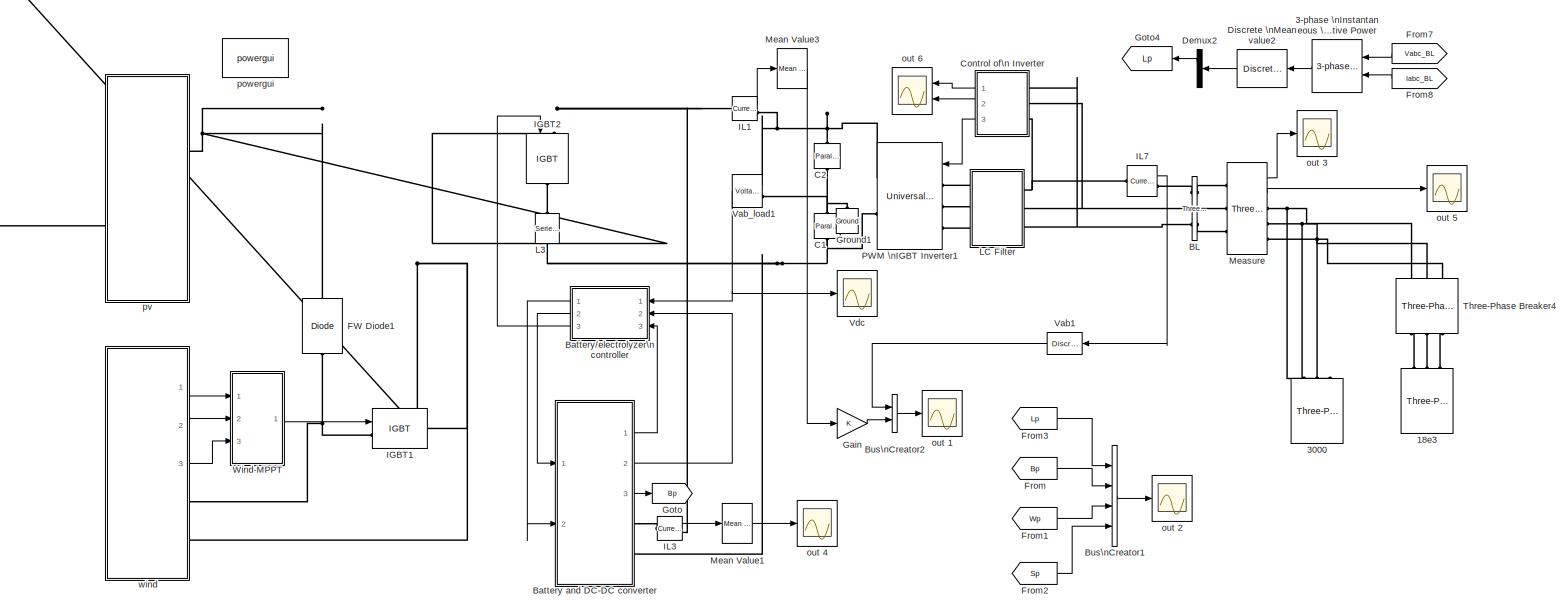
[diagram: root canvas - part 1/1, most of the canvas]
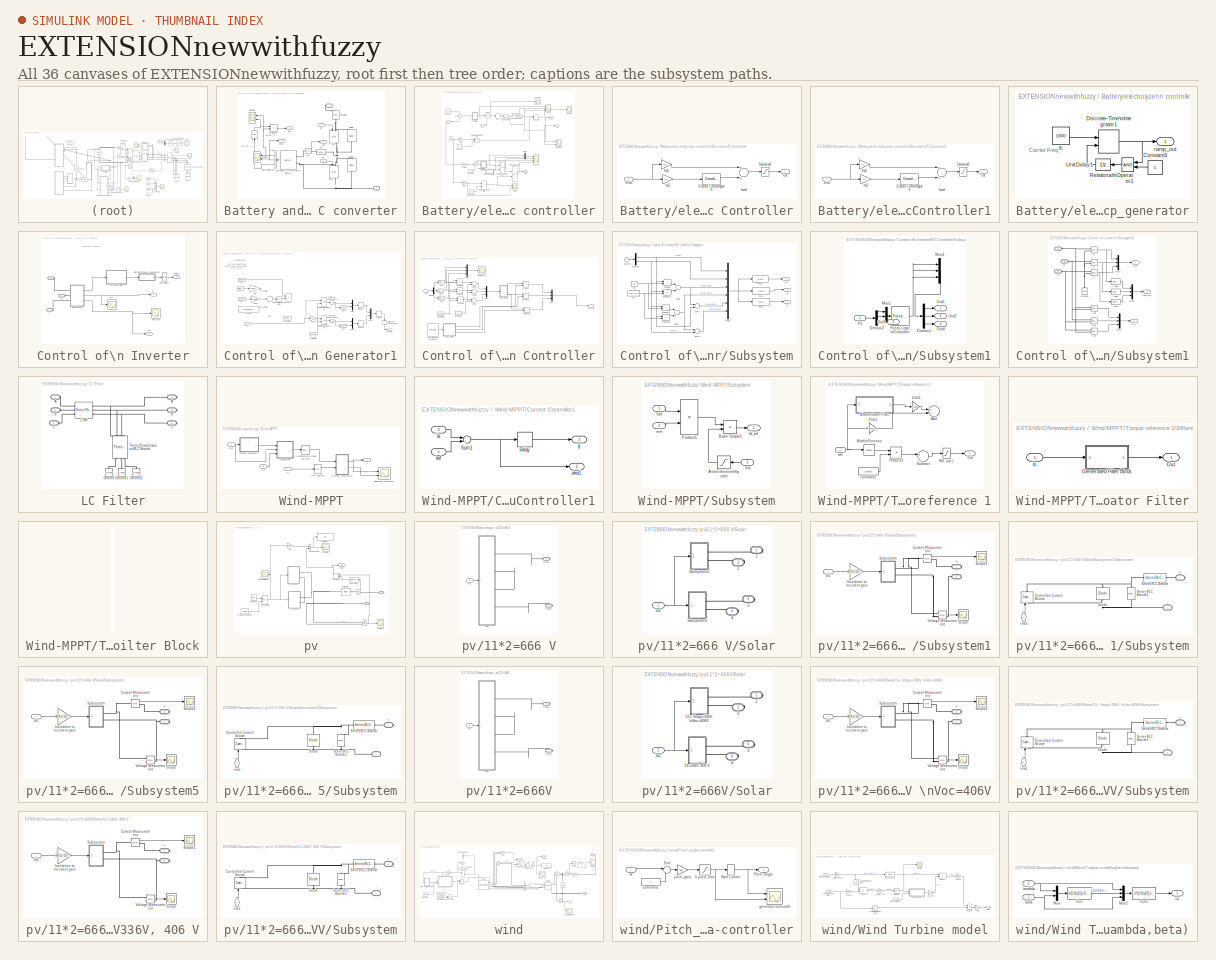
[diagram: thumbnail index - all 36 canvases of the model, root first then tree order]
MODEL EXTENSIONnewwithfuzzy
KIND model
BLOCK [Reference] 18e3  REF=powerlib/Elements/Three-Phase\nParallel RLC Load
  ActivePower = 4.0e3
  AttributesFormatString = \\n
  CapacitivePower = 0
  Configuration = Y (grounded)
  InductivePower = 0
  LConnTagsString = A|B|C
  LeftPortType = p1
  Measurements = None
  NominalFrequency = 50
  NominalVoltage = 385
  PhysicalDomain = powersysdomain
  Ports = [0, 0, 0, 0, 0, 3]
  RightPortType = p1
  SID = 1
  SourceBlock = powerlib/Elements/Three-Phase\nParallel RLC Load
  SourceProductBaseCode = PS
  SourceProductName = Simscape Electrical
  SourceType = Three-Phase Parallel RLC Load
  SubClassName = unknown
BLOCK [Reference] 3-phase \nInstantaneous \nActive & Reactive Power  REF=powerlib_extras/Measurements/3-phase \nInstantaneous \nActive & Reactive Power
  FunctionWithSeparateData = off
  Ports = [2, 1]
  RTWMemSecDataConstants = Inherit from model
  RTWMemSecDataInternal = Inherit from model
  RTWMemSecDataParameters = Inherit from model
  RTWMemSecFuncExecute = Inherit from model
  RTWMemSecFuncInitTerm = Inherit from model
  SID = 2
  ShowPortLabels = FromPortIcon
  SourceBlock = powerlib_extras/Measurements/3-phase \nInstantaneous \nActive & Reactive Power
  SourceProductBaseCode = PS
  SourceProductName = Simscape Electrical
  SourceType = 3-phase instantaneous active and reactive power
  SystemSampleTime = -1
BLOCK [Reference] 3000  REF=powerlib/Elements/Three-Phase\nParallel RLC Load
  ActivePower = 10000
  AttributesFormatString = \\n
  CapacitivePower = 0
  Configuration = Y (grounded)
  InductivePower = 0
  LConnTagsString = A|B|C
  LeftPortType = p1
  Measurements = None
  NominalFrequency = 50
  NominalVoltage = 385
  PhysicalDomain = powersysdomain
  Ports = [0, 0, 0, 0, 0, 3]
  RightPortType = p1
  SID = 3
  SourceBlock = powerlib/Elements/Three-Phase\nParallel RLC Load
  SourceProductBaseCode = PS
  SourceProductName = Simscape Electrical
  SourceType = Three-Phase Parallel RLC Load
  SubClassName = unknown
BLOCK [Reference] BL  REF=powerlib/Measurements/Three-Phase\nV-I Measurement
  CurrentMeasurement = yes
  FunctionWithSeparateData = off
  Ipu = off
  LabelI = Iabc_BL
  LabelV = Vabc_BL
  OutputType = Magnitude
  PSBequivalent = 0
  Pbase = 100e6
  PhasorSimulation = off
  Ports = [0, 0, 0, 0, 0, 3, 3]
  RTWMemSecDataConstants = Inherit from model
  RTWMemSecDataInternal = Inherit from model
  RTWMemSecDataParameters = Inherit from model
  RTWMemSecFuncExecute = Inherit from model
  RTWMemSecFuncInitTerm = Inherit from model
  SID = 4
  SetLabelI = on
  SetLabelV = on
  ShowPortLabels = FromPortIcon
  SourceBlock = powerlib/Measurements/Three-Phase\nV-I Measurement
  SourceProductBaseCode = PS
  SourceProductName = Simscape Electrical
  SourceType = Three-Phase VI Measurement
  SystemSampleTime = -1
  Vbase = 500e3
  VoltageMeasurement = phase-to-ground
  Vpu = off
BLOCK [SubSystem] Battery and DC-DC converter
  Ports = [2, 3, 0, 0, 0, 0, 2]
  RequestExecContextInheritance = off
  SID = 5
BLOCK [PMIOPort] Battery and DC-DC converter/+
  SID = 21
  Side = Right
  Tag = PMCPort
BLOCK [PMIOPort] Battery and DC-DC converter/-
  Port = 2
  SID = 22
  Side = Right
  Tag = PMCPort
BLOCK [Reference] Battery and DC-DC converter/200 volts, 6.5 Ah\n Ni-MH battery   REF=electricdrivelib/Extra Sources/Battery
  BatType = Nickel-Metal-Hydride
  Batt_Tr = 30
  Dis_Char = off
  Dis_rate = 1.3
  FullV = 353.3898
  FunctionWithSeparateData = off
  MaxQ = 7
  NomQ = 6.5
  NomV = 300
  Normal_OP = 6.25
  Ports = [0, 1, 0, 0, 0, 2]
  PresetModel = on
  R = 0.46154
  RTWMemSecDataConstants = Inherit from model
  RTWMemSecDataInternal = Inherit from model
  RTWMemSecDataParameters = Inherit from model
  RTWMemSecFuncExecute = Inherit from model
  RTWMemSecFuncInitTerm = Inherit from model
  SID = 8
  SOC = 60
  ShowDetailedParameters = off
  ShowPortLabels = FromPortIcon
  SourceBlock = electricdrivelib/Extra Sources/Battery
  SourceProductBaseCode = PS
  SourceProductName = Simscape Electrical
  SourceType = Battery
  SystemSampleTime = -1
  Units = Time
  current = [6.5 13 32.5]
  expZone = [325.4237           1.3]
BLOCK [Reference] Battery and DC-DC converter/3  REF=dsparch4/Analog\nFilter Design
  N = 8
  Ports = [1, 1]
  Rp = 2
  Rs = 40
  SID = 9
  SourceBlock = dsparch4/Analog\nFilter Design
  SourceProductBaseCode = DS
  SourceProductName = DSP System Toolbox
  SourceType = Analog Filter Design
  Whi = 80
  Wlo = pi*50
  filttype = Lowpass
  method = Butterworth
BLOCK [Outport] Battery and DC-DC converter/Bp
  IconDisplay = Port number
  Port = 3
  SID = 25
BLOCK [Reference] Battery and DC-DC converter/Breaker  REF=powerlib/Elements/Breaker
  BreakerResistance = 0.01
  External = off
  FunctionWithSeparateData = off
  InitialState = 1
  Measurements = None
  MoreParameters = off
  NoBreakLoop = off
  Ports = [0, 0, 0, 0, 0, 1, 1]
  RTWMemSecDataConstants = Inherit from model
  RTWMemSecDataInternal = Inherit from model
  RTWMemSecDataParameters = Inherit from model
  RTWMemSecFuncExecute = Inherit from model
  RTWMemSecFuncInitTerm = Inherit from model
  SID = 10
  ShowPortLabels = FromPortIcon
  SnubberCapacitance = inf
  SnubberResistance = 1e6
  SourceBlock = powerlib/Elements/Breaker
  SourceProductBaseCode = PS
  SourceProductName = Simscape Electrical
  SourceType = Breaker
  SwitchingTimes = [15 ]
  SystemSampleTime = -1
BLOCK [BusSelector] Battery and DC-DC converter/Bus\nSelector1
  OutputAsBus = off
  OutputSignals = Voltage (V),SOC (%),Current (A)
  Ports = [1, 3]
  SID = 11
BLOCK [Reference] Battery and DC-DC converter/Diode  REF=powerlib/Power\nElectronics/Diode
  Cs = 250e-9
  FunctionWithSeparateData = off
  IC = 0
  Lon = 0
  Measurements = on
  Ports = [0, 1, 0, 0, 0, 1, 1]
  RTWMemSecDataConstants = Inherit from model
  RTWMemSecDataInternal = Inherit from model
  RTWMemSecDataParameters = Inherit from model
  RTWMemSecFuncExecute = Inherit from model
  RTWMemSecFuncInitTerm = Inherit from model
  Ron = 0.001
  Rs = 500
  SID = 12
  ShowPortLabels = FromPortIcon
  SourceBlock = powerlib/Power\nElectronics/Diode
  SourceProductBaseCode = PS
  SourceProductName = Simscape Electrical
  SourceType = Diode
  SystemSampleTime = -1
  UseSnubber = off
  Vf = 0.8
BLOCK [Reference] Battery and DC-DC converter/Diode1  REF=powerlib/Power\nElectronics/Diode
  Cs = 250e-9
  FunctionWithSeparateData = off
  IC = 0
  Lon = 0
  Measurements = on
  Ports = [0, 1, 0, 0, 0, 1, 1]
  RTWMemSecDataConstants = Inherit from model
  RTWMemSecDataInternal = Inherit from model
  RTWMemSecDataParameters = Inherit from model
  RTWMemSecFuncExecute = Inherit from model
  RTWMemSecFuncInitTerm = Inherit from model
  Ron = 0.001
  Rs = 500
  SID = 13
  ShowPortLabels = FromPortIcon
  SourceBlock = powerlib/Power\nElectronics/Diode
  SourceProductBaseCode = PS
  SourceProductName = Simscape Electrical
  SourceType = Diode
  SystemSampleTime = -1
  UseSnubber = off
  Vf = 0.8
BLOCK [Reference] Battery and DC-DC converter/IL6  REF=powerlib/Measurements/Current Measurement
  FunctionWithSeparateData = off
  OutputType = Complex
  PSBequivalent = 0
  PhasorSimulation = off
  Ports = [0, 1, 0, 0, 0, 1, 1]
  RTWMemSecDataConstants = Inherit from model
  RTWMemSecDataInternal = Inherit from model
  RTWMemSecDataParameters = Inherit from model
  RTWMemSecFuncExecute = Inherit from model
  RTWMemSecFuncInitTerm = Inherit from model
  SID = 14
  ShowPortLabels = FromPortIcon
  SourceBlock = powerlib/Measurements/Current Measurement
  SourceProductBaseCode = PS
  SourceProductName = Simscape Electrical
  SourceType = Current Measurement
  SystemSampleTime = -1
BLOCK [Outport] Battery and DC-DC converter/Ibat
  IconDisplay = Port number
  SID = 23
BLOCK [Reference] Battery and DC-DC converter/L3  REF=powerlib/Elements/Series RLC Branch
  AttributesFormatString = \\n
  BranchType = L
  Capacitance = 1.0
  Inductance = 5e-3
  InitialCurrent = 0
  InitialVoltage = 0
  LConnTagsString = __new0
  LeftPortType = p1
  Measurements = None
  PhysicalDomain = powersysdomain
  Ports = [0, 0, 0, 0, 0, 1, 1]
  RConnTagsString = __new0
  Resistance = 1.0
  RightPortType = p1
  SID = 15
  SetiL0 = off
  Setx0 = off
  SourceBlock = powerlib/Elements/Series RLC Branch
  SourceProductBaseCode = PS
  SourceProductName = Simscape Electrical
  SourceType = Series RLC Branch
  SubClassName = unknown
BLOCK [Product] Battery and DC-DC converter/Product6
  InputSameDT = off
  OutDataTypeStr = Inherit: Inherit via internal rule
  Ports = [2, 1]
  SID = 16
  SaturateOnIntegerOverflow = off
BLOCK [Reference] Battery and DC-DC converter/Q1  REF=powerlib/Power\nElectronics/IGBT
  Cs = inf
  FunctionWithSeparateData = off
  IC = 0
  Lon = 0
  Measurements = on
  Ports = [1, 1, 0, 0, 0, 1, 1]
  RTWMemSecDataConstants = Inherit from model
  RTWMemSecDataInternal = Inherit from model
  RTWMemSecDataParameters = Inherit from model
  RTWMemSecFuncExecute = Inherit from model
  RTWMemSecFuncInitTerm = Inherit from model
  Ron = 0.001
  Rs = 1e5
  SID = 17
  ShowPortLabels = FromPortIcon
  SourceBlock = powerlib/Power\nElectronics/IGBT
  SourceProductBaseCode = PS
  SourceProductName = Simscape Electrical
  SourceType = IGBT
  SystemSampleTime = -1
  Tf = 1e-6
  Tt = 2e-6
  Vf = 1
BLOCK [Reference] Battery and DC-DC converter/Q2  REF=powerlib/Power\nElectronics/IGBT
  Cs = inf
  FunctionWithSeparateData = off
  IC = 0
  Lon = 0
  Measurements = on
  Ports = [1, 1, 0, 0, 0, 1, 1]
  RTWMemSecDataConstants = Inherit from model
  RTWMemSecDataInternal = Inherit from model
  RTWMemSecDataParameters = Inherit from model
  RTWMemSecFuncExecute = Inherit from model
  RTWMemSecFuncInitTerm = Inherit from model
  Ron = 0.001
  Rs = 1e5
  SID = 18
  ShowPortLabels = FromPortIcon
  SourceBlock = powerlib/Power\nElectronics/IGBT
  SourceProductBaseCode = PS
  SourceProductName = Simscape Electrical
  SourceType = IGBT
  SystemSampleTime = -1
  Tf = 1e-6
  Tt = 2e-6
  Vf = 1
BLOCK [Inport] Battery and DC-DC converter/S1
  IconDisplay = Port number
  Port = 2
  SID = 7
BLOCK [Inport] Battery and DC-DC converter/S2
  IconDisplay = Port number
  SID = 6
BLOCK [Outport] Battery and DC-DC converter/SOC
  IconDisplay = Port number
  Port = 2
  SID = 24
BLOCK [Scope] Battery and DC-DC converter/Scope4
  Floating = off
  NumInputPorts = 2
  Ports = [2]
  SID = 19
  ScopeSpecificationString = C++SS(StrPVP('Location','[270, 325, 799, 604]'),StrPVP('Open','off'),MxPVP('AxesTitles',54,'struct(''axes1'',''%<SignalLabel>'',''axes2'',''%<SignalLabel>'')'),StrPVP('TimeRange','0.1'),StrPVP('YMin','316.866~80.0001'),StrPVP('YMax','316.88~80.0001'),StrPVP('SaveName','V2X1'),StrPVP('DataFormat','Array'),StrPVP('LimitDataPoints','off'),StrPVP('BlockParamSampleInput','on'),StrPVP('BlockParamSampleT...<+39ch>
BLOCK [Scope] Battery and DC-DC converter/Scope5
  Floating = off
  NumInputPorts = 2
  Ports = [2]
  SID = 20
  ScopeSpecificationString = C++SS(StrPVP('Location','[445, 449, 974, 728]'),StrPVP('Open','off'),MxPVP('AxesTitles',54,'struct(''axes1'',''%<SignalLabel>'',''axes2'',''%<SignalLabel>'')'),StrPVP('TimeRange','0.1'),StrPVP('YMin','-12.8~310'),StrPVP('YMax','-11.8~370'),StrPVP('SaveName','V2X2'),StrPVP('DataFormat','Array'),StrPVP('LimitDataPoints','off'),StrPVP('BlockParamSampleInput','on'),StrPVP('BlockParamSampleTime','10e-6...<+28ch>
BLOCK [SubSystem] Battery//electrolyzer\n controller
  Ports = [3, 3]
  RequestExecContextInheritance = off
  SID = 26
BLOCK [Constant] Battery//electrolyzer\n controller/Constant
  SID = 30
  Value = 640
BLOCK [Constant] Battery//electrolyzer\n controller/Constant1
  SID = 31
  Value = .8
BLOCK [Constant] Battery//electrolyzer\n controller/Constant3
  SID = 32
BLOCK [Constant] Battery//electrolyzer\n controller/Constant4
  SID = 33
  Value = .8
BLOCK [DataTypeConversion] Battery//electrolyzer\n controller/Data Type \nConversion
  OutDataTypeStr = boolean
  RndMeth = Simplest
  SID = 34
BLOCK [SubSystem] Battery//electrolyzer\n controller/Discrete\nPI Controller
  AncestorBlock = powerlib_extras/Discrete \nControl Blocks/Discrete\nPI Controller
  DialogController = POWERSYS.PowerSysDialog
  Ports = [1, 1]
  RequestExecContextInheritance = off
  SID = 35
BLOCK [DiscreteIntegrator] Battery//electrolyzer\n controller/Discrete\nPI Controller/Discrete-Time\nIntegrator
  ICPrevOutput = DiscIntNeverNeededParam
  ICPrevScaledInput = DiscIntNeverNeededParam
  InitialCondition = Init
  LimitOutput = on
  LowerSaturationLimit = LowerLimit
  Ports = [1, 1]
  SID = 35:2
  SampleTime = Ts
  UpperSaturationLimit = UpperLimit
BLOCK [Inport] Battery//electrolyzer\n controller/Discrete\nPI Controller/Error
  IconDisplay = Port number
  SID = 35:1
BLOCK [Gain] Battery//electrolyzer\n controller/Discrete\nPI Controller/Kp4
  Gain = Kp
  SID = 35:3
BLOCK [Gain] Battery//electrolyzer\n controller/Discrete\nPI Controller/Kp5
  Gain = Ki
  SID = 35:4
BLOCK [Outport] Battery//electrolyzer\n controller/Discrete\nPI Controller/Out
  IconDisplay = Port number
  InitialOutput = 0
  SID = 35:7
BLOCK [Saturate] Battery//electrolyzer\n controller/Discrete\nPI Controller/Saturation2
  InputPortMap = u0
  LowerLimit = LowerLimit
  Ports = [1, 1]
  SID = 35:5
  UpperLimit = UpperLimit
BLOCK [Sum] Battery//electrolyzer\n controller/Discrete\nPI Controller/Sum6
  Ports = [2, 1]
  SID = 35:6
BLOCK [SubSystem] Battery//electrolyzer\n controller/Discrete\nPI Controller1
  AncestorBlock = powerlib_extras/Discrete \nControl Blocks/Discrete\nPI Controller
  DialogController = POWERSYS.PowerSysDialog
  Ports = [1, 1]
  RequestExecContextInheritance = off
  SID = 36
BLOCK [DiscreteIntegrator] Battery//electrolyzer\n controller/Discrete\nPI Controller1/Discrete-Time\nIntegrator
  ICPrevOutput = DiscIntNeverNeededParam
  ICPrevScaledInput = DiscIntNeverNeededParam
  InitialCondition = Init
  LimitOutput = on
  LowerSaturationLimit = LowerLimit
  Ports = [1, 1]
  SID = 36:2
  SampleTime = Ts
  UpperSaturationLimit = UpperLimit
BLOCK [Inport] Battery//electrolyzer\n controller/Discrete\nPI Controller1/Error
  IconDisplay = Port number
  SID = 36:1
BLOCK [Gain] Battery//electrolyzer\n controller/Discrete\nPI Controller1/Kp4
  Gain = Kp
  SID = 36:3
BLOCK [Gain] Battery//electrolyzer\n controller/Discrete\nPI Controller1/Kp5
  Gain = Ki
  SID = 36:4
BLOCK [Outport] Battery//electrolyzer\n controller/Discrete\nPI Controller1/Out
  IconDisplay = Port number
  InitialOutput = 0
  SID = 36:7
BLOCK [Saturate] Battery//electrolyzer\n controller/Discrete\nPI Controller1/Saturation2
  InputPortMap = u0
  LowerLimit = LowerLimit
  Ports = [1, 1]
  SID = 36:5
  UpperLimit = UpperLimit
BLOCK [Sum] Battery//electrolyzer\n controller/Discrete\nPI Controller1/Sum6
  Ports = [2, 1]
  SID = 36:6
BLOCK [Gain] Battery//electrolyzer\n controller/Gain
  Gain = 1/640
  SID = 37
BLOCK [Gain] Battery//electrolyzer\n controller/Gain1
  Gain = 1/100
  SID = 38
BLOCK [Gain] Battery//electrolyzer\n controller/Gain2
  Gain = 1/100
  SID = 39
BLOCK [Outport] Battery//electrolyzer\n controller/Gate
  IconDisplay = Port number
  Port = 3
  SID = 66
BLOCK [Inport] Battery//electrolyzer\n controller/Ibat
  IconDisplay = Port number
  Port = 3
  SID = 29
BLOCK [Logic] Battery//electrolyzer\n controller/Logical\nOperator2
  Ports = [2, 1]
  SID = 40
BLOCK [Logic] Battery//electrolyzer\n controller/Logical\nOperator3
  Operator = NOT
  Ports = [1, 1]
  SID = 41
BLOCK [Mux] Battery//electrolyzer\n controller/Mux4
  DisplayOption = bar
  Inputs = 2
  Ports = [2, 1]
  SID = 42
BLOCK [Product] Battery//electrolyzer\n controller/Product2
  InputSameDT = off
  OutDataTypeStr = Inherit: Inherit via internal rule
  Ports = [2, 1]
  SID = 43
  SaturateOnIntegerOverflow = off
BLOCK [SubSystem] Battery//electrolyzer\n controller/Ramp_generator
  Ports = [0, 1]
  RequestExecContextInheritance = off
  SID = 44
BLOCK [Constant] Battery//electrolyzer\n controller/Ramp_generator/Constant3
  SID = 45
BLOCK [DiscreteIntegrator] Battery//electrolyzer\n controller/Ramp_generator/Discrete-Time\nIntegrator1
  ExternalReset = rising
  ICPrevOutput = DiscIntNeverNeededParam
  ICPrevScaledInput = DiscIntNeverNeededParam
  Ports = [2, 1]
  SID = 46
  SampleTime = 20e-6
BLOCK [RelationalOperator] Battery//electrolyzer\n controller/Ramp_generator/Relational\nOperator1
  Ports = [2, 1]
  SID = 47
BLOCK [UnitDelay] Battery//electrolyzer\n controller/Ramp_generator/Unit Delay1
  SID = 48
  SampleTime = 20e-6
BLOCK [Constant] Battery//electrolyzer\n controller/Ramp_generator/fc
  SID = 49
  Value = 10000
BLOCK [Outport] Battery//electrolyzer\n controller/Ramp_generator/ramp_out
  IconDisplay = Port number
  SID = 50
BLOCK [RelationalOperator] Battery//electrolyzer\n controller/Relational\nOperator
  Ports = [2, 1]
  SID = 51
BLOCK [RelationalOperator] Battery//electrolyzer\n controller/Relational\nOperator1
  Operator = <=
  Ports = [2, 1]
  SID = 52
BLOCK [RelationalOperator] Battery//electrolyzer\n controller/Relational\nOperator3
  Operator = >
  Ports = [2, 1]
  SID = 53
BLOCK [Relay] Battery//electrolyzer\n controller/Relay
  OffSwitchValue = -2
  OnSwitchValue = 2
  OutDataTypeStr = Inherit: Inherit via back propagation
  SID = 54
BLOCK [Outport] Battery//electrolyzer\n controller/S1
  IconDisplay = Port number
  SID = 64
BLOCK [Outport] Battery//electrolyzer\n controller/S2
  IconDisplay = Port number
  Port = 2
  SID = 65
BLOCK [Inport] Battery//electrolyzer\n controller/SOC
  IconDisplay = Port number
  Port = 2
  SID = 28
BLOCK [Scope] Battery//electrolyzer\n controller/Scope2
  Floating = off
  NumInputPorts = 1
  Ports = [1]
  SID = 55
  ScopeSpecificationString = C++SS(StrPVP('Location','[738, 279, 1185, 775]'),StrPVP('Open','off'),MxPVP('AxesTitles',54,'struct(''axes1'',''%<SignalLabel>'')'),StrPVP('TimeRange','1'),StrPVP('YMin','-5.5'),StrPVP('YMax','4'),StrPVP('SaveName','psbbridges_str2'),StrPVP('DataFormat','StructureWithTime'),StrPVP('LimitDataPoints','off'),StrPVP('BlockParamSampleTime','0'),StrPVP('Decimation','1'),StrPVP('BlockParamSampleInput','o...<+5ch>
BLOCK [Scope] Battery//electrolyzer\n controller/Scope4
  Floating = off
  NumInputPorts = 2
  Ports = [2]
  SID = 56
  ScopeSpecificationString = C++SS(StrPVP('Location','[286, 94, 733, 590]'),StrPVP('Open','off'),MxPVP('AxesTitles',54,'struct(''axes1'',''%<SignalLabel>'',''axes2'',''%<SignalLabel>'')'),StrPVP('TimeRange','0.7             '),StrPVP('YMin','-1~0'),StrPVP('YMax','1~1'),StrPVP('SaveName','psbbridges_str6'),StrPVP('DataFormat','StructureWithTime'),StrPVP('LimitDataPoints','off'),StrPVP('BlockParamSampleTime','0'),StrPVP('Decima...<+49ch>
BLOCK [Scope] Battery//electrolyzer\n controller/Scope5
  Floating = off
  NumInputPorts = 4
  Ports = [4]
  SID = 57
  ScopeSpecificationString = C++SS(StrPVP('Location','[620, 137, 1067, 632]'),StrPVP('Open','off'),MxPVP('AxesTitles',54,'struct(''axes1'',''%<SignalLabel>'',''axes2'',''%<SignalLabel>'',''axes3'',''%<SignalLabel>'',''axes4'',''%<SignalLabel>'')'),StrPVP('TimeRange','0.1'),StrPVP('YMin','-0.5~-1~-0.003~-1'),StrPVP('YMax','1~1~0.004~1'),StrPVP('SaveName','psbbridges_str7'),StrPVP('DataFormat','StructureWithTime'),StrPVP('Limit...<+117ch>
BLOCK [Scope] Battery//electrolyzer\n controller/Scope7
  Floating = off
  NumInputPorts = 1
  Ports = [1]
  SID = 58
  ScopeSpecificationString = C++SS(StrPVP('Location','[738, 266, 1185, 762]'),StrPVP('Open','off'),MxPVP('AxesTitles',54,'struct(''axes1'',''%<SignalLabel>'')'),StrPVP('TimeRange','1'),StrPVP('YMin','-1'),StrPVP('YMax','1'),StrPVP('SaveName','psbbridges_str3'),StrPVP('DataFormat','StructureWithTime'),StrPVP('LimitDataPoints','off'),StrPVP('BlockParamSampleTime','0'),StrPVP('Decimation','1'),StrPVP('BlockParamSampleInput','off...<+3ch>
BLOCK [Scope] Battery//electrolyzer\n controller/Scope8
  Floating = off
  NumInputPorts = 3
  Ports = [3]
  SID = 59
  ScopeSpecificationString = C++SS(StrPVP('Location','[211, 235, 658, 731]'),StrPVP('Open','off'),MxPVP('AxesTitles',54,'struct(''axes1'',''%<SignalLabel>'',''axes2'',''%<SignalLabel>'',''axes3'',''%<SignalLabel>'')'),StrPVP('TimeRange','3'),StrPVP('YMin','32.5~0.95~0.95'),StrPVP('YMax','60~1.05~1.05'),StrPVP('SaveName','psbbridges_str5'),StrPVP('DataFormat','StructureWithTime'),StrPVP('LimitDataPoints','off'),StrPVP('BlockPa...<+83ch>
BLOCK [Sum] Battery//electrolyzer\n controller/Sum
  IconShape = round
  Inputs = +-
  Ports = [2, 1]
  SID = 60
BLOCK [Sum] Battery//electrolyzer\n controller/Sum1
  IconShape = round
  Inputs = |+-
  OutDataTypeStr = Inherit: Inherit via internal rule
  Ports = [2, 1]
  SID = 61
  SaturateOnIntegerOverflow = off
BLOCK [Sum] Battery//electrolyzer\n controller/Sum2
  IconShape = round
  Inputs = |+-
  Ports = [2, 1]
  SID = 62
BLOCK [Inport] Battery//electrolyzer\n controller/Vdc
  IconDisplay = Port number
  SID = 27
BLOCK [Scope] Battery//electrolyzer\n controller/plot1
  Floating = off
  NumInputPorts = 2
  Ports = [2]
  SID = 63
  ScopeSpecificationString = C++SS(StrPVP('Location','[1, 48, 1367, 727]'),StrPVP('Open','off'),MxPVP('AxesTitles',54,'struct(''axes1'',''%<SignalLabel>'',''axes2'',''%<SignalLabel>'')'),StrPVP('YMin','0.95~0.76'),StrPVP('YMax','1.05~0.84'),StrPVP('SaveToWorkspace','on'),StrPVP('SaveName','ScopeData25'),StrPVP('DataFormat','StructureWithTime'),StrPVP('LimitDataPoints','off'),StrPVP('BlockParamSampleInput','on'),StrPVP('BlockP...<+51ch>
BLOCK [BusCreator] Bus\nCreator1
  DisplayOption = bar
  InheritFromInputs = on
  Inputs = 4
  Ports = [4, 1]
  SID = 67
BLOCK [BusCreator] Bus\nCreator2
  DisplayOption = bar
  InheritFromInputs = on
  Inputs = 2
  Ports = [2, 1]
  SID = 68
BLOCK [Reference] C1  REF=powerlib/Elements/Parallel RLC Branch
  AttributesFormatString = \\n
  BranchType = C
  Capacitance = 2200e-06*2
  Inductance = 1.0
  InitialCurrent = 0
  InitialVoltage = 0
  LConnTagsString = a
  LeftPortType = p1
  Measurements = None
  PhysicalDomain = powersysdomain
  Ports = [0, 0, 0, 0, 0, 1, 1]
  RConnTagsString = __new0
  Resistance = 1.0
  RightPortType = p1
  SID = 69
  SetiL0 = off
  Setx0 = off
  SourceBlock = powerlib/Elements/Parallel RLC Branch
  SourceProductBaseCode = PS
  SourceProductName = Simscape Electrical
  SourceType = Parallel RLC Branch
  SubClassName = unknown
BLOCK [Reference] C2  REF=powerlib/Elements/Parallel RLC Branch
  AttributesFormatString = \\n
  BranchType = C
  Capacitance = 2200e-06*2
  Inductance = 1.0
  InitialCurrent = 0
  InitialVoltage = 0
  LConnTagsString = a
  LeftPortType = p1
  Measurements = None
  PhysicalDomain = powersysdomain
  Ports = [0, 0, 0, 0, 0, 1, 1]
  RConnTagsString = __new0
  Resistance = 1.0
  RightPortType = p1
  SID = 70
  SetiL0 = off
  Setx0 = off
  SourceBlock = powerlib/Elements/Parallel RLC Branch
  SourceProductBaseCode = PS
  SourceProductName = Simscape Electrical
  SourceType = Parallel RLC Branch
  SubClassName = unknown
BLOCK [SubSystem] Control of\n Inverter
  Ports = [0, 3, 0, 0, 0, 3]
  RequestExecContextInheritance = off
  SID = 71
BLOCK [PMIOPort] Control of\n Inverter/A
  Port = 3
  SID = 143
  Side = Left
BLOCK [PMIOPort] Control of\n Inverter/B
  Port = 2
  SID = 142
  Side = Left
BLOCK [PMIOPort] Control of\n Inverter/C
  SID = 141
  Side = Left
BLOCK [SubSystem] Control of\n Inverter/Discrete\nPWM Generator1
  AncestorBlock = powerlib_extras/Discrete \nControl Blocks/Discrete\nPWM Generator
  DialogController = POWERSYS.PowerSysDialog
  Ports = [1, 1]
  RequestExecContextInheritance = off
  SID = 72
BLOCK [Logic] Control of\n Inverter/Discrete\nPWM Generator1/BL4
  Inputs = 1
  Operator = NOT
  Ports = [1, 1]
  SID = 72:2
BLOCK [Logic] Control of\n Inverter/Discrete\nPWM Generator1/BL5
  Inputs = 1
  Operator = NOT
  Ports = [1, 1]
  SID = 72:3
BLOCK [Constant] Control of\n Inverter/Discrete\nPWM Generator1/Constant
  SID = 72:4
  Value = Internal_Phase
BLOCK [Constant] Control of\n Inverter/Discrete\nPWM Generator1/Constant1
  SID = 72:5
  Value = Internal
BLOCK [DataTypeConversion] Control of\n Inverter/Discrete\nPWM Generator1/Data Type \nConversion
  OutDataTypeStr = double
  SID = 72:6
BLOCK [DataTypeConversion] Control of\n Inverter/Discrete\nPWM Generator1/Data Type \nConversion1
  OutDataTypeStr = boolean
  SID = 72:7
BLOCK [DataTypeConversion] Control of\n Inverter/Discrete\nPWM Generator1/Data Type \nConversion2
  OutDataTypeStr = boolean
  SID = 72:8
BLOCK [Gain] Control of\n Inverter/Discrete\nPWM Generator1/Gain
  Gain = 2*pi*Freq
  SID = 72:9
BLOCK [Gain] Control of\n Inverter/Discrete\nPWM Generator1/Gain2
  Gain = pi/180
  SID = 72:10
BLOCK [Gain] Control of\n Inverter/Discrete\nPWM Generator1/Gain3
  Gain = -1
  SID = 72:11
BLOCK [Mux] Control of\n Inverter/Discrete\nPWM Generator1/Mux
  DisplayOption = bar
  Inputs = 2
  Ports = [2, 1]
  SID = 72:12
BLOCK [Mux] Control of\n Inverter/Discrete\nPWM Generator1/Mux1
  DisplayOption = bar
  Inputs = 2
  Ports = [2, 1]
  SID = 72:13
BLOCK [Mux] Control of\n Inverter/Discrete\nPWM Generator1/Mux2
  DisplayOption = bar
  Inputs = 2
  Ports = [2, 1]
  SID = 72:14
BLOCK [Product] Control of\n Inverter/Discrete\nPWM Generator1/Product
  Ports = [2, 1]
  RndMeth = Floor
  SID = 72:15
BLOCK [Outport] Control of\n Inverter/Discrete\nPWM Generator1/Pulses
  IconDisplay = Port number
  SID = 72:27
BLOCK [RelationalOperator] Control of\n Inverter/Discrete\nPWM Generator1/Relational\nOperator
  Ports = [2, 1]
  SID = 72:16
BLOCK [RelationalOperator] Control of\n Inverter/Discrete\nPWM Generator1/Relational\nOperator1
  Ports = [2, 1]
  SID = 72:17
BLOCK [Selector] Control of\n Inverter/Discrete\nPWM Generator1/Select1A
  IndexOptions = Index vector (dialog)
  Indices = Select1_Elements
  InputPortWidth = Select1_PortWidth
  OutputSizes = 1
  Ports = [1, 1]
  SID = 72:18
BLOCK [Selector] Control of\n Inverter/Discrete\nPWM Generator1/Select1B
  IndexOptions = Index vector (dialog)
  Indices = Select1_Elements
  InputPortWidth = Select1_PortWidth
  OutputSizes = 1
  Ports = [1, 1]
  SID = 72:19
BLOCK [Selector] Control of\n Inverter/Discrete\nPWM Generator1/Select3
  IndexOptions = Index vector (dialog)
  Indices = Select3_Elements
  InputPortWidth = Select3_PortWidth
  OutputSizes = 1
  Ports = [1, 1]
  SID = 72:20
BLOCK [Sum] Control of\n Inverter/Discrete\nPWM Generator1/Sum
  Inputs = +++
  Ports = [3, 1]
  SID = 72:21
BLOCK [Reference] Control of\n Inverter/Discrete\nPWM Generator1/Triangle  REF=simulink/Sources/Repeating\nSequence
  FunctionWithSeparateData = off
  Ports = [0, 1]
  RTWMemSecDataConstants = Inherit from model
  RTWMemSecDataInternal = Inherit from model
  RTWMemSecDataParameters = Inherit from model
  RTWMemSecFuncExecute = Inherit from model
  RTWMemSecFuncInitTerm = Inherit from model
  SID = 72:22
  ShowPortLabels = FromPortIcon
  SourceBlock = simulink/Sources/Repeating\nSequence
  SourceProductBaseCode = SL
  SourceProductName = Simulink
  SourceType = Repeating table
  SystemSampleTime = -1
  rep_seq_t = [0 1/Fc/4 3/Fc/4 1/Fc]
  rep_seq_y = [0 -1 1 0]
BLOCK [Trigonometry] Control of\n Inverter/Discrete\nPWM Generator1/Trigonometric\nFunction
  Ports = [1, 1]
  SID = 72:23
BLOCK [Inport] Control of\n Inverter/Discrete\nPWM Generator1/Uref
  IconDisplay = Port number
  SID = 72:1
BLOCK [Constant] Control of\n Inverter/Discrete\nPWM Generator1/m3
  SID = 72:24
  Value = Phase
BLOCK [Constant] Control of\n Inverter/Discrete\nPWM Generator1/m4
  SID = 72:25
  Value = mIndex
BLOCK [DigitalClock] Control of\n Inverter/Discrete\nPWM Generator1/t
  SID = 72:26
  SampleTime = Ts
BLOCK [SubSystem] Control of\n Inverter/MI Controller
  Ports = [1, 1]
  RequestExecContextInheritance = off
  SID = 73
BLOCK [Constant] Control of\n Inverter/MI Controller/Constant1
  SID = 75
  Value = 1/222
BLOCK [Constant] Control of\n Inverter/MI Controller/Constant4
  SID = 76
BLOCK [Demux] Control of\n Inverter/MI Controller/Demux
  DisplayOption = bar
  Outputs = 3
  Ports = [1, 3]
  SID = 77
BLOCK [Reference] Control of\n Inverter/MI Controller/Discrete\nVirtual PLL\n50 Hz  REF=powerlib_extras/Discrete \nControl Blocks/Discrete\nVirtual PLL
  Freq = 50
  FunctionWithSeparateData = off
  Phase = 0
  Ports = [0, 3]
  RTWMemSecDataConstants = Inherit from model
  RTWMemSecDataInternal = Inherit from model
  RTWMemSecDataParameters = Inherit from model
  RTWMemSecFuncExecute = Inherit from model
  RTWMemSecFuncInitTerm = Inherit from model
  SID = 80
  ShowPortLabels = FromPortIcon
  SourceBlock = powerlib_extras/Discrete \nControl Blocks/Discrete\nVirtual PLL
  SourceProductBaseCode = PS
  SourceProductName = Simscape Electrical
  SourceType = Discrete Virtual PLL
  SystemSampleTime = -1
  Ts = 20e-6
BLOCK [Mux] Control of\n Inverter/MI Controller/Mux2
  DisplayOption = bar
  Inputs = 3
  Ports = [3, 1]
  SID = 81
BLOCK [Mux] Control of\n Inverter/MI Controller/Mux3
  DisplayOption = bar
  Inputs = 3
  Ports = [3, 1]
  SID = 82
BLOCK [Mux] Control of\n Inverter/MI Controller/Mux7
  DisplayOption = bar
  Inputs = 3
  Ports = [3, 1]
  SID = 83
BLOCK [Scope] Control of\n Inverter/MI Controller/Powers11
  Floating = off
  NumInputPorts = 1
  Ports = [1]
  SID = 84
  ScopeSpecificationString = C++SS(StrPVP('Location','[421, 204, 1075, 483]'),StrPVP('Open','off'),MxPVP('AxesTitles',54,'struct(''axes1'',''%<SignalLabel>'')'),StrPVP('YMin','452'),StrPVP('YMax','465'),StrPVP('SaveName','ScopeData6'),StrPVP('DataFormat','StructureWithTime'),StrPVP('LimitDataPoints','off'),StrPVP('BlockParamSampleInput','on'),StrPVP('BlockParamSampleTime','100e-6'),StrPVP('Decimation','1'))
BLOCK [Product] Control of\n Inverter/MI Controller/Product
  InputSameDT = off
  OutDataTypeStr = Inherit: Inherit via internal rule
  Ports = [2, 1]
  SID = 85
  SaturateOnIntegerOverflow = off
BLOCK [Product] Control of\n Inverter/MI Controller/Product1
  InputSameDT = off
  OutDataTypeStr = Inherit: Inherit via internal rule
  Ports = [2, 1]
  SID = 86
  SaturateOnIntegerOverflow = off
BLOCK [Product] Control of\n Inverter/MI Controller/Product2
  InputSameDT = off
  OutDataTypeStr = Inherit: Inherit via internal rule
  Ports = [2, 1]
  SID = 87
  SaturateOnIntegerOverflow = off
BLOCK [Product] Control of\n Inverter/MI Controller/Product4
  InputSameDT = off
  OutDataTypeStr = Inherit: Inherit via internal rule
  Ports = [2, 1]
  SID = 88
  SaturateOnIntegerOverflow = off
BLOCK [Product] Control of\n Inverter/MI Controller/Product5
  InputSameDT = off
  OutDataTypeStr = Inherit: Inherit via internal rule
  Ports = [2, 1]
  SID = 89
  SaturateOnIntegerOverflow = off
BLOCK [Product] Control of\n Inverter/MI Controller/Product6
  InputSameDT = off
  OutDataTypeStr = Inherit: Inherit via internal rule
  Ports = [2, 1]
  SID = 90
  SaturateOnIntegerOverflow = off
BLOCK [SubSystem] Control of\n Inverter/MI Controller/Subsystem
  Ports = [1, 3]
  RequestExecContextInheritance = off
  SID = 91
BLOCK [Demux] Control of\n Inverter/MI Controller/Subsystem/Demux
  Outputs = 2
  Ports = [1, 2]
  SID = 93
BLOCK [Fcn] Control of\n Inverter/MI Controller/Subsystem/Fcn2
  Expr = 1*u[1]
  SID = 94
BLOCK [Fcn] Control of\n Inverter/MI Controller/Subsystem/Fcn4
  Expr = 1*u[3]
  SID = 95
BLOCK [Fcn] Control of\n Inverter/MI Controller/Subsystem/Fcn5
  Expr = 1*u[5]
  SID = 96
BLOCK [Constant] Control of\n Inverter/MI Controller/Subsystem/K1
  SID = 97
  Value = 0.5
BLOCK [Constant] Control of\n Inverter/MI Controller/Subsystem/K2
  SID = 98
  Value = sqrt(3)/2
BLOCK [Mux] Control of\n Inverter/MI Controller/Subsystem/Mux2
  Inputs = 6
  Ports = [6, 1]
  SID = 99
BLOCK [Product] Control of\n Inverter/MI Controller/Subsystem/Product
  Ports = [2, 1]
  RndMeth = Floor
  SID = 100
BLOCK [Product] Control of\n Inverter/MI Controller/Subsystem/Product1
  Ports = [2, 1]
  RndMeth = Floor
  SID = 101
BLOCK [Product] Control of\n Inverter/MI Controller/Subsystem/Product2
  Ports = [2, 1]
  RndMeth = Floor
  SID = 102
BLOCK [Product] Control of\n Inverter/MI Controller/Subsystem/Product3
  Ports = [2, 1]
  RndMeth = Floor
  SID = 103
BLOCK [Sum] Control of\n Inverter/MI Controller/Subsystem/Sum
  Inputs = --
  Ports = [2, 1]
  SID = 104
BLOCK [Sum] Control of\n Inverter/MI Controller/Subsystem/Sum1
  Inputs = -+
  Ports = [2, 1]
  SID = 105
BLOCK [Sum] Control of\n Inverter/MI Controller/Subsystem/Sum2
  Inputs = --
  Ports = [2, 1]
  SID = 106
BLOCK [Sum] Control of\n Inverter/MI Controller/Subsystem/Sum3
  Inputs = --
  Ports = [2, 1]
  SID = 107
BLOCK [Outport] Control of\n Inverter/MI Controller/Subsystem/Va
  IconDisplay = Port number
  SID = 108
BLOCK [Outport] Control of\n Inverter/MI Controller/Subsystem/Vb
  IconDisplay = Port number
  Port = 2
  SID = 109
BLOCK [Outport] Control of\n Inverter/MI Controller/Subsystem/Vc
  IconDisplay = Port number
  Port = 3
  SID = 110
BLOCK [Inport] Control of\n Inverter/MI Controller/Subsystem/sin_cos
  IconDisplay = Port number
  PortDimensions = 2
  SID = 92
BLOCK [SubSystem] Control of\n Inverter/MI Controller/Subsystem1
  Ports = [1, 4]
  RequestExecContextInheritance = off
  SID = 382
BLOCK [Demux] Control of\n Inverter/MI Controller/Subsystem1/Demux1
  DisplayOption = bar
  Outputs = 3
  Ports = [1, 3]
  SID = 78
BLOCK [Demux] Control of\n Inverter/MI Controller/Subsystem1/Demux2
  DisplayOption = bar
  Outputs = 3
  Ports = [1, 3]
  SID = 379
BLOCK [Reference] Control of\n Inverter/MI Controller/Subsystem1/Fuzzy Logic \nController  REF=fuzblock/Fuzzy Logic \nController  (lib defined in mdl_858b3b3e7478)
  FunctionWithSeparateData = off
  Ports = [1, 1]
  RTWMemSecDataConstants = Inherit from model
  RTWMemSecDataInternal = Inherit from model
  RTWMemSecDataParameters = Inherit from model
  RTWMemSecFuncExecute = Inherit from model
  RTWMemSecFuncInitTerm = Inherit from model
  SID = 378
  ShowPortLabels = FromPortIcon
  SourceBlock = fuzblock/Fuzzy Logic \nController
  SourceProductBaseCode = FL
  SourceProductName = Fuzzy Logic Toolbox
  SourceType = FIS
  SystemSampleTime = -1
  fis = FUZZY
BLOCK [Inport] Control of\n Inverter/MI Controller/Subsystem1/In1
  IconDisplay = Port number
  SID = 385
BLOCK [Mux] Control of\n Inverter/MI Controller/Subsystem1/Mux1
  DisplayOption = bar
  Inputs = 2
  Ports = [2, 1]
  SID = 380
BLOCK [Mux] Control of\n Inverter/MI Controller/Subsystem1/Mux4
  DisplayOption = bar
  Inputs = 3
  Ports = [3, 1]
  SID = 381
BLOCK [Outport] Control of\n Inverter/MI Controller/Subsystem1/Out1
  IconDisplay = Port number
  SID = 383
BLOCK [Outport] Control of\n Inverter/MI Controller/Subsystem1/Out2
  IconDisplay = Port number
  Port = 2
  SID = 384
BLOCK [Outport] Control of\n Inverter/MI Controller/Subsystem1/Out3
  IconDisplay = Port number
  Port = 3
  SID = 386
BLOCK [Outport] Control of\n Inverter/MI Controller/Subsystem1/Out4
  IconDisplay = Port number
  Port = 4
  SID = 387
BLOCK [Sum] Control of\n Inverter/MI Controller/Sum1
  Inputs = -+
  Ports = [2, 1]
  SID = 111
BLOCK [Sum] Control of\n Inverter/MI Controller/Sum2
  Inputs = -+
  Ports = [2, 1]
  SID = 112
BLOCK [Sum] Control of\n Inverter/MI Controller/Sum3
  Inputs = -+
  Ports = [2, 1]
  SID = 113
BLOCK [Reference] Control of\n Inverter/MI Controller/Vab1  REF=powerlib_extras/Discrete\nMeasurements/Discrete \nRMS value
  Freq = 50
  FunctionWithSeparateData = off
  Mag_Init = 0
  Ports = [1, 1]
  RTWMemSecDataConstants = Inherit from model
  RTWMemSecDataInternal = Inherit from model
  RTWMemSecDataParameters = Inherit from model
  RTWMemSecFuncExecute = Inherit from model
  RTWMemSecFuncInitTerm = Inherit from model
  SID = 114
  ShowPortLabels = FromPortIcon
  SourceBlock = powerlib_extras/Discrete\nMeasurements/Discrete \nRMS value
  SourceProductBaseCode = PS
  SourceProductName = Simscape Electrical
  SourceType = Discrete RMS value
  SystemSampleTime = -1
  Ts = 20e-6
BLOCK [Reference] Control of\n Inverter/MI Controller/Vab5  REF=powerlib_extras/Discrete\nMeasurements/Discrete \nRMS value
  Freq = 50
  FunctionWithSeparateData = off
  Mag_Init = 0
  Ports = [1, 1]
  RTWMemSecDataConstants = Inherit from model
  RTWMemSecDataInternal = Inherit from model
  RTWMemSecDataParameters = Inherit from model
  RTWMemSecFuncExecute = Inherit from model
  RTWMemSecFuncInitTerm = Inherit from model
  SID = 115
  ShowPortLabels = FromPortIcon
  SourceBlock = powerlib_extras/Discrete\nMeasurements/Discrete \nRMS value
  SourceProductBaseCode = PS
  SourceProductName = Simscape Electrical
  SourceType = Discrete RMS value
  SystemSampleTime = -1
  Ts = 20e-6
BLOCK [Reference] Control of\n Inverter/MI Controller/Vab6  REF=powerlib_extras/Discrete\nMeasurements/Discrete \nRMS value
  Freq = 50
  FunctionWithSeparateData = off
  Mag_Init = 0
  Ports = [1, 1]
  RTWMemSecDataConstants = Inherit from model
  RTWMemSecDataInternal = Inherit from model
  RTWMemSecDataParameters = Inherit from model
  RTWMemSecFuncExecute = Inherit from model
  RTWMemSecFuncInitTerm = Inherit from model
  SID = 116
  ShowPortLabels = FromPortIcon
  SourceBlock = powerlib_extras/Discrete\nMeasurements/Discrete \nRMS value
  SourceProductBaseCode = PS
  SourceProductName = Simscape Electrical
  SourceType = Discrete RMS value
  SystemSampleTime = -1
  Ts = 20e-6
BLOCK [Inport] Control of\n Inverter/MI Controller/Vabc
  IconDisplay = Port number
  SID = 74
BLOCK [Outport] Control of\n Inverter/MI Controller/Vabc_inv
  IconDisplay = Port number
  SID = 117
BLOCK [Outport] Control of\n Inverter/Pulses
  IconDisplay = Port number
  Port = 3
  SID = 146
BLOCK [SubSystem] Control of\n Inverter/Subsystem1
  Ports = [0, 3, 0, 0, 0, 3]
  RequestExecContextInheritance = off
  SID = 118
BLOCK [PMIOPort] Control of\n Inverter/Subsystem1/A
  SID = 132
  Side = Left
BLOCK [PMIOPort] Control of\n Inverter/Subsystem1/B
  Port = 2
  SID = 133
  Side = Left
BLOCK [PMIOPort] Control of\n Inverter/Subsystem1/C
  Port = 3
  SID = 134
  Side = Left
BLOCK [Reference] Control of\n Inverter/Subsystem1/Ground4  REF=powerlib/Elements/Ground
  LConnTagsString = a
  LeftPortType = p1
  PhysicalDomain = powersysdomain
  Ports = [0, 0, 0, 0, 0, 1]
  RightPortType = p1
  SID = 119
  SourceBlock = powerlib/Elements/Ground
  SourceProductBaseCode = PS
  SourceProductName = Simscape Electrical
  SourceType = Ground
  SubClassName = unknown
BLOCK [Mux] Control of\n Inverter/Subsystem1/Mux1
  DisplayOption = bar
  Inputs = 3
  Ports = [3, 1]
  SID = 120
BLOCK [Mux] Control of\n Inverter/Subsystem1/Mux2
  DisplayOption = bar
  Inputs = 3
  Ports = [3, 1]
  SID = 121
BLOCK [Mux] Control of\n Inverter/Subsystem1/Mux7
  DisplayOption = bar
  Inputs = 3
  Ports = [3, 1]
  SID = 122
BLOCK [Outport] Control of\n Inverter/Subsystem1/VL-L
  IconDisplay = Port number
  Port = 2
  SID = 136
BLOCK [Reference] Control of\n Inverter/Subsystem1/Vab  REF=powerlib/Measurements/Voltage Measurement
  AttributesFormatString = \\n
  FunctionWithSeparateData = off
  OutputType = Magnitude
  PSBequivalent = 0
  PhasorSimulation = off
  Ports = [0, 1, 0, 0, 0, 2]
  RTWMemSecDataConstants = Inherit from model
  RTWMemSecDataInternal = Inherit from model
  RTWMemSecDataParameters = Inherit from model
  RTWMemSecFuncExecute = Inherit from model
  RTWMemSecFuncInitTerm = Inherit from model
  SID = 123
  ShowPortLabels = FromPortIcon
  SourceBlock = powerlib/Measurements/Voltage Measurement
  SourceProductBaseCode = PS
  SourceProductName = Simscape Electrical
  SourceType = Voltage Measurement
  SystemSampleTime = -1
  Tag = PoWeRsYsTeMmEaSuReMeNt
BLOCK [Reference] Control of\n Inverter/Subsystem1/Vab1  REF=powerlib_extras/Discrete\nMeasurements/Discrete \nRMS value
  Freq = 50
  FunctionWithSeparateData = off
  Mag_Init = 0
  Ports = [1, 1]
  RTWMemSecDataConstants = Inherit from model
  RTWMemSecDataInternal = Inherit from model
  RTWMemSecDataParameters = Inherit from model
  RTWMemSecFuncExecute = Inherit from model
  RTWMemSecFuncInitTerm = Inherit from model
  SID = 124
  ShowPortLabels = FromPortIcon
  SourceBlock = powerlib_extras/Discrete\nMeasurements/Discrete \nRMS value
  SourceProductBaseCode = PS
  SourceProductName = Simscape Electrical
  SourceType = Discrete RMS value
  SystemSampleTime = -1
  Ts = 20e-6
BLOCK [Reference] Control of\n Inverter/Subsystem1/Vab2  REF=powerlib_extras/Discrete\nMeasurements/Discrete \nRMS value
  Freq = 50
  FunctionWithSeparateData = off
  Mag_Init = 0
  Ports = [1, 1]
  RTWMemSecDataConstants = Inherit from model
  RTWMemSecDataInternal = Inherit from model
  RTWMemSecDataParameters = Inherit from model
  RTWMemSecFuncExecute = Inherit from model
  RTWMemSecFuncInitTerm = Inherit from model
  SID = 125
  ShowPortLabels = FromPortIcon
  SourceBlock = powerlib_extras/Discrete\nMeasurements/Discrete \nRMS value
  SourceProductBaseCode = PS
  SourceProductName = Simscape Electrical
  SourceType = Discrete RMS value
  SystemSampleTime = -1
  Ts = 20e-6
BLOCK [Reference] Control of\n Inverter/Subsystem1/Vab5  REF=powerlib_extras/Discrete\nMeasurements/Discrete \nRMS value
  Freq = 50
  FunctionWithSeparateData = off
  Mag_Init = 0
  Ports = [1, 1]
  RTWMemSecDataConstants = Inherit from model
  RTWMemSecDataInternal = Inherit from model
  RTWMemSecDataParameters = Inherit from model
  RTWMemSecFuncExecute = Inherit from model
  RTWMemSecFuncInitTerm = Inherit from model
  SID = 126
  ShowPortLabels = FromPortIcon
  SourceBlock = powerlib_extras/Discrete\nMeasurements/Discrete \nRMS value
  SourceProductBaseCode = PS
  SourceProductName = Simscape Electrical
  SourceType = Discrete RMS value
  SystemSampleTime = -1
  Ts = 20e-6
BLOCK [Reference] Control of\n Inverter/Subsystem1/Vbc  REF=powerlib/Measurements/Voltage Measurement
  AttributesFormatString = \\n
  FunctionWithSeparateData = off
  OutputType = Magnitude
  PSBequivalent = 0
  PhasorSimulation = off
  Ports = [0, 1, 0, 0, 0, 2]
  RTWMemSecDataConstants = Inherit from model
  RTWMemSecDataInternal = Inherit from model
  RTWMemSecDataParameters = Inherit from model
  RTWMemSecFuncExecute = Inherit from model
  RTWMemSecFuncInitTerm = Inherit from model
  SID = 127
  ShowPortLabels = FromPortIcon
  SourceBlock = powerlib/Measurements/Voltage Measurement
  SourceProductBaseCode = PS
  SourceProductName = Simscape Electrical
  SourceType = Voltage Measurement
  SystemSampleTime = -1
  Tag = PoWeRsYsTeMmEaSuReMeNt
BLOCK [Reference] Control of\n Inverter/Subsystem1/Vca  REF=powerlib/Measurements/Voltage Measurement
  AttributesFormatString = \\n
  FunctionWithSeparateData = off
  OutputType = Magnitude
  PSBequivalent = 0
  PhasorSimulation = off
  Ports = [0, 1, 0, 0, 0, 2]
  RTWMemSecDataConstants = Inherit from model
  RTWMemSecDataInternal = Inherit from model
  RTWMemSecDataParameters = Inherit from model
  RTWMemSecFuncExecute = Inherit from model
  RTWMemSecFuncInitTerm = Inherit from model
  SID = 128
  ShowPortLabels = FromPortIcon
  SourceBlock = powerlib/Measurements/Voltage Measurement
  SourceProductBaseCode = PS
  SourceProductName = Simscape Electrical
  SourceType = Voltage Measurement
  SystemSampleTime = -1
  Tag = PoWeRsYsTeMmEaSuReMeNt
BLOCK [Outport] Control of\n Inverter/Subsystem1/Vph
  IconDisplay = Port number
  SID = 135
BLOCK [Outport] Control of\n Inverter/Subsystem1/Vph_rms
  IconDisplay = Port number
  Port = 3
  SID = 137
BLOCK [Reference] Control of\n Inverter/Subsystem1/a  REF=powerlib/Measurements/Voltage Measurement
  AttributesFormatString = \\n
  FunctionWithSeparateData = off
  OutputType = Magnitude
  PSBequivalent = 0
  PhasorSimulation = off
  Ports = [0, 1, 0, 0, 0, 2]
  RTWMemSecDataConstants = Inherit from model
  RTWMemSecDataInternal = Inherit from model
  RTWMemSecDataParameters = Inherit from model
  RTWMemSecFuncExecute = Inherit from model
  RTWMemSecFuncInitTerm = Inherit from model
  SID = 129
  ShowPortLabels = FromPortIcon
  SourceBlock = powerlib/Measurements/Voltage Measurement
  SourceProductBaseCode = PS
  SourceProductName = Simscape Electrical
  SourceType = Voltage Measurement
  SystemSampleTime = -1
  Tag = PoWeRsYsTeMmEaSuReMeNt
BLOCK [Reference] Control of\n Inverter/Subsystem1/b  REF=powerlib/Measurements/Voltage Measurement
  AttributesFormatString = \\n
  FunctionWithSeparateData = off
  OutputType = Magnitude
  PSBequivalent = 0
  PhasorSimulation = off
  Ports = [0, 1, 0, 0, 0, 2]
  RTWMemSecDataConstants = Inherit from model
  RTWMemSecDataInternal = Inherit from model
  RTWMemSecDataParameters = Inherit from model
  RTWMemSecFuncExecute = Inherit from model
  RTWMemSecFuncInitTerm = Inherit from model
  SID = 130
  ShowPortLabels = FromPortIcon
  SourceBlock = powerlib/Measurements/Voltage Measurement
  SourceProductBaseCode = PS
  SourceProductName = Simscape Electrical
  SourceType = Voltage Measurement
  SystemSampleTime = -1
  Tag = PoWeRsYsTeMmEaSuReMeNt
BLOCK [Reference] Control of\n Inverter/Subsystem1/c  REF=powerlib/Measurements/Voltage Measurement
  AttributesFormatString = \\n
  FunctionWithSeparateData = off
  OutputType = Magnitude
  PSBequivalent = 0
  PhasorSimulation = off
  Ports = [0, 1, 0, 0, 0, 2]
  RTWMemSecDataConstants = Inherit from model
  RTWMemSecDataInternal = Inherit from model
  RTWMemSecDataParameters = Inherit from model
  RTWMemSecFuncExecute = Inherit from model
  RTWMemSecFuncInitTerm = Inherit from model
  SID = 131
  ShowPortLabels = FromPortIcon
  SourceBlock = powerlib/Measurements/Voltage Measurement
  SourceProductBaseCode = PS
  SourceProductName = Simscape Electrical
  SourceType = Voltage Measurement
  SystemSampleTime = -1
  Tag = PoWeRsYsTeMmEaSuReMeNt
BLOCK [UnitDelay] Control of\n Inverter/Unit Delay4
  SID = 138
  SampleTime = 20e-6
BLOCK [Outport] Control of\n Inverter/VL
  IconDisplay = Port number
  SID = 144
BLOCK [Scope] Control of\n Inverter/VL-L
  Floating = off
  NumInputPorts = 1
  Ports = [1]
  SID = 139
  ScopeSpecificationString = C++SS(StrPVP('Location','[102, 265, 1117, 762]'),StrPVP('Open','off'),MxPVP('AxesTitles',54,'struct(''axes1'',''%<SignalLabel>'')'),StrPVP('TimeRange','0.4'),StrPVP('YMin','-700'),StrPVP('YMax','700'),StrPVP('SaveToWorkspace','on'),StrPVP('SaveName','Vabc_line'),StrPVP('DataFormat','StructureWithTime'),StrPVP('LimitDataPoints','off'),StrPVP('BlockParamSampleInput','on'),StrPVP('BlockParamSampleTim...<+38ch>
BLOCK [Outport] Control of\n Inverter/Vp
  IconDisplay = Port number
  Port = 2
  SID = 145
BLOCK [Scope] Control of\n Inverter/Vph_rms
  Floating = off
  NumInputPorts = 1
  Ports = [1]
  SID = 140
  ScopeSpecificationString = C++SS(StrPVP('Location','[102, 265, 1117, 762]'),StrPVP('Open','off'),MxPVP('AxesTitles',54,'struct(''axes1'',''%<SignalLabel>'')'),StrPVP('TimeRange','0.4'),StrPVP('YMin','220.9'),StrPVP('YMax','223.2'),StrPVP('SaveToWorkspace','on'),StrPVP('SaveName','Vabc_rms'),StrPVP('DataFormat','StructureWithTime'),StrPVP('LimitDataPoints','off'),StrPVP('BlockParamSampleInput','on'),StrPVP('BlockParamSampleT...<+40ch>
BLOCK [Demux] Demux2
  DisplayOption = bar
  Outputs = 2
  Ports = [1, 2]
  SID = 147
BLOCK [Reference] Discrete \nMean value2  REF=powerlib_extras/Discrete\nMeasurements/Discrete \nMean value
  Freq = 50
  FunctionWithSeparateData = off
  Ports = [1, 1]
  RTWMemSecDataConstants = Inherit from model
  RTWMemSecDataInternal = Inherit from model
  RTWMemSecDataParameters = Inherit from model
  RTWMemSecFuncExecute = Inherit from model
  RTWMemSecFuncInitTerm = Inherit from model
  SID = 148
  ShowPortLabels = FromPortIcon
  SourceBlock = powerlib_extras/Discrete\nMeasurements/Discrete \nMean value
  SourceProductBaseCode = PS
  SourceProductName = Simscape Electrical
  SourceType = Discrete Mean value
  SystemSampleTime = -1
  Ts = 20e-6
  Vinit = 0
BLOCK [Reference] FW Diode1  REF=powerlib/Power\nElectronics/Diode
  AttributesFormatString = \\n
  Cs = 0.1e-6
  FunctionWithSeparateData = off
  IC = 0
  Lon = 0
  Measurements = off
  Ports = [0, 0, 0, 0, 0, 1, 1]
  RTWMemSecDataConstants = Inherit from model
  RTWMemSecDataInternal = Inherit from model
  RTWMemSecDataParameters = Inherit from model
  RTWMemSecFuncExecute = Inherit from model
  RTWMemSecFuncInitTerm = Inherit from model
  Ron = 0.01
  Rs = 100
  SID = 149
  ShowPortLabels = FromPortIcon
  SourceBlock = powerlib/Power\nElectronics/Diode
  SourceProductBaseCode = PS
  SourceProductName = Simscape Electrical
  SourceType = Diode
  SystemSampleTime = -1
  UseSnubber = off
  Vf = 0.8
BLOCK [From] From
  CloseFcn = tagdialog Close
  GotoTag = Bp
  SID = 150
  TagVisibility = global
BLOCK [From] From1
  CloseFcn = tagdialog Close
  GotoTag = Wp
  SID = 151
  TagVisibility = global
BLOCK [From] From2
  CloseFcn = tagdialog Close
  GotoTag = Sp
  SID = 152
  TagVisibility = global
BLOCK [From] From3
  CloseFcn = tagdialog Close
  GotoTag = Lp
  SID = 153
BLOCK [From] From7
  CloseFcn = tagdialog Close
  GotoTag = Vabc_BL
  SID = 154
  TagVisibility = global
BLOCK [From] From8
  CloseFcn = tagdialog Close
  GotoTag = Iabc_BL
  SID = 155
  TagVisibility = global
BLOCK [Gain] Gain
  OutDataTypeStr = Inherit: Inherit via internal rule
  ParamDataTypeStr = Inherit: Inherit via internal rule
  SID = 156
  SaturateOnIntegerOverflow = off
BLOCK [Goto] Goto
  GotoTag = Bp
  SID = 157
  TagVisibility = global
BLOCK [Goto] Goto4
  GotoTag = Lp
  SID = 158
BLOCK [Reference] Ground1  REF=powerlib/Elements/Ground
  LConnTagsString = a
  LeftPortType = p1
  PhysicalDomain = powersysdomain
  Ports = [0, 0, 0, 0, 0, 1]
  RightPortType = p1
  SID = 159
  SourceBlock = powerlib/Elements/Ground
  SourceProductBaseCode = PS
  SourceProductName = Simscape Electrical
  SourceType = Ground
  SubClassName = unknown
BLOCK [Reference] IGBT1  REF=powerlib/Power\nElectronics/IGBT
  Cs = inf
  FunctionWithSeparateData = off
  IC = 0
  Lon = 0
  Measurements = off
  Ports = [1, 0, 0, 0, 0, 1, 1]
  RTWMemSecDataConstants = Inherit from model
  RTWMemSecDataInternal = Inherit from model
  RTWMemSecDataParameters = Inherit from model
  RTWMemSecFuncExecute = Inherit from model
  RTWMemSecFuncInitTerm = Inherit from model
  Ron = 0.001
  Rs = 1e5
  SID = 160
  ShowPortLabels = FromPortIcon
  SourceBlock = powerlib/Power\nElectronics/IGBT
  SourceProductBaseCode = PS
  SourceProductName = Simscape Electrical
  SourceType = IGBT
  SystemSampleTime = -1
  Tf = 1e-6
  Tt = 2e-6
  Vf = 1
BLOCK [Reference] IGBT2  REF=powerlib/Power\nElectronics/IGBT
  Cs = inf
  FunctionWithSeparateData = off
  IC = 0
  Lon = 0
  Measurements = off
  Ports = [1, 0, 0, 0, 0, 1, 1]
  RTWMemSecDataConstants = Inherit from model
  RTWMemSecDataInternal = Inherit from model
  RTWMemSecDataParameters = Inherit from model
  RTWMemSecFuncExecute = Inherit from model
  RTWMemSecFuncInitTerm = Inherit from model
  Ron = 0.001
  Rs = 1e5
  SID = 161
  ShowPortLabels = FromPortIcon
  SourceBlock = powerlib/Power\nElectronics/IGBT
  SourceProductBaseCode = PS
  SourceProductName = Simscape Electrical
  SourceType = IGBT
  SystemSampleTime = -1
  Tf = 1e-6
  Tt = 2e-6
  Vf = 1
BLOCK [Reference] IL1  REF=powerlib/Measurements/Current Measurement
  FunctionWithSeparateData = off
  OutputType = Complex
  PSBequivalent = 0
  PhasorSimulation = off
  Ports = [0, 1, 0, 0, 0, 1, 1]
  RTWMemSecDataConstants = Inherit from model
  RTWMemSecDataInternal = Inherit from model
  RTWMemSecDataParameters = Inherit from model
  RTWMemSecFuncExecute = Inherit from model
  RTWMemSecFuncInitTerm = Inherit from model
  SID = 162
  ShowPortLabels = FromPortIcon
  SourceBlock = powerlib/Measurements/Current Measurement
  SourceProductBaseCode = PS
  SourceProductName = Simscape Electrical
  SourceType = Current Measurement
  SystemSampleTime = -1
BLOCK [Reference] IL3  REF=powerlib/Measurements/Current Measurement
  FunctionWithSeparateData = off
  OutputType = Complex
  PSBequivalent = 0
  PhasorSimulation = off
  Ports = [0, 1, 0, 0, 0, 1, 1]
  RTWMemSecDataConstants = Inherit from model
  RTWMemSecDataInternal = Inherit from model
  RTWMemSecDataParameters = Inherit from model
  RTWMemSecFuncExecute = Inherit from model
  RTWMemSecFuncInitTerm = Inherit from model
  SID = 163
  ShowPortLabels = FromPortIcon
  SourceBlock = powerlib/Measurements/Current Measurement
  SourceProductBaseCode = PS
  SourceProductName = Simscape Electrical
  SourceType = Current Measurement
  SystemSampleTime = -1
BLOCK [Reference] IL7  REF=powerlib/Measurements/Current Measurement
  FunctionWithSeparateData = off
  OutputType = Complex
  PSBequivalent = 0
  PhasorSimulation = off
  Ports = [0, 1, 0, 0, 0, 1, 1]
  RTWMemSecDataConstants = Inherit from model
  RTWMemSecDataInternal = Inherit from model
  RTWMemSecDataParameters = Inherit from model
  RTWMemSecFuncExecute = Inherit from model
  RTWMemSecFuncInitTerm = Inherit from model
  SID = 164
  ShowPortLabels = FromPortIcon
  SourceBlock = powerlib/Measurements/Current Measurement
  SourceProductBaseCode = PS
  SourceProductName = Simscape Electrical
  SourceType = Current Measurement
  SystemSampleTime = -1
BLOCK [Reference] L3  REF=powerlib/Elements/Series RLC Branch
  AttributesFormatString = \\n
  BranchType = R
  Capacitance = 1.0
  Inductance = 2e-3
  InitialCurrent = 0
  InitialVoltage = 0
  LConnTagsString = __new0
  LeftPortType = p1
  Measurements = None
  PhysicalDomain = powersysdomain
  Ports = [0, 0, 0, 0, 0, 1, 1]
  RConnTagsString = __new0
  Resistance = 19
  RightPortType = p1
  SID = 165
  SetiL0 = off
  Setx0 = off
  SourceBlock = powerlib/Elements/Series RLC Branch
  SourceProductBaseCode = PS
  SourceProductName = Simscape Electrical
  SourceType = Series RLC Branch
  SubClassName = unknown
BLOCK [SubSystem] LC Filter
  Ports = [0, 0, 0, 0, 0, 3, 3]
  RequestExecContextInheritance = off
  SID = 166
BLOCK [Reference] LC Filter/2 mH   REF=powerlib/Elements/Three-Phase\nSeries RLC Branch
  AttributesFormatString = \\n
  BranchType = L
  Capacitance = 1.0
  Inductance = 36e-4
  LConnTagsString = A|B|C
  LeftPortType = p1
  Measurements = None
  PhysicalDomain = powersysdomain
  Ports = [0, 0, 0, 0, 0, 3, 3]
  RConnTagsString = A|B|C
  Resistance = 1.0
  RightPortType = p1
  SID = 167
  SourceBlock = powerlib/Elements/Three-Phase\nSeries RLC Branch
  SourceProductBaseCode = PS
  SourceProductName = Simscape Electrical
  SourceType = Three-Phase Series RLC Branch
  SubClassName = unknown
BLOCK [PMIOPort] LC Filter/A
  SID = 172
  Side = Left
BLOCK [PMIOPort] LC Filter/A 
  Port = 4
  SID = 175
  Side = Right
BLOCK [PMIOPort] LC Filter/B
  Port = 2
  SID = 173
  Side = Left
BLOCK [PMIOPort] LC Filter/B 
  Port = 5
  SID = 176
  Side = Right
BLOCK [PMIOPort] LC Filter/C
  Port = 3
  SID = 174
  Side = Left
BLOCK [PMIOPort] LC Filter/C 
  Port = 6
  SID = 177
  Side = Right
BLOCK [Reference] LC Filter/Ground  REF=powerlib/Elements/Ground
  LConnTagsString = a
  LeftPortType = p1
  PhysicalDomain = powersysdomain
  Ports = [0, 0, 0, 0, 0, 1]
  RightPortType = p1
  SID = 168
  SourceBlock = powerlib/Elements/Ground
  SourceProductBaseCode = PS
  SourceProductName = Simscape Electrical
  SourceType = Ground
  SubClassName = unknown
BLOCK [Reference] LC Filter/Ground1  REF=powerlib/Elements/Ground
  LConnTagsString = a
  LeftPortType = p1
  PhysicalDomain = powersysdomain
  Ports = [0, 0, 0, 0, 0, 1]
  RightPortType = p1
  SID = 169
  SourceBlock = powerlib/Elements/Ground
  SourceProductBaseCode = PS
  SourceProductName = Simscape Electrical
  SourceType = Ground
  SubClassName = unknown
BLOCK [Reference] LC Filter/Ground2  REF=powerlib/Elements/Ground
  LConnTagsString = a
  LeftPortType = p1
  PhysicalDomain = powersysdomain
  Ports = [0, 0, 0, 0, 0, 1]
  RightPortType = p1
  SID = 170
  SourceBlock = powerlib/Elements/Ground
  SourceProductBaseCode = PS
  SourceProductName = Simscape Electrical
  SourceType = Ground
  SubClassName = unknown
BLOCK [Reference] LC Filter/Three-Phase\nSeries RLC Branch  REF=powerlib/Elements/Three-Phase\nSeries RLC Branch
  AttributesFormatString = \\n
  BranchType = C
  Capacitance = 6.85e-6
  Inductance = 1e-3
  LConnTagsString = A|B|C
  LeftPortType = p1
  Measurements = None
  PhysicalDomain = powersysdomain
  Ports = [0, 0, 0, 0, 0, 3, 3]
  RConnTagsString = A|B|C
  Resistance = .1
  RightPortType = p1
  SID = 171
  SourceBlock = powerlib/Elements/Three-Phase\nSeries RLC Branch
  SourceProductBaseCode = PS
  SourceProductName = Simscape Electrical
  SourceType = Three-Phase Series RLC Branch
  SubClassName = unknown
BLOCK [Reference] Mean Value1  REF=powerlib_extras/Measurements/Mean Value
  FunctionWithSeparateData = off
  Period = 1/110
  Ports = [1, 1]
  RTWMemSecDataConstants = Inherit from model
  RTWMemSecDataInternal = Inherit from model
  RTWMemSecDataParameters = Inherit from model
  RTWMemSecFuncExecute = Inherit from model
  RTWMemSecFuncInitTerm = Inherit from model
  SID = 178
  ShowPortLabels = FromPortIcon
  SourceBlock = powerlib_extras/Measurements/Mean Value
  SourceProductBaseCode = PS
  SourceProductName = Simscape Electrical
  SourceType = Mean value
  SystemSampleTime = -1
BLOCK [Reference] Mean Value3  REF=powerlib_extras/Measurements/Mean Value
  FunctionWithSeparateData = off
  Period = 1/110
  Ports = [1, 1]
  RTWMemSecDataConstants = Inherit from model
  RTWMemSecDataInternal = Inherit from model
  RTWMemSecDataParameters = Inherit from model
  RTWMemSecFuncExecute = Inherit from model
  RTWMemSecFuncInitTerm = Inherit from model
  SID = 179
  ShowPortLabels = FromPortIcon
  SourceBlock = powerlib_extras/Measurements/Mean Value
  SourceProductBaseCode = PS
  SourceProductName = Simscape Electrical
  SourceType = Mean value
  SystemSampleTime = -1
BLOCK [Reference] Measure  REF=powerlib/Measurements/Three-Phase\nV-I Measurement
  CurrentMeasurement = yes
  FunctionWithSeparateData = off
  Ipu = off
  LabelI = I1
  LabelV = V1
  OutputType = Magnitude
  PSBequivalent = 0
  Pbase = 5.5e3
  PhasorSimulation = off
  Ports = [0, 2, 0, 0, 0, 3, 3]
  RTWMemSecDataConstants = Inherit from model
  RTWMemSecDataInternal = Inherit from model
  RTWMemSecDataParameters = Inherit from model
  RTWMemSecFuncExecute = Inherit from model
  RTWMemSecFuncInitTerm = Inherit from model
  SID = 180
  SetLabelI = off
  SetLabelV = off
  ShowPortLabels = FromPortIcon
  SourceBlock = powerlib/Measurements/Three-Phase\nV-I Measurement
  SourceProductBaseCode = PS
  SourceProductName = Simscape Electrical
  SourceType = Three-Phase VI Measurement
  SystemSampleTime = -1
  Vbase = 385
  VoltageMeasurement = phase-to-ground
  Vpu = off
BLOCK [Reference] PWM \nIGBT Inverter1  REF=powerlib/Power\nElectronics/Universal Bridge
  Arms = 3
  AttributesFormatString = \\n
  Device = IGBT / Diodes
  ForwardVoltage = .8
  ForwardVoltages = [  0.0  0.0  ]
  FunctionWithSeparateData = off
  GTOparameters = [ 1e-6 ,1e-6 ]
  IGBTparameters = [ 1e-6 , 2e-6 ]
  Lon = 0
  Measurements = Device currents
  Measurements_2 = None
  Ports = [1, 0, 0, 0, 0, 3, 2]
  RTWMemSecDataConstants = Inherit from model
  RTWMemSecDataInternal = Inherit from model
  RTWMemSecDataParameters = Inherit from model
  RTWMemSecFuncExecute = Inherit from model
  RTWMemSecFuncInitTerm = Inherit from model
  Ron = 1e-3
  SID = 181
  ShowPortLabels = FromPortIcon
  SnubberCapacitance = inf
  SnubberResistance = 5000
  SourceBlock = powerlib/Power\nElectronics/Universal Bridge
  SourceProductBaseCode = PS
  SourceProductName = Simscape Electrical
  SourceType = Universal Bridge
  SystemSampleTime = -1
  converterType = Rectifier
BLOCK [Reference] Three-Phase Breaker4  REF=powerlib/Elements/Three-Phase Breaker
  BreakerResistance = 0.001
  External = off
  FunctionWithSeparateData = off
  InitialState = open
  Measurements = None
  Ports = [0, 0, 0, 0, 0, 3, 3]
  RTWMemSecDataConstants = Inherit from model
  RTWMemSecDataInternal = Inherit from model
  RTWMemSecDataParameters = Inherit from model
  RTWMemSecFuncExecute = Inherit from model
  RTWMemSecFuncInitTerm = Inherit from model
  SID = 182
  ShowPortLabels = FromPortIcon
  SnubberCapacitance = inf
  SnubberResistance = 1e6
  SourceBlock = powerlib/Elements/Three-Phase Breaker
  SourceProductBaseCode = PS
  SourceProductName = Simscape Electrical
  SourceType = Three-Phase Breaker
  SwitchA = on
  SwitchB = on
  SwitchC = on
  SwitchTimes = [4 5]
  SystemSampleTime = -1
BLOCK [Reference] Vab1  REF=powerlib_extras/Discrete\nMeasurements/Discrete \nRMS value
  Freq = 50
  FunctionWithSeparateData = off
  Mag_Init = 0
  Ports = [1, 1]
  RTWMemSecDataConstants = Inherit from model
  RTWMemSecDataInternal = Inherit from model
  RTWMemSecDataParameters = Inherit from model
  RTWMemSecFuncExecute = Inherit from model
  RTWMemSecFuncInitTerm = Inherit from model
  SID = 183
  ShowPortLabels = FromPortIcon
  SourceBlock = powerlib_extras/Discrete\nMeasurements/Discrete \nRMS value
  SourceProductBaseCode = PS
  SourceProductName = Simscape Electrical
  SourceType = Discrete RMS value
  SystemSampleTime = -1
  Ts = 20e-6
BLOCK [Reference] Vab_load1  REF=powerlib/Measurements/Voltage Measurement
  AttributesFormatString = \\n
  FunctionWithSeparateData = off
  OutputType = Magnitude
  PSBequivalent = 0
  PhasorSimulation = off
  Ports = [0, 1, 0, 0, 0, 2]
  RTWMemSecDataConstants = Inherit from model
  RTWMemSecDataInternal = Inherit from model
  RTWMemSecDataParameters = Inherit from model
  RTWMemSecFuncExecute = Inherit from model
  RTWMemSecFuncInitTerm = Inherit from model
  SID = 184
  ShowPortLabels = FromPortIcon
  SourceBlock = powerlib/Measurements/Voltage Measurement
  SourceProductBaseCode = PS
  SourceProductName = Simscape Electrical
  SourceType = Voltage Measurement
  SystemSampleTime = -1
  Tag = PoWeRsYsTeMmEaSuReMeNt
BLOCK [Scope] Vdc
  Floating = off
  NumInputPorts = 1
  Ports = [1]
  SID = 185
  ScopeSpecificationString = C++SS(StrPVP('Location','[489, 138, 1015, 417]'),StrPVP('Open','off'),MxPVP('AxesTitles',54,'struct(''axes1'',''%<SignalLabel>'')'),StrPVP('YMin','639.5'),StrPVP('YMax','640.3'),StrPVP('SaveName','ScopeData8'),StrPVP('DataFormat','StructureWithTime'),StrPVP('LimitDataPoints','off'),StrPVP('BlockParamSampleInput','on'),StrPVP('BlockParamSampleTime','100e-6'),StrPVP('Decimation','1'))
BLOCK [SubSystem] Wind-MPPT
  Ports = [3, 1]
  RequestExecContextInheritance = off
  SID = 186
BLOCK [SubSystem] Wind-MPPT/Current Controller1
  Ports = [2, 2]
  RequestExecContextInheritance = off
  SID = 190
BLOCK [Inport] Wind-MPPT/Current Controller1/Ia
  IconDisplay = Port number
  Port = 2
  SID = 192
BLOCK [Inport] Wind-MPPT/Current Controller1/Iref
  IconDisplay = Port number
  SID = 191
BLOCK [Relay] Wind-MPPT/Current Controller1/Relay
  OffSwitchValue = -h/2
  OnSwitchValue = h/2
  SID = 193
BLOCK [Sum] Wind-MPPT/Current Controller1/Sum1
  Inputs = -+
  Ports = [2, 1]
  SID = 194
BLOCK [Outport] Wind-MPPT/Current Controller1/error1
  IconDisplay = Port number
  InitialOutput = 0
  Port = 2
  SID = 196
BLOCK [Outport] Wind-MPPT/Current Controller1/g
  IconDisplay = Port number
  InitialOutput = 0
  SID = 195
BLOCK [Reference] Wind-MPPT/Discrete\n1st-Order\nFilter2  REF=powerlib_extras/Discrete \nControl Blocks/Discrete\n1st-Order\nFilter
  FilterType = Lowpass
  FunctionWithSeparateData = off
  Initialize = off
  PlotResponse = off
  Ports = [1, 1]
  RTWMemSecDataConstants = Inherit from model
  RTWMemSecDataInternal = Inherit from model
  RTWMemSecDataParameters = Inherit from model
  RTWMemSecFuncExecute = Inherit from model
  RTWMemSecFuncInitTerm = Inherit from model
  SID = 197
  ShowPortLabels = FromPortIcon
  SourceBlock = powerlib_extras/Discrete \nControl Blocks/Discrete\n1st-Order\nFilter
  SourceProductBaseCode = PS
  SourceProductName = Simscape Electrical
  SourceType = Discrete 1st-Order Filter
  SystemSampleTime = -1
  Tc = 100e-3
  Ts = 20e-6
  Vac_Init = [0.8 -25 60]
  Vdc_Init = -0.4
  param1 = [1 500 0.1]
BLOCK [Inport] Wind-MPPT/Ia
  IconDisplay = Port number
  Port = 2
  SID = 188
BLOCK [SubSystem] Wind-MPPT/Subsystem
  Ports = [3, 1]
  RequestExecContextInheritance = off
  SID = 198
BLOCK [Saturate] Wind-MPPT/Subsystem/Avoid division\nby zero
  InputPortMap = u0
  LowerLimit = 1e-6
  Ports = [1, 1]
  SID = 202
  UpperLimit = 1e6
BLOCK [Product] Wind-MPPT/Subsystem/Base Torque1
  InputSameDT = off
  Inputs = */
  OutDataTypeStr = Inherit: Inherit via internal rule
  Ports = [2, 1]
  SID = 203
  SaturateOnIntegerOverflow = off
BLOCK [Outport] Wind-MPPT/Subsystem/Id_ref
  IconDisplay = Port number
  SID = 205
BLOCK [Product] Wind-MPPT/Subsystem/Product1
  InputSameDT = off
  OutDataTypeStr = Inherit: Inherit via internal rule
  Ports = [2, 1]
  SID = 204
  SaturateOnIntegerOverflow = off
BLOCK [Inport] Wind-MPPT/Subsystem/Tref
  IconDisplay = Port number
  SID = 199
BLOCK [Inport] Wind-MPPT/Subsystem/Vd
  IconDisplay = Port number
  Port = 3
  SID = 201
BLOCK [Inport] Wind-MPPT/Subsystem/wm
  IconDisplay = Port number
  Port = 2
  SID = 200
BLOCK [SubSystem] Wind-MPPT/Torque reference 1
  Ports = [1, 1]
  RequestExecContextInheritance = off
  SID = 206
BLOCK [Gain] Wind-MPPT/Torque reference 1/1\\ib1
  Gain = 0.001189
  SID = 208
BLOCK [Gain] Wind-MPPT/Torque reference 1/1\\ib2
  Gain = 0.0197
  SID = 209
BLOCK [Sum] Wind-MPPT/Torque reference 1/Add
  InputSameDT = off
  OutDataTypeStr = Inherit: Inherit via internal rule
  Ports = [2, 1]
  SID = 210
  SaturateOnIntegerOverflow = off
BLOCK [Constant] Wind-MPPT/Torque reference 1/Constant2
  SID = 211
  Value = 1.791e-3
BLOCK [SubSystem] Wind-MPPT/Torque reference 1/Differentiator Filter
  CopyFcn = fdesignblkfcn(gcbh, {'CopyFcn'});
  DialogController = fdesignblkfcn
  DialogControllerArgs = DataTag0
  InitFcn = fdesignblkfcn(gcbh, {'InitFcn'});
  Ports = [1, 1]
  RequestExecContextInheritance = off
  SID = 212
  UserDataPersistent = on
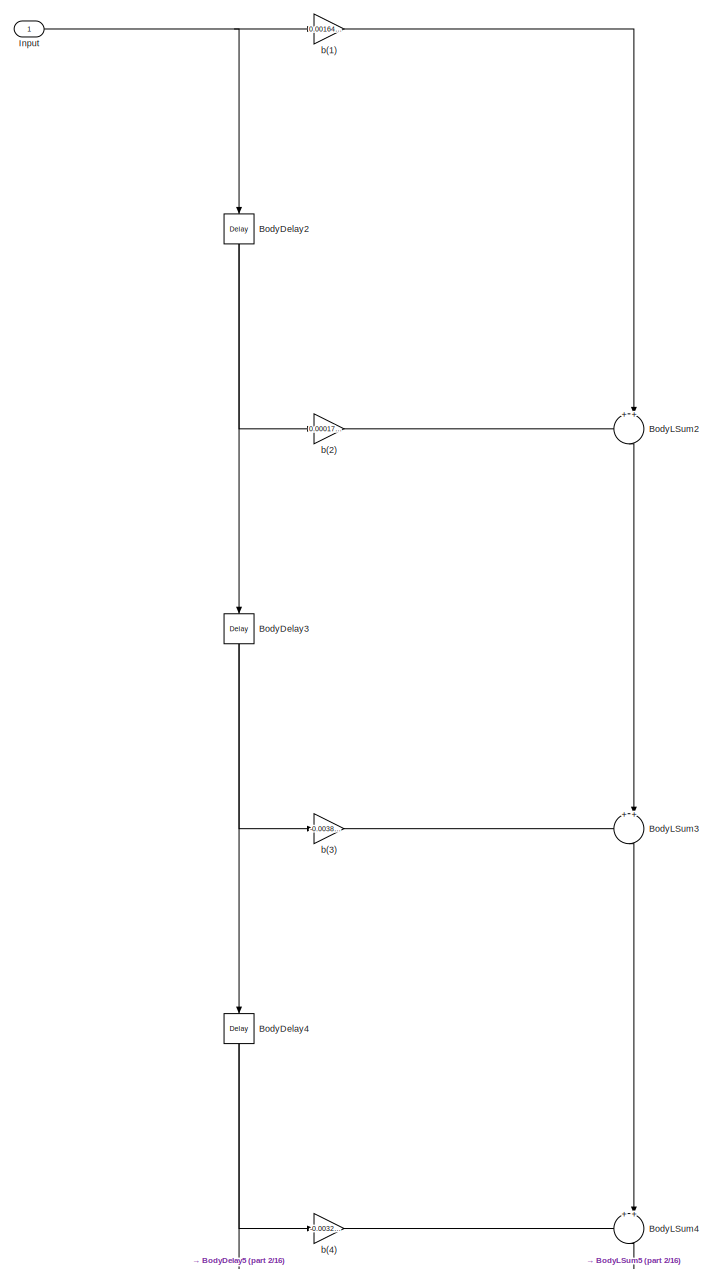
[diagram: Wind-MPPT/Torque reference 1/Differentiator Filter/Generated Filter Block - part 1/16, full width, top band]
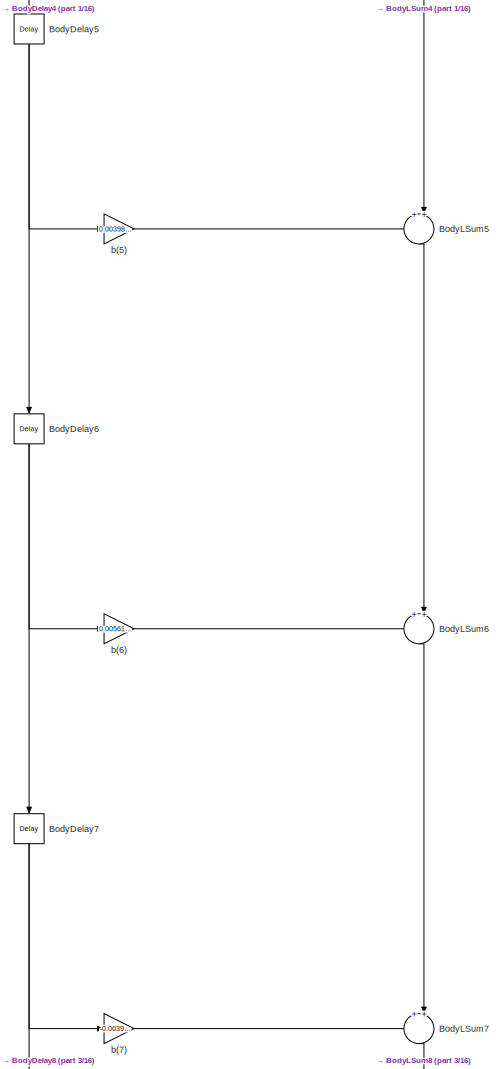
[diagram: Wind-MPPT/Torque reference 1/Differentiator Filter/Generated Filter Block - part 2/16, top center region]
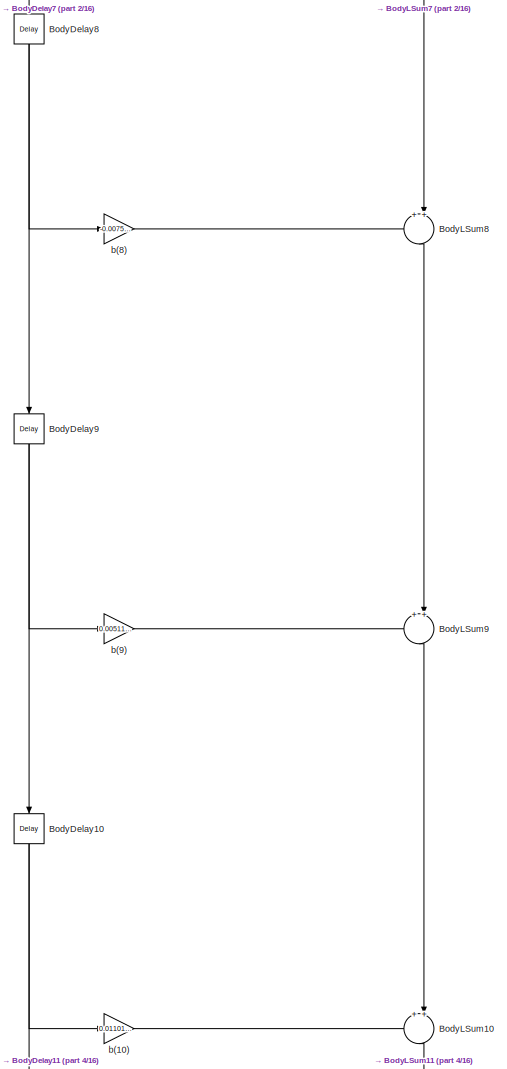
[diagram: Wind-MPPT/Torque reference 1/Differentiator Filter/Generated Filter Block - part 3/16, top center region]
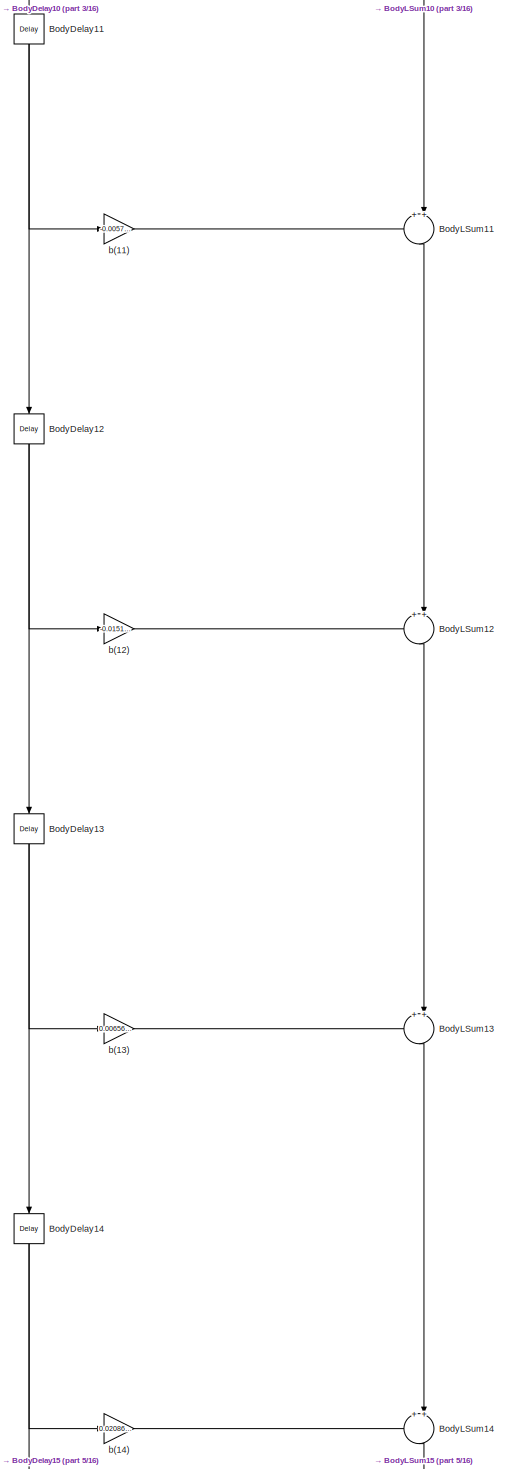
[diagram: Wind-MPPT/Torque reference 1/Differentiator Filter/Generated Filter Block - part 4/16, top center region]
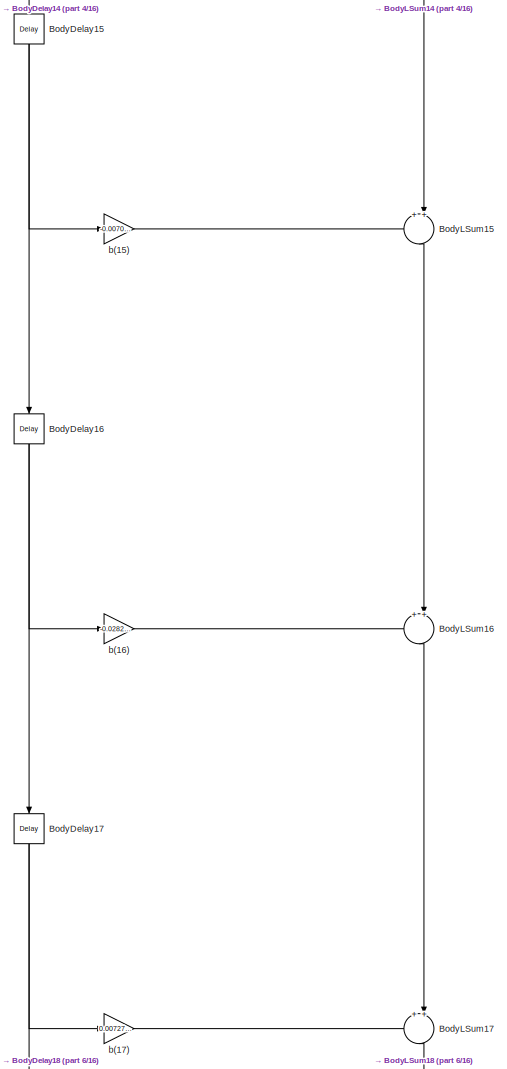
[diagram: Wind-MPPT/Torque reference 1/Differentiator Filter/Generated Filter Block - part 5/16, top center region]
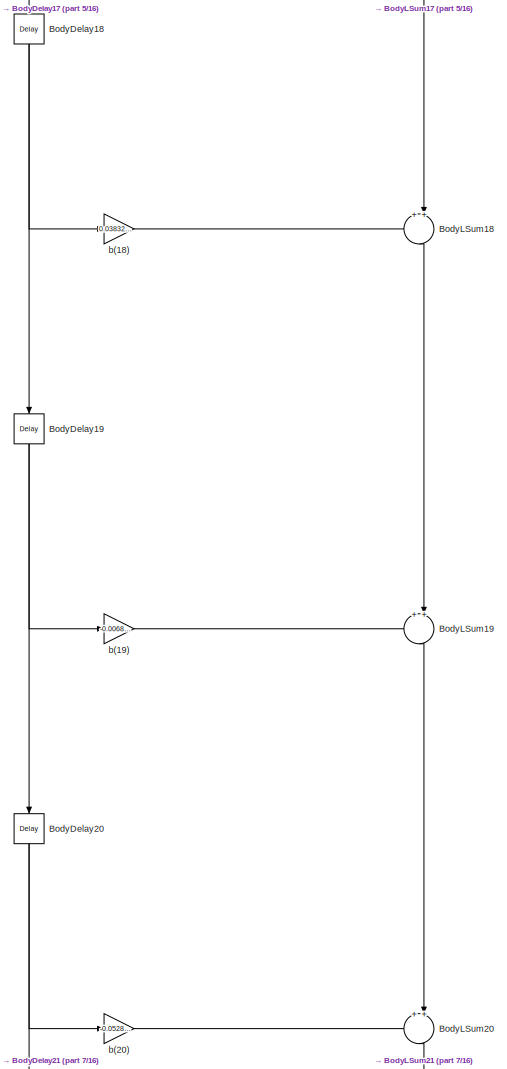
[diagram: Wind-MPPT/Torque reference 1/Differentiator Filter/Generated Filter Block - part 6/16, top center region]
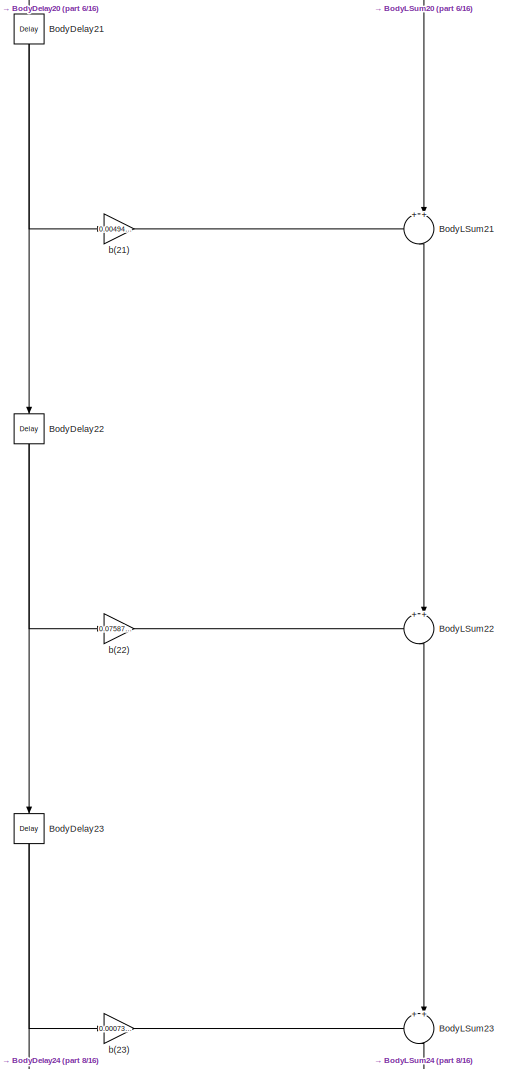
[diagram: Wind-MPPT/Torque reference 1/Differentiator Filter/Generated Filter Block - part 7/16, central region]
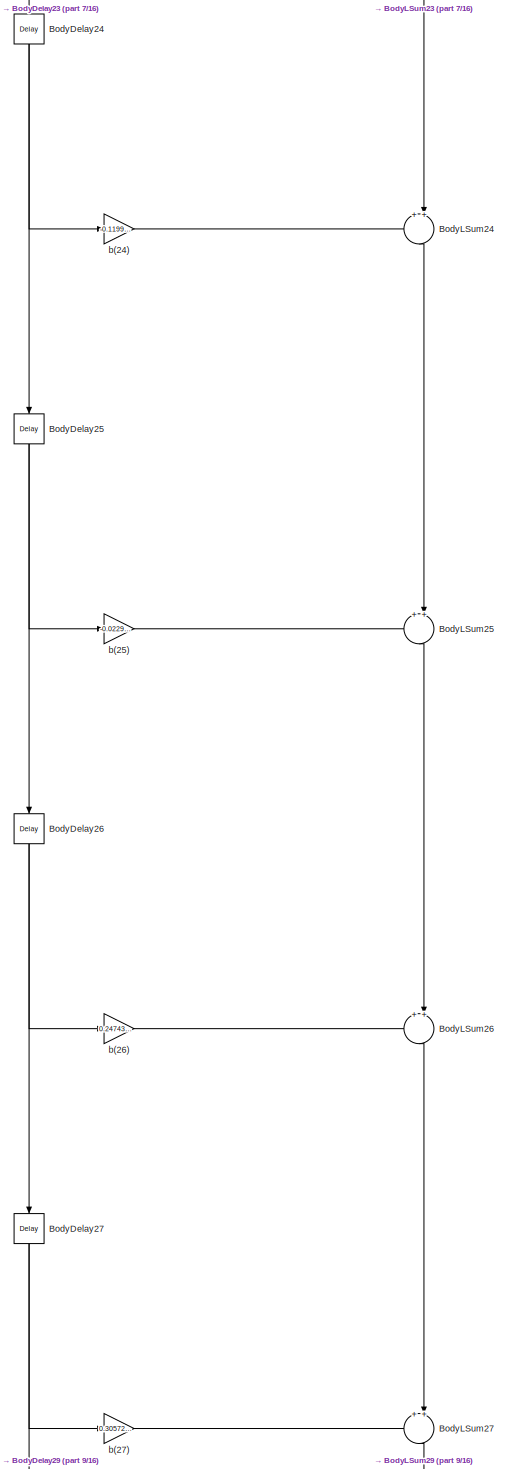
[diagram: Wind-MPPT/Torque reference 1/Differentiator Filter/Generated Filter Block - part 8/16, central region]
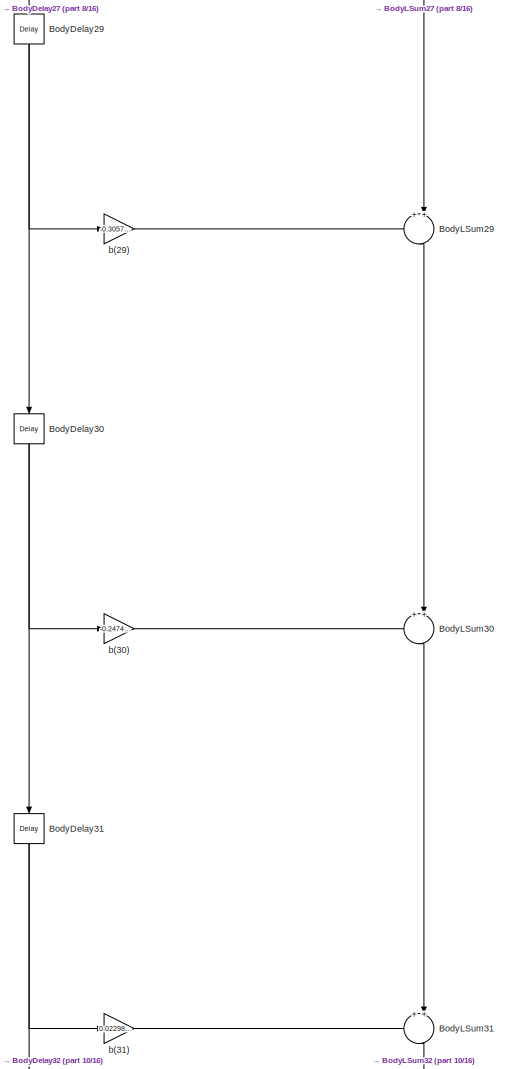
[diagram: Wind-MPPT/Torque reference 1/Differentiator Filter/Generated Filter Block - part 9/16, central region]
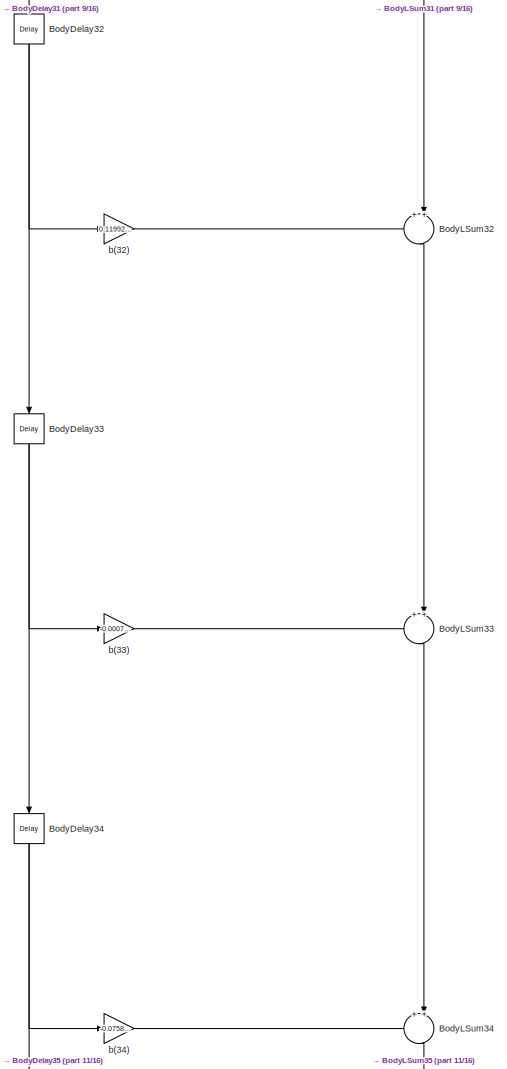
[diagram: Wind-MPPT/Torque reference 1/Differentiator Filter/Generated Filter Block - part 10/16, central region]
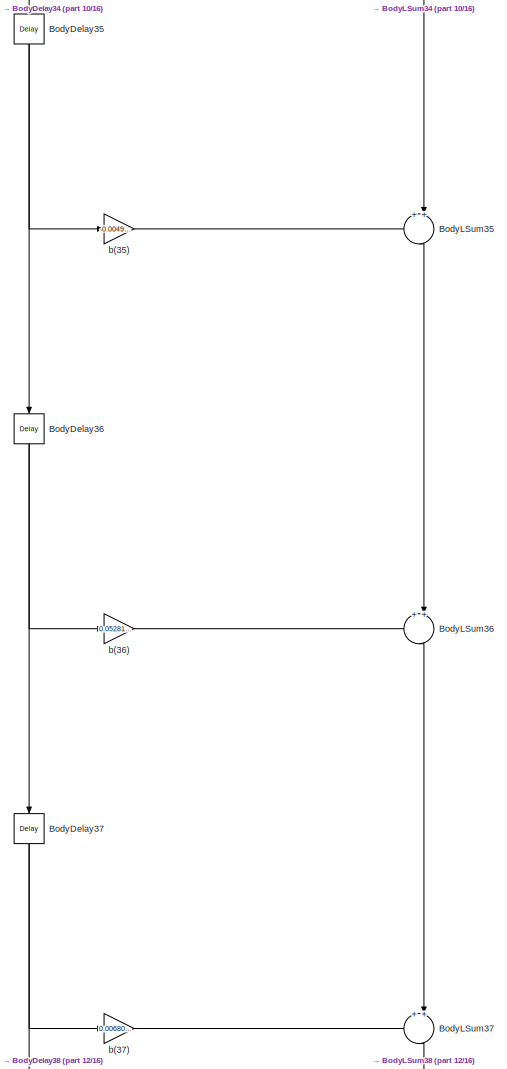
[diagram: Wind-MPPT/Torque reference 1/Differentiator Filter/Generated Filter Block - part 11/16, central region]
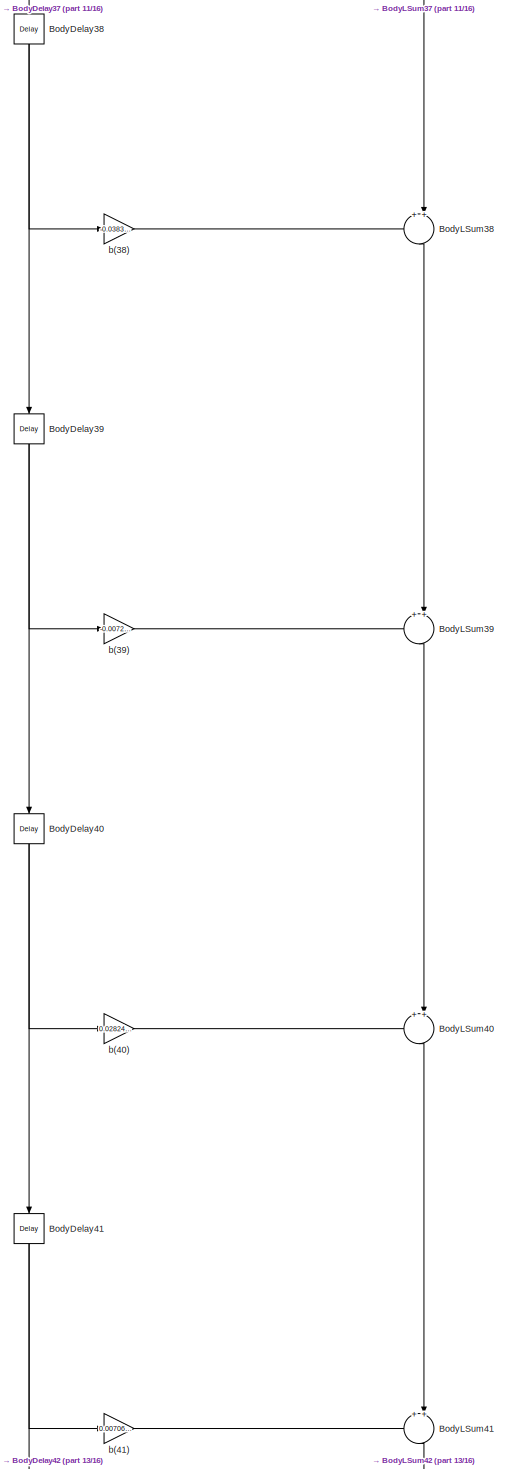
[diagram: Wind-MPPT/Torque reference 1/Differentiator Filter/Generated Filter Block - part 12/16, bottom center region]
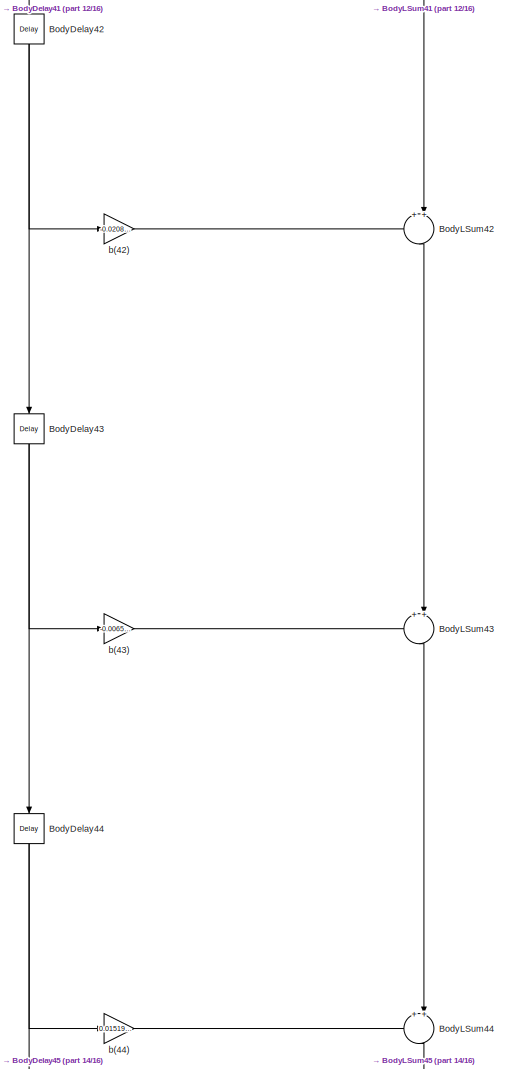
[diagram: Wind-MPPT/Torque reference 1/Differentiator Filter/Generated Filter Block - part 13/16, bottom center region]
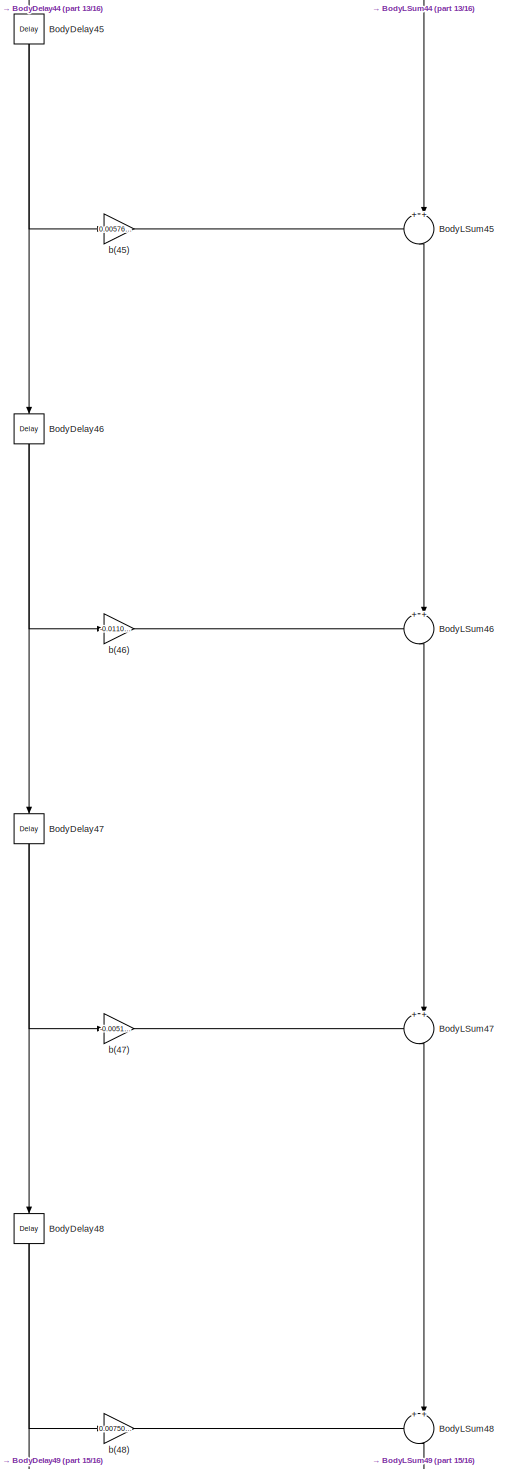
[diagram: Wind-MPPT/Torque reference 1/Differentiator Filter/Generated Filter Block - part 14/16, bottom center region]
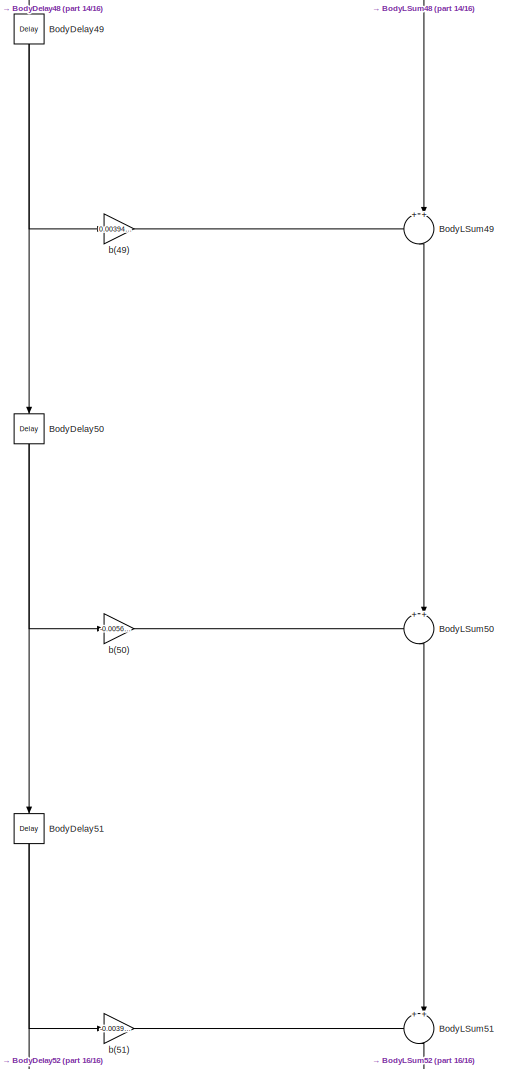
[diagram: Wind-MPPT/Torque reference 1/Differentiator Filter/Generated Filter Block - part 15/16, bottom center region]
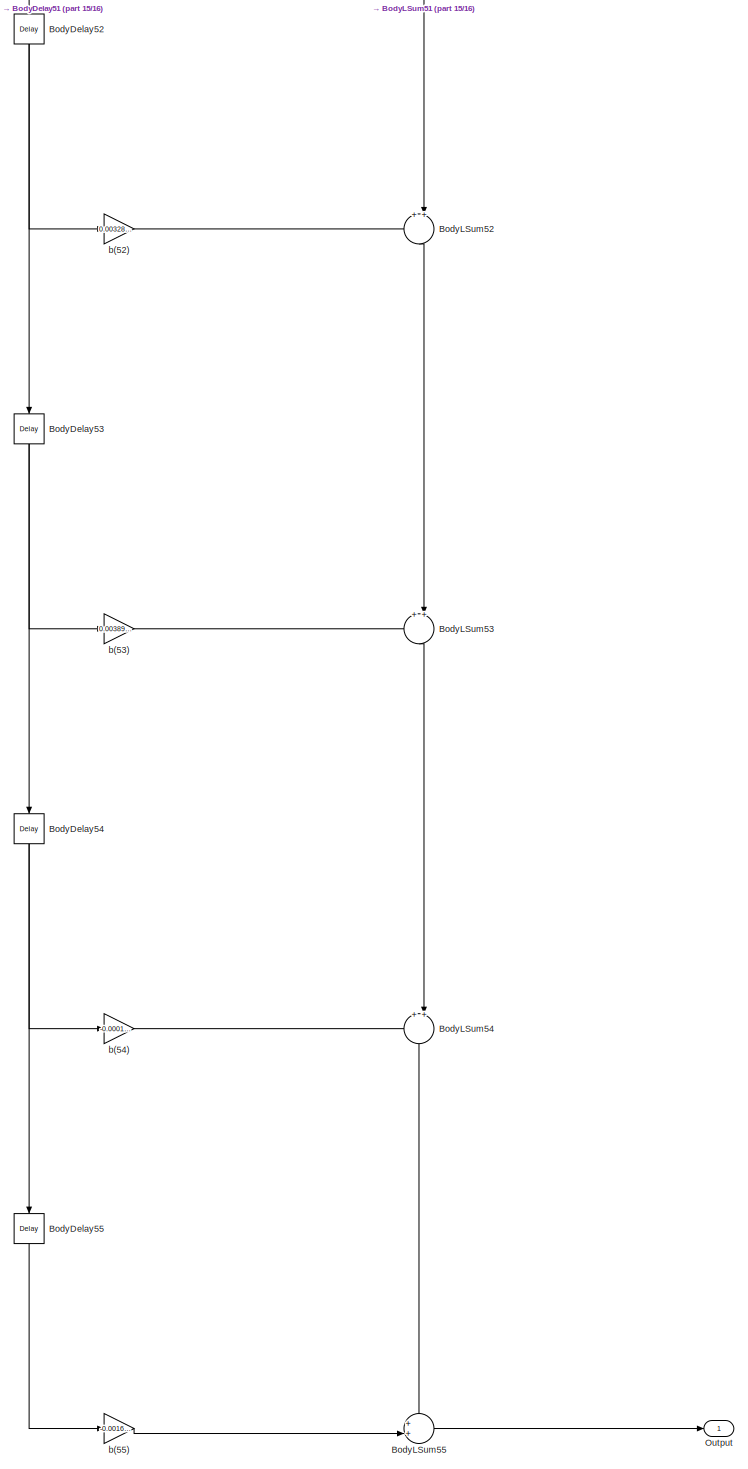
[diagram: Wind-MPPT/Torque reference 1/Differentiator Filter/Generated Filter Block - part 16/16, full width, bottom band]
BLOCK [SubSystem] Wind-MPPT/Torque reference 1/Differentiator Filter/Generated Filter Block
  ErrorFcn = dspFilterRealizedInBasicElemsAlgLoopErrFcnCallback
  Ports = [1, 1]
  RequestExecContextInheritance = off
  SID = 212:2
  Tag = FilterWizardSubSystem
  UserDataPersistent = on
BLOCK [Reference] Wind-MPPT/Torque reference 1/Differentiator Filter/Generated Filter Block/BodyDelay10  REF=dspsigops/Delay
  Ports = [1, 1]
  SID = 212:4
  SourceBlock = dspsigops/Delay
  SourceProductBaseCode = DS
  SourceProductName = DSP System Toolbox
  SourceType = Delay
  delay = 1
  dif_ic_for_ch = off
  dif_ic_for_dly = off
  dly_unit = Samples
  ic = 0
  ic_detail = off
  reset_popup = None
BLOCK [Reference] Wind-MPPT/Torque reference 1/Differentiator Filter/Generated Filter Block/BodyDelay11  REF=dspsigops/Delay
  Ports = [1, 1]
  SID = 212:5
  SourceBlock = dspsigops/Delay
  SourceProductBaseCode = DS
  SourceProductName = DSP System Toolbox
  SourceType = Delay
  delay = 1
  dif_ic_for_ch = off
  dif_ic_for_dly = off
  dly_unit = Samples
  ic = 0
  ic_detail = off
  reset_popup = None
BLOCK [Reference] Wind-MPPT/Torque reference 1/Differentiator Filter/Generated Filter Block/BodyDelay12  REF=dspsigops/Delay
  Ports = [1, 1]
  SID = 212:6
  SourceBlock = dspsigops/Delay
  SourceProductBaseCode = DS
  SourceProductName = DSP System Toolbox
  SourceType = Delay
  delay = 1
  dif_ic_for_ch = off
  dif_ic_for_dly = off
  dly_unit = Samples
  ic = 0
  ic_detail = off
  reset_popup = None
BLOCK [Reference] Wind-MPPT/Torque reference 1/Differentiator Filter/Generated Filter Block/BodyDelay13  REF=dspsigops/Delay
  Ports = [1, 1]
  SID = 212:7
  SourceBlock = dspsigops/Delay
  SourceProductBaseCode = DS
  SourceProductName = DSP System Toolbox
  SourceType = Delay
  delay = 1
  dif_ic_for_ch = off
  dif_ic_for_dly = off
  dly_unit = Samples
  ic = 0
  ic_detail = off
  reset_popup = None
BLOCK [Reference] Wind-MPPT/Torque reference 1/Differentiator Filter/Generated Filter Block/BodyDelay14  REF=dspsigops/Delay
  Ports = [1, 1]
  SID = 212:8
  SourceBlock = dspsigops/Delay
  SourceProductBaseCode = DS
  SourceProductName = DSP System Toolbox
  SourceType = Delay
  delay = 1
  dif_ic_for_ch = off
  dif_ic_for_dly = off
  dly_unit = Samples
  ic = 0
  ic_detail = off
  reset_popup = None
BLOCK [Reference] Wind-MPPT/Torque reference 1/Differentiator Filter/Generated Filter Block/BodyDelay15  REF=dspsigops/Delay
  Ports = [1, 1]
  SID = 212:9
  SourceBlock = dspsigops/Delay
  SourceProductBaseCode = DS
  SourceProductName = DSP System Toolbox
  SourceType = Delay
  delay = 1
  dif_ic_for_ch = off
  dif_ic_for_dly = off
  dly_unit = Samples
  ic = 0
  ic_detail = off
  reset_popup = None
BLOCK [Reference] Wind-MPPT/Torque reference 1/Differentiator Filter/Generated Filter Block/BodyDelay16  REF=dspsigops/Delay
  Ports = [1, 1]
  SID = 212:10
  SourceBlock = dspsigops/Delay
  SourceProductBaseCode = DS
  SourceProductName = DSP System Toolbox
  SourceType = Delay
  delay = 1
  dif_ic_for_ch = off
  dif_ic_for_dly = off
  dly_unit = Samples
  ic = 0
  ic_detail = off
  reset_popup = None
BLOCK [Reference] Wind-MPPT/Torque reference 1/Differentiator Filter/Generated Filter Block/BodyDelay17  REF=dspsigops/Delay
  Ports = [1, 1]
  SID = 212:11
  SourceBlock = dspsigops/Delay
  SourceProductBaseCode = DS
  SourceProductName = DSP System Toolbox
  SourceType = Delay
  delay = 1
  dif_ic_for_ch = off
  dif_ic_for_dly = off
  dly_unit = Samples
  ic = 0
  ic_detail = off
  reset_popup = None
BLOCK [Reference] Wind-MPPT/Torque reference 1/Differentiator Filter/Generated Filter Block/BodyDelay18  REF=dspsigops/Delay
  Ports = [1, 1]
  SID = 212:12
  SourceBlock = dspsigops/Delay
  SourceProductBaseCode = DS
  SourceProductName = DSP System Toolbox
  SourceType = Delay
  delay = 1
  dif_ic_for_ch = off
  dif_ic_for_dly = off
  dly_unit = Samples
  ic = 0
  ic_detail = off
  reset_popup = None
BLOCK [Reference] Wind-MPPT/Torque reference 1/Differentiator Filter/Generated Filter Block/BodyDelay19  REF=dspsigops/Delay
  Ports = [1, 1]
  SID = 212:13
  SourceBlock = dspsigops/Delay
  SourceProductBaseCode = DS
  SourceProductName = DSP System Toolbox
  SourceType = Delay
  delay = 1
  dif_ic_for_ch = off
  dif_ic_for_dly = off
  dly_unit = Samples
  ic = 0
  ic_detail = off
  reset_popup = None
BLOCK [Reference] Wind-MPPT/Torque reference 1/Differentiator Filter/Generated Filter Block/BodyDelay2  REF=dspsigops/Delay
  Ports = [1, 1]
  SID = 212:14
  SourceBlock = dspsigops/Delay
  SourceProductBaseCode = DS
  SourceProductName = DSP System Toolbox
  SourceType = Delay
  delay = 1
  dif_ic_for_ch = off
  dif_ic_for_dly = off
  dly_unit = Samples
  ic = 0
  ic_detail = off
  reset_popup = None
BLOCK [Reference] Wind-MPPT/Torque reference 1/Differentiator Filter/Generated Filter Block/BodyDelay20  REF=dspsigops/Delay
  Ports = [1, 1]
  SID = 212:15
  SourceBlock = dspsigops/Delay
  SourceProductBaseCode = DS
  SourceProductName = DSP System Toolbox
  SourceType = Delay
  delay = 1
  dif_ic_for_ch = off
  dif_ic_for_dly = off
  dly_unit = Samples
  ic = 0
  ic_detail = off
  reset_popup = None
BLOCK [Reference] Wind-MPPT/Torque reference 1/Differentiator Filter/Generated Filter Block/BodyDelay21  REF=dspsigops/Delay
  Ports = [1, 1]
  SID = 212:16
  SourceBlock = dspsigops/Delay
  SourceProductBaseCode = DS
  SourceProductName = DSP System Toolbox
  SourceType = Delay
  delay = 1
  dif_ic_for_ch = off
  dif_ic_for_dly = off
  dly_unit = Samples
  ic = 0
  ic_detail = off
  reset_popup = None
BLOCK [Reference] Wind-MPPT/Torque reference 1/Differentiator Filter/Generated Filter Block/BodyDelay22  REF=dspsigops/Delay
  Ports = [1, 1]
  SID = 212:17
  SourceBlock = dspsigops/Delay
  SourceProductBaseCode = DS
  SourceProductName = DSP System Toolbox
  SourceType = Delay
  delay = 1
  dif_ic_for_ch = off
  dif_ic_for_dly = off
  dly_unit = Samples
  ic = 0
  ic_detail = off
  reset_popup = None
BLOCK [Reference] Wind-MPPT/Torque reference 1/Differentiator Filter/Generated Filter Block/BodyDelay23  REF=dspsigops/Delay
  Ports = [1, 1]
  SID = 212:18
  SourceBlock = dspsigops/Delay
  SourceProductBaseCode = DS
  SourceProductName = DSP System Toolbox
  SourceType = Delay
  delay = 1
  dif_ic_for_ch = off
  dif_ic_for_dly = off
  dly_unit = Samples
  ic = 0
  ic_detail = off
  reset_popup = None
BLOCK [Reference] Wind-MPPT/Torque reference 1/Differentiator Filter/Generated Filter Block/BodyDelay24  REF=dspsigops/Delay
  Ports = [1, 1]
  SID = 212:19
  SourceBlock = dspsigops/Delay
  SourceProductBaseCode = DS
  SourceProductName = DSP System Toolbox
  SourceType = Delay
  delay = 1
  dif_ic_for_ch = off
  dif_ic_for_dly = off
  dly_unit = Samples
  ic = 0
  ic_detail = off
  reset_popup = None
BLOCK [Reference] Wind-MPPT/Torque reference 1/Differentiator Filter/Generated Filter Block/BodyDelay25  REF=dspsigops/Delay
  Ports = [1, 1]
  SID = 212:20
  SourceBlock = dspsigops/Delay
  SourceProductBaseCode = DS
  SourceProductName = DSP System Toolbox
  SourceType = Delay
  delay = 1
  dif_ic_for_ch = off
  dif_ic_for_dly = off
  dly_unit = Samples
  ic = 0
  ic_detail = off
  reset_popup = None
BLOCK [Reference] Wind-MPPT/Torque reference 1/Differentiator Filter/Generated Filter Block/BodyDelay26  REF=dspsigops/Delay
  Ports = [1, 1]
  SID = 212:21
  SourceBlock = dspsigops/Delay
  SourceProductBaseCode = DS
  SourceProductName = DSP System Toolbox
  SourceType = Delay
  delay = 1
  dif_ic_for_ch = off
  dif_ic_for_dly = off
  dly_unit = Samples
  ic = 0
  ic_detail = off
  reset_popup = None
BLOCK [Reference] Wind-MPPT/Torque reference 1/Differentiator Filter/Generated Filter Block/BodyDelay27  REF=dspsigops/Delay
  Ports = [1, 1]
  SID = 212:22
  SourceBlock = dspsigops/Delay
  SourceProductBaseCode = DS
  SourceProductName = DSP System Toolbox
  SourceType = Delay
  delay = 1
  dif_ic_for_ch = off
  dif_ic_for_dly = off
  dly_unit = Samples
  ic = 0
  ic_detail = off
  reset_popup = None
BLOCK [Reference] Wind-MPPT/Torque reference 1/Differentiator Filter/Generated Filter Block/BodyDelay29  REF=dspsigops/Delay
  Ports = [1, 1]
  SID = 212:23
  SourceBlock = dspsigops/Delay
  SourceProductBaseCode = DS
  SourceProductName = DSP System Toolbox
  SourceType = Delay
  delay = 2
  dif_ic_for_ch = off
  dif_ic_for_dly = off
  dly_unit = Samples
  ic = 0
  ic_detail = off
  reset_popup = None
BLOCK [Reference] Wind-MPPT/Torque reference 1/Differentiator Filter/Generated Filter Block/BodyDelay3  REF=dspsigops/Delay
  Ports = [1, 1]
  SID = 212:24
  SourceBlock = dspsigops/Delay
  SourceProductBaseCode = DS
  SourceProductName = DSP System Toolbox
  SourceType = Delay
  delay = 1
  dif_ic_for_ch = off
  dif_ic_for_dly = off
  dly_unit = Samples
  ic = 0
  ic_detail = off
  reset_popup = None
BLOCK [Reference] Wind-MPPT/Torque reference 1/Differentiator Filter/Generated Filter Block/BodyDelay30  REF=dspsigops/Delay
  Ports = [1, 1]
  SID = 212:25
  SourceBlock = dspsigops/Delay
  SourceProductBaseCode = DS
  SourceProductName = DSP System Toolbox
  SourceType = Delay
  delay = 1
  dif_ic_for_ch = off
  dif_ic_for_dly = off
  dly_unit = Samples
  ic = 0
  ic_detail = off
  reset_popup = None
BLOCK [Reference] Wind-MPPT/Torque reference 1/Differentiator Filter/Generated Filter Block/BodyDelay31  REF=dspsigops/Delay
  Ports = [1, 1]
  SID = 212:26
  SourceBlock = dspsigops/Delay
  SourceProductBaseCode = DS
  SourceProductName = DSP System Toolbox
  SourceType = Delay
  delay = 1
  dif_ic_for_ch = off
  dif_ic_for_dly = off
  dly_unit = Samples
  ic = 0
  ic_detail = off
  reset_popup = None
BLOCK [Reference] Wind-MPPT/Torque reference 1/Differentiator Filter/Generated Filter Block/BodyDelay32  REF=dspsigops/Delay
  Ports = [1, 1]
  SID = 212:27
  SourceBlock = dspsigops/Delay
  SourceProductBaseCode = DS
  SourceProductName = DSP System Toolbox
  SourceType = Delay
  delay = 1
  dif_ic_for_ch = off
  dif_ic_for_dly = off
  dly_unit = Samples
  ic = 0
  ic_detail = off
  reset_popup = None
BLOCK [Reference] Wind-MPPT/Torque reference 1/Differentiator Filter/Generated Filter Block/BodyDelay33  REF=dspsigops/Delay
  Ports = [1, 1]
  SID = 212:28
  SourceBlock = dspsigops/Delay
  SourceProductBaseCode = DS
  SourceProductName = DSP System Toolbox
  SourceType = Delay
  delay = 1
  dif_ic_for_ch = off
  dif_ic_for_dly = off
  dly_unit = Samples
  ic = 0
  ic_detail = off
  reset_popup = None
BLOCK [Reference] Wind-MPPT/Torque reference 1/Differentiator Filter/Generated Filter Block/BodyDelay34  REF=dspsigops/Delay
  Ports = [1, 1]
  SID = 212:29
  SourceBlock = dspsigops/Delay
  SourceProductBaseCode = DS
  SourceProductName = DSP System Toolbox
  SourceType = Delay
  delay = 1
  dif_ic_for_ch = off
  dif_ic_for_dly = off
  dly_unit = Samples
  ic = 0
  ic_detail = off
  reset_popup = None
BLOCK [Reference] Wind-MPPT/Torque reference 1/Differentiator Filter/Generated Filter Block/BodyDelay35  REF=dspsigops/Delay
  Ports = [1, 1]
  SID = 212:30
  SourceBlock = dspsigops/Delay
  SourceProductBaseCode = DS
  SourceProductName = DSP System Toolbox
  SourceType = Delay
  delay = 1
  dif_ic_for_ch = off
  dif_ic_for_dly = off
  dly_unit = Samples
  ic = 0
  ic_detail = off
  reset_popup = None
BLOCK [Reference] Wind-MPPT/Torque reference 1/Differentiator Filter/Generated Filter Block/BodyDelay36  REF=dspsigops/Delay
  Ports = [1, 1]
  SID = 212:31
  SourceBlock = dspsigops/Delay
  SourceProductBaseCode = DS
  SourceProductName = DSP System Toolbox
  SourceType = Delay
  delay = 1
  dif_ic_for_ch = off
  dif_ic_for_dly = off
  dly_unit = Samples
  ic = 0
  ic_detail = off
  reset_popup = None
BLOCK [Reference] Wind-MPPT/Torque reference 1/Differentiator Filter/Generated Filter Block/BodyDelay37  REF=dspsigops/Delay
  Ports = [1, 1]
  SID = 212:32
  SourceBlock = dspsigops/Delay
  SourceProductBaseCode = DS
  SourceProductName = DSP System Toolbox
  SourceType = Delay
  delay = 1
  dif_ic_for_ch = off
  dif_ic_for_dly = off
  dly_unit = Samples
  ic = 0
  ic_detail = off
  reset_popup = None
BLOCK [Reference] Wind-MPPT/Torque reference 1/Differentiator Filter/Generated Filter Block/BodyDelay38  REF=dspsigops/Delay
  Ports = [1, 1]
  SID = 212:33
  SourceBlock = dspsigops/Delay
  SourceProductBaseCode = DS
  SourceProductName = DSP System Toolbox
  SourceType = Delay
  delay = 1
  dif_ic_for_ch = off
  dif_ic_for_dly = off
  dly_unit = Samples
  ic = 0
  ic_detail = off
  reset_popup = None
BLOCK [Reference] Wind-MPPT/Torque reference 1/Differentiator Filter/Generated Filter Block/BodyDelay39  REF=dspsigops/Delay
  Ports = [1, 1]
  SID = 212:34
  SourceBlock = dspsigops/Delay
  SourceProductBaseCode = DS
  SourceProductName = DSP System Toolbox
  SourceType = Delay
  delay = 1
  dif_ic_for_ch = off
  dif_ic_for_dly = off
  dly_unit = Samples
  ic = 0
  ic_detail = off
  reset_popup = None
BLOCK [Reference] Wind-MPPT/Torque reference 1/Differentiator Filter/Generated Filter Block/BodyDelay4  REF=dspsigops/Delay
  Ports = [1, 1]
  SID = 212:35
  SourceBlock = dspsigops/Delay
  SourceProductBaseCode = DS
  SourceProductName = DSP System Toolbox
  SourceType = Delay
  delay = 1
  dif_ic_for_ch = off
  dif_ic_for_dly = off
  dly_unit = Samples
  ic = 0
  ic_detail = off
  reset_popup = None
BLOCK [Reference] Wind-MPPT/Torque reference 1/Differentiator Filter/Generated Filter Block/BodyDelay40  REF=dspsigops/Delay
  Ports = [1, 1]
  SID = 212:36
  SourceBlock = dspsigops/Delay
  SourceProductBaseCode = DS
  SourceProductName = DSP System Toolbox
  SourceType = Delay
  delay = 1
  dif_ic_for_ch = off
  dif_ic_for_dly = off
  dly_unit = Samples
  ic = 0
  ic_detail = off
  reset_popup = None
BLOCK [Reference] Wind-MPPT/Torque reference 1/Differentiator Filter/Generated Filter Block/BodyDelay41  REF=dspsigops/Delay
  Ports = [1, 1]
  SID = 212:37
  SourceBlock = dspsigops/Delay
  SourceProductBaseCode = DS
  SourceProductName = DSP System Toolbox
  SourceType = Delay
  delay = 1
  dif_ic_for_ch = off
  dif_ic_for_dly = off
  dly_unit = Samples
  ic = 0
  ic_detail = off
  reset_popup = None
BLOCK [Reference] Wind-MPPT/Torque reference 1/Differentiator Filter/Generated Filter Block/BodyDelay42  REF=dspsigops/Delay
  Ports = [1, 1]
  SID = 212:38
  SourceBlock = dspsigops/Delay
  SourceProductBaseCode = DS
  SourceProductName = DSP System Toolbox
  SourceType = Delay
  delay = 1
  dif_ic_for_ch = off
  dif_ic_for_dly = off
  dly_unit = Samples
  ic = 0
  ic_detail = off
  reset_popup = None
BLOCK [Reference] Wind-MPPT/Torque reference 1/Differentiator Filter/Generated Filter Block/BodyDelay43  REF=dspsigops/Delay
  Ports = [1, 1]
  SID = 212:39
  SourceBlock = dspsigops/Delay
  SourceProductBaseCode = DS
  SourceProductName = DSP System Toolbox
  SourceType = Delay
  delay = 1
  dif_ic_for_ch = off
  dif_ic_for_dly = off
  dly_unit = Samples
  ic = 0
  ic_detail = off
  reset_popup = None
BLOCK [Reference] Wind-MPPT/Torque reference 1/Differentiator Filter/Generated Filter Block/BodyDelay44  REF=dspsigops/Delay
  Ports = [1, 1]
  SID = 212:40
  SourceBlock = dspsigops/Delay
  SourceProductBaseCode = DS
  SourceProductName = DSP System Toolbox
  SourceType = Delay
  delay = 1
  dif_ic_for_ch = off
  dif_ic_for_dly = off
  dly_unit = Samples
  ic = 0
  ic_detail = off
  reset_popup = None
BLOCK [Reference] Wind-MPPT/Torque reference 1/Differentiator Filter/Generated Filter Block/BodyDelay45  REF=dspsigops/Delay
  Ports = [1, 1]
  SID = 212:41
  SourceBlock = dspsigops/Delay
  SourceProductBaseCode = DS
  SourceProductName = DSP System Toolbox
  SourceType = Delay
  delay = 1
  dif_ic_for_ch = off
  dif_ic_for_dly = off
  dly_unit = Samples
  ic = 0
  ic_detail = off
  reset_popup = None
BLOCK [Reference] Wind-MPPT/Torque reference 1/Differentiator Filter/Generated Filter Block/BodyDelay46  REF=dspsigops/Delay
  Ports = [1, 1]
  SID = 212:42
  SourceBlock = dspsigops/Delay
  SourceProductBaseCode = DS
  SourceProductName = DSP System Toolbox
  SourceType = Delay
  delay = 1
  dif_ic_for_ch = off
  dif_ic_for_dly = off
  dly_unit = Samples
  ic = 0
  ic_detail = off
  reset_popup = None
BLOCK [Reference] Wind-MPPT/Torque reference 1/Differentiator Filter/Generated Filter Block/BodyDelay47  REF=dspsigops/Delay
  Ports = [1, 1]
  SID = 212:43
  SourceBlock = dspsigops/Delay
  SourceProductBaseCode = DS
  SourceProductName = DSP System Toolbox
  SourceType = Delay
  delay = 1
  dif_ic_for_ch = off
  dif_ic_for_dly = off
  dly_unit = Samples
  ic = 0
  ic_detail = off
  reset_popup = None
BLOCK [Reference] Wind-MPPT/Torque reference 1/Differentiator Filter/Generated Filter Block/BodyDelay48  REF=dspsigops/Delay
  Ports = [1, 1]
  SID = 212:44
  SourceBlock = dspsigops/Delay
  SourceProductBaseCode = DS
  SourceProductName = DSP System Toolbox
  SourceType = Delay
  delay = 1
  dif_ic_for_ch = off
  dif_ic_for_dly = off
  dly_unit = Samples
  ic = 0
  ic_detail = off
  reset_popup = None
BLOCK [Reference] Wind-MPPT/Torque reference 1/Differentiator Filter/Generated Filter Block/BodyDelay49  REF=dspsigops/Delay
  Ports = [1, 1]
  SID = 212:45
  SourceBlock = dspsigops/Delay
  SourceProductBaseCode = DS
  SourceProductName = DSP System Toolbox
  SourceType = Delay
  delay = 1
  dif_ic_for_ch = off
  dif_ic_for_dly = off
  dly_unit = Samples
  ic = 0
  ic_detail = off
  reset_popup = None
BLOCK [Reference] Wind-MPPT/Torque reference 1/Differentiator Filter/Generated Filter Block/BodyDelay5  REF=dspsigops/Delay
  Ports = [1, 1]
  SID = 212:46
  SourceBlock = dspsigops/Delay
  SourceProductBaseCode = DS
  SourceProductName = DSP System Toolbox
  SourceType = Delay
  delay = 1
  dif_ic_for_ch = off
  dif_ic_for_dly = off
  dly_unit = Samples
  ic = 0
  ic_detail = off
  reset_popup = None
BLOCK [Reference] Wind-MPPT/Torque reference 1/Differentiator Filter/Generated Filter Block/BodyDelay50  REF=dspsigops/Delay
  Ports = [1, 1]
  SID = 212:47
  SourceBlock = dspsigops/Delay
  SourceProductBaseCode = DS
  SourceProductName = DSP System Toolbox
  SourceType = Delay
  delay = 1
  dif_ic_for_ch = off
  dif_ic_for_dly = off
  dly_unit = Samples
  ic = 0
  ic_detail = off
  reset_popup = None
BLOCK [Reference] Wind-MPPT/Torque reference 1/Differentiator Filter/Generated Filter Block/BodyDelay51  REF=dspsigops/Delay
  Ports = [1, 1]
  SID = 212:48
  SourceBlock = dspsigops/Delay
  SourceProductBaseCode = DS
  SourceProductName = DSP System Toolbox
  SourceType = Delay
  delay = 1
  dif_ic_for_ch = off
  dif_ic_for_dly = off
  dly_unit = Samples
  ic = 0
  ic_detail = off
  reset_popup = None
BLOCK [Reference] Wind-MPPT/Torque reference 1/Differentiator Filter/Generated Filter Block/BodyDelay52  REF=dspsigops/Delay
  Ports = [1, 1]
  SID = 212:49
  SourceBlock = dspsigops/Delay
  SourceProductBaseCode = DS
  SourceProductName = DSP System Toolbox
  SourceType = Delay
  delay = 1
  dif_ic_for_ch = off
  dif_ic_for_dly = off
  dly_unit = Samples
  ic = 0
  ic_detail = off
  reset_popup = None
BLOCK [Reference] Wind-MPPT/Torque reference 1/Differentiator Filter/Generated Filter Block/BodyDelay53  REF=dspsigops/Delay
  Ports = [1, 1]
  SID = 212:50
  SourceBlock = dspsigops/Delay
  SourceProductBaseCode = DS
  SourceProductName = DSP System Toolbox
  SourceType = Delay
  delay = 1
  dif_ic_for_ch = off
  dif_ic_for_dly = off
  dly_unit = Samples
  ic = 0
  ic_detail = off
  reset_popup = None
BLOCK [Reference] Wind-MPPT/Torque reference 1/Differentiator Filter/Generated Filter Block/BodyDelay54  REF=dspsigops/Delay
  Ports = [1, 1]
  SID = 212:51
  SourceBlock = dspsigops/Delay
  SourceProductBaseCode = DS
  SourceProductName = DSP System Toolbox
  SourceType = Delay
  delay = 1
  dif_ic_for_ch = off
  dif_ic_for_dly = off
  dly_unit = Samples
  ic = 0
  ic_detail = off
  reset_popup = None
BLOCK [Reference] Wind-MPPT/Torque reference 1/Differentiator Filter/Generated Filter Block/BodyDelay55  REF=dspsigops/Delay
  Ports = [1, 1]
  SID = 212:52
  SourceBlock = dspsigops/Delay
  SourceProductBaseCode = DS
  SourceProductName = DSP System Toolbox
  SourceType = Delay
  delay = 1
  dif_ic_for_ch = off
  dif_ic_for_dly = off
  dly_unit = Samples
  ic = 0
  ic_detail = off
  reset_popup = None
BLOCK [Reference] Wind-MPPT/Torque reference 1/Differentiator Filter/Generated Filter Block/BodyDelay6  REF=dspsigops/Delay
  Ports = [1, 1]
  SID = 212:53
  SourceBlock = dspsigops/Delay
  SourceProductBaseCode = DS
  SourceProductName = DSP System Toolbox
  SourceType = Delay
  delay = 1
  dif_ic_for_ch = off
  dif_ic_for_dly = off
  dly_unit = Samples
  ic = 0
  ic_detail = off
  reset_popup = None
BLOCK [Reference] Wind-MPPT/Torque reference 1/Differentiator Filter/Generated Filter Block/BodyDelay7  REF=dspsigops/Delay
  Ports = [1, 1]
  SID = 212:54
  SourceBlock = dspsigops/Delay
  SourceProductBaseCode = DS
  SourceProductName = DSP System Toolbox
  SourceType = Delay
  delay = 1
  dif_ic_for_ch = off
  dif_ic_for_dly = off
  dly_unit = Samples
  ic = 0
  ic_detail = off
  reset_popup = None
BLOCK [Reference] Wind-MPPT/Torque reference 1/Differentiator Filter/Generated Filter Block/BodyDelay8  REF=dspsigops/Delay
  Ports = [1, 1]
  SID = 212:55
  SourceBlock = dspsigops/Delay
  SourceProductBaseCode = DS
  SourceProductName = DSP System Toolbox
  SourceType = Delay
  delay = 1
  dif_ic_for_ch = off
  dif_ic_for_dly = off
  dly_unit = Samples
  ic = 0
  ic_detail = off
  reset_popup = None
BLOCK [Reference] Wind-MPPT/Torque reference 1/Differentiator Filter/Generated Filter Block/BodyDelay9  REF=dspsigops/Delay
  Ports = [1, 1]
  SID = 212:56
  SourceBlock = dspsigops/Delay
  SourceProductBaseCode = DS
  SourceProductName = DSP System Toolbox
  SourceType = Delay
  delay = 1
  dif_ic_for_ch = off
  dif_ic_for_dly = off
  dly_unit = Samples
  ic = 0
  ic_detail = off
  reset_popup = None
BLOCK [Sum] Wind-MPPT/Torque reference 1/Differentiator Filter/Generated Filter Block/BodyLSum10
  IconShape = round
  Inputs = ++|
  Ports = [2, 1]
  SID = 212:57
BLOCK [Sum] Wind-MPPT/Torque reference 1/Differentiator Filter/Generated Filter Block/BodyLSum11
  IconShape = round
  Inputs = ++|
  Ports = [2, 1]
  SID = 212:58
BLOCK [Sum] Wind-MPPT/Torque reference 1/Differentiator Filter/Generated Filter Block/BodyLSum12
  IconShape = round
  Inputs = ++|
  Ports = [2, 1]
  SID = 212:59
BLOCK [Sum] Wind-MPPT/Torque reference 1/Differentiator Filter/Generated Filter Block/BodyLSum13
  IconShape = round
  Inputs = ++|
  Ports = [2, 1]
  SID = 212:60
BLOCK [Sum] Wind-MPPT/Torque reference 1/Differentiator Filter/Generated Filter Block/BodyLSum14
  IconShape = round
  Inputs = ++|
  Ports = [2, 1]
  SID = 212:61
BLOCK [Sum] Wind-MPPT/Torque reference 1/Differentiator Filter/Generated Filter Block/BodyLSum15
  IconShape = round
  Inputs = ++|
  Ports = [2, 1]
  SID = 212:62
BLOCK [Sum] Wind-MPPT/Torque reference 1/Differentiator Filter/Generated Filter Block/BodyLSum16
  IconShape = round
  Inputs = ++|
  Ports = [2, 1]
  SID = 212:63
BLOCK [Sum] Wind-MPPT/Torque reference 1/Differentiator Filter/Generated Filter Block/BodyLSum17
  IconShape = round
  Inputs = ++|
  Ports = [2, 1]
  SID = 212:64
BLOCK [Sum] Wind-MPPT/Torque reference 1/Differentiator Filter/Generated Filter Block/BodyLSum18
  IconShape = round
  Inputs = ++|
  Ports = [2, 1]
  SID = 212:65
BLOCK [Sum] Wind-MPPT/Torque reference 1/Differentiator Filter/Generated Filter Block/BodyLSum19
  IconShape = round
  Inputs = ++|
  Ports = [2, 1]
  SID = 212:66
BLOCK [Sum] Wind-MPPT/Torque reference 1/Differentiator Filter/Generated Filter Block/BodyLSum2
  IconShape = round
  Inputs = ++|
  Ports = [2, 1]
  SID = 212:67
BLOCK [Sum] Wind-MPPT/Torque reference 1/Differentiator Filter/Generated Filter Block/BodyLSum20
  IconShape = round
  Inputs = ++|
  Ports = [2, 1]
  SID = 212:68
BLOCK [Sum] Wind-MPPT/Torque reference 1/Differentiator Filter/Generated Filter Block/BodyLSum21
  IconShape = round
  Inputs = ++|
  Ports = [2, 1]
  SID = 212:69
BLOCK [Sum] Wind-MPPT/Torque reference 1/Differentiator Filter/Generated Filter Block/BodyLSum22
  IconShape = round
  Inputs = ++|
  Ports = [2, 1]
  SID = 212:70
BLOCK [Sum] Wind-MPPT/Torque reference 1/Differentiator Filter/Generated Filter Block/BodyLSum23
  IconShape = round
  Inputs = ++|
  Ports = [2, 1]
  SID = 212:71
BLOCK [Sum] Wind-MPPT/Torque reference 1/Differentiator Filter/Generated Filter Block/BodyLSum24
  IconShape = round
  Inputs = ++|
  Ports = [2, 1]
  SID = 212:72
BLOCK [Sum] Wind-MPPT/Torque reference 1/Differentiator Filter/Generated Filter Block/BodyLSum25
  IconShape = round
  Inputs = ++|
  Ports = [2, 1]
  SID = 212:73
BLOCK [Sum] Wind-MPPT/Torque reference 1/Differentiator Filter/Generated Filter Block/BodyLSum26
  IconShape = round
  Inputs = ++|
  Ports = [2, 1]
  SID = 212:74
BLOCK [Sum] Wind-MPPT/Torque reference 1/Differentiator Filter/Generated Filter Block/BodyLSum27
  IconShape = round
  Inputs = ++|
  Ports = [2, 1]
  SID = 212:75
BLOCK [Sum] Wind-MPPT/Torque reference 1/Differentiator Filter/Generated Filter Block/BodyLSum29
  IconShape = round
  Inputs = ++|
  Ports = [2, 1]
  SID = 212:76
BLOCK [Sum] Wind-MPPT/Torque reference 1/Differentiator Filter/Generated Filter Block/BodyLSum3
  IconShape = round
  Inputs = ++|
  Ports = [2, 1]
  SID = 212:77
BLOCK [Sum] Wind-MPPT/Torque reference 1/Differentiator Filter/Generated Filter Block/BodyLSum30
  IconShape = round
  Inputs = ++|
  Ports = [2, 1]
  SID = 212:78
BLOCK [Sum] Wind-MPPT/Torque reference 1/Differentiator Filter/Generated Filter Block/BodyLSum31
  IconShape = round
  Inputs = ++|
  Ports = [2, 1]
  SID = 212:79
BLOCK [Sum] Wind-MPPT/Torque reference 1/Differentiator Filter/Generated Filter Block/BodyLSum32
  IconShape = round
  Inputs = ++|
  Ports = [2, 1]
  SID = 212:80
BLOCK [Sum] Wind-MPPT/Torque reference 1/Differentiator Filter/Generated Filter Block/BodyLSum33
  IconShape = round
  Inputs = ++|
  Ports = [2, 1]
  SID = 212:81
BLOCK [Sum] Wind-MPPT/Torque reference 1/Differentiator Filter/Generated Filter Block/BodyLSum34
  IconShape = round
  Inputs = ++|
  Ports = [2, 1]
  SID = 212:82
BLOCK [Sum] Wind-MPPT/Torque reference 1/Differentiator Filter/Generated Filter Block/BodyLSum35
  IconShape = round
  Inputs = ++|
  Ports = [2, 1]
  SID = 212:83
BLOCK [Sum] Wind-MPPT/Torque reference 1/Differentiator Filter/Generated Filter Block/BodyLSum36
  IconShape = round
  Inputs = ++|
  Ports = [2, 1]
  SID = 212:84
BLOCK [Sum] Wind-MPPT/Torque reference 1/Differentiator Filter/Generated Filter Block/BodyLSum37
  IconShape = round
  Inputs = ++|
  Ports = [2, 1]
  SID = 212:85
BLOCK [Sum] Wind-MPPT/Torque reference 1/Differentiator Filter/Generated Filter Block/BodyLSum38
  IconShape = round
  Inputs = ++|
  Ports = [2, 1]
  SID = 212:86
BLOCK [Sum] Wind-MPPT/Torque reference 1/Differentiator Filter/Generated Filter Block/BodyLSum39
  IconShape = round
  Inputs = ++|
  Ports = [2, 1]
  SID = 212:87
BLOCK [Sum] Wind-MPPT/Torque reference 1/Differentiator Filter/Generated Filter Block/BodyLSum4
  IconShape = round
  Inputs = ++|
  Ports = [2, 1]
  SID = 212:88
BLOCK [Sum] Wind-MPPT/Torque reference 1/Differentiator Filter/Generated Filter Block/BodyLSum40
  IconShape = round
  Inputs = ++|
  Ports = [2, 1]
  SID = 212:89
BLOCK [Sum] Wind-MPPT/Torque reference 1/Differentiator Filter/Generated Filter Block/BodyLSum41
  IconShape = round
  Inputs = ++|
  Ports = [2, 1]
  SID = 212:90
BLOCK [Sum] Wind-MPPT/Torque reference 1/Differentiator Filter/Generated Filter Block/BodyLSum42
  IconShape = round
  Inputs = ++|
  Ports = [2, 1]
  SID = 212:91
BLOCK [Sum] Wind-MPPT/Torque reference 1/Differentiator Filter/Generated Filter Block/BodyLSum43
  IconShape = round
  Inputs = ++|
  Ports = [2, 1]
  SID = 212:92
BLOCK [Sum] Wind-MPPT/Torque reference 1/Differentiator Filter/Generated Filter Block/BodyLSum44
  IconShape = round
  Inputs = ++|
  Ports = [2, 1]
  SID = 212:93
BLOCK [Sum] Wind-MPPT/Torque reference 1/Differentiator Filter/Generated Filter Block/BodyLSum45
  IconShape = round
  Inputs = ++|
  Ports = [2, 1]
  SID = 212:94
BLOCK [Sum] Wind-MPPT/Torque reference 1/Differentiator Filter/Generated Filter Block/BodyLSum46
  IconShape = round
  Inputs = ++|
  Ports = [2, 1]
  SID = 212:95
BLOCK [Sum] Wind-MPPT/Torque reference 1/Differentiator Filter/Generated Filter Block/BodyLSum47
  IconShape = round
  Inputs = ++|
  Ports = [2, 1]
  SID = 212:96
BLOCK [Sum] Wind-MPPT/Torque reference 1/Differentiator Filter/Generated Filter Block/BodyLSum48
  IconShape = round
  Inputs = ++|
  Ports = [2, 1]
  SID = 212:97
BLOCK [Sum] Wind-MPPT/Torque reference 1/Differentiator Filter/Generated Filter Block/BodyLSum49
  IconShape = round
  Inputs = ++|
  Ports = [2, 1]
  SID = 212:98
BLOCK [Sum] Wind-MPPT/Torque reference 1/Differentiator Filter/Generated Filter Block/BodyLSum5
  IconShape = round
  Inputs = ++|
  Ports = [2, 1]
  SID = 212:99
BLOCK [Sum] Wind-MPPT/Torque reference 1/Differentiator Filter/Generated Filter Block/BodyLSum50
  IconShape = round
  Inputs = ++|
  Ports = [2, 1]
  SID = 212:100
BLOCK [Sum] Wind-MPPT/Torque reference 1/Differentiator Filter/Generated Filter Block/BodyLSum51
  IconShape = round
  Inputs = ++|
  Ports = [2, 1]
  SID = 212:101
BLOCK [Sum] Wind-MPPT/Torque reference 1/Differentiator Filter/Generated Filter Block/BodyLSum52
  IconShape = round
  Inputs = ++|
  Ports = [2, 1]
  SID = 212:102
BLOCK [Sum] Wind-MPPT/Torque reference 1/Differentiator Filter/Generated Filter Block/BodyLSum53
  IconShape = round
  Inputs = ++|
  Ports = [2, 1]
  SID = 212:103
BLOCK [Sum] Wind-MPPT/Torque reference 1/Differentiator Filter/Generated Filter Block/BodyLSum54
  IconShape = round
  Inputs = ++|
  Ports = [2, 1]
  SID = 212:104
BLOCK [Sum] Wind-MPPT/Torque reference 1/Differentiator Filter/Generated Filter Block/BodyLSum55
  IconShape = round
  Inputs = ++|
  Ports = [2, 1]
  SID = 212:105
BLOCK [Sum] Wind-MPPT/Torque reference 1/Differentiator Filter/Generated Filter Block/BodyLSum6
  IconShape = round
  Inputs = ++|
  Ports = [2, 1]
  SID = 212:106
BLOCK [Sum] Wind-MPPT/Torque reference 1/Differentiator Filter/Generated Filter Block/BodyLSum7
  IconShape = round
  Inputs = ++|
  Ports = [2, 1]
  SID = 212:107
BLOCK [Sum] Wind-MPPT/Torque reference 1/Differentiator Filter/Generated Filter Block/BodyLSum8
  IconShape = round
  Inputs = ++|
  Ports = [2, 1]
  SID = 212:108
BLOCK [Sum] Wind-MPPT/Torque reference 1/Differentiator Filter/Generated Filter Block/BodyLSum9
  IconShape = round
  Inputs = ++|
  Ports = [2, 1]
  SID = 212:109
BLOCK [Inport] Wind-MPPT/Torque reference 1/Differentiator Filter/Generated Filter Block/Input
  IconDisplay = Port number
  SID = 212:3
BLOCK [Outport] Wind-MPPT/Torque reference 1/Differentiator Filter/Generated Filter Block/Output
  IconDisplay = Port number
  SID = 212:164
BLOCK [Gain] Wind-MPPT/Torque reference 1/Differentiator Filter/Generated Filter Block/b(1)
  Gain = 0.0016485839041717864
  SID = 212:110
BLOCK [Gain] Wind-MPPT/Torque reference 1/Differentiator Filter/Generated Filter Block/b(10)
  Gain = 0.011014879869749052
  SID = 212:111
BLOCK [Gain] Wind-MPPT/Torque reference 1/Differentiator Filter/Generated Filter Block/b(11)
  Gain = -0.005763535930488302
  SID = 212:112
BLOCK [Gain] Wind-MPPT/Torque reference 1/Differentiator Filter/Generated Filter Block/b(12)
  Gain = -0.0151981830555213
  SID = 212:113
BLOCK [Gain] Wind-MPPT/Torque reference 1/Differentiator Filter/Generated Filter Block/b(13)
  Gain = 0.0065686388642668125
  SID = 212:114
BLOCK [Gain] Wind-MPPT/Torque reference 1/Differentiator Filter/Generated Filter Block/b(14)
  Gain = 0.020867949959447688
  SID = 212:115
BLOCK [Gain] Wind-MPPT/Torque reference 1/Differentiator Filter/Generated Filter Block/b(15)
  Gain = -0.0070602627960907726
  SID = 212:116
BLOCK [Gain] Wind-MPPT/Torque reference 1/Differentiator Filter/Generated Filter Block/b(16)
  Gain = -0.028242635943863115
  SID = 212:117
BLOCK [Gain] Wind-MPPT/Torque reference 1/Differentiator Filter/Generated Filter Block/b(17)
  Gain = 0.0072704924773104732
  SID = 212:118
BLOCK [Gain] Wind-MPPT/Torque reference 1/Differentiator Filter/Generated Filter Block/b(18)
  Gain = 0.038329320446368831
  SID = 212:119
BLOCK [Gain] Wind-MPPT/Torque reference 1/Differentiator Filter/Generated Filter Block/b(19)
  Gain = -0.0068002265270407491
  SID = 212:120
BLOCK [Gain] Wind-MPPT/Torque reference 1/Differentiator Filter/Generated Filter Block/b(2)
  Gain = 0.00017042943589110223
  SID = 212:121
BLOCK [Gain] Wind-MPPT/Torque reference 1/Differentiator Filter/Generated Filter Block/b(20)
  Gain = -0.052819993002155965
  SID = 212:122
BLOCK [Gain] Wind-MPPT/Torque reference 1/Differentiator Filter/Generated Filter Block/b(21)
  Gain = 0.0049482783503700268
  SID = 212:123
BLOCK [Gain] Wind-MPPT/Torque reference 1/Differentiator Filter/Generated Filter Block/b(22)
  Gain = 0.075871674298216826
  SID = 212:124
BLOCK [Gain] Wind-MPPT/Torque reference 1/Differentiator Filter/Generated Filter Block/b(23)
  Gain = 0.00073312852370662537
  SID = 212:125
BLOCK [Gain] Wind-MPPT/Torque reference 1/Differentiator Filter/Generated Filter Block/b(24)
  Gain = -0.11992357305817197
  SID = 212:126
BLOCK [Gain] Wind-MPPT/Torque reference 1/Differentiator Filter/Generated Filter Block/b(25)
  Gain = -0.022982436984387535
  SID = 212:127
BLOCK [Gain] Wind-MPPT/Torque reference 1/Differentiator Filter/Generated Filter Block/b(26)
  Gain = 0.24743192698089667
  SID = 212:128
BLOCK [Gain] Wind-MPPT/Torque reference 1/Differentiator Filter/Generated Filter Block/b(27)
  Gain = 0.30572927022108953
  SID = 212:129
BLOCK [Gain] Wind-MPPT/Torque reference 1/Differentiator Filter/Generated Filter Block/b(29)
  Gain = -0.30572927022108953
  SID = 212:130
BLOCK [Gain] Wind-MPPT/Torque reference 1/Differentiator Filter/Generated Filter Block/b(3)
  Gain = -0.0038948238157296179
  SID = 212:131
BLOCK [Gain] Wind-MPPT/Torque reference 1/Differentiator Filter/Generated Filter Block/b(30)
  Gain = -0.24743192698089667
  SID = 212:132
BLOCK [Gain] Wind-MPPT/Torque reference 1/Differentiator Filter/Generated Filter Block/b(31)
  Gain = 0.022982436984387535
  SID = 212:133
BLOCK [Gain] Wind-MPPT/Torque reference 1/Differentiator Filter/Generated Filter Block/b(32)
  Gain = 0.11992357305817197
  SID = 212:134
BLOCK [Gain] Wind-MPPT/Torque reference 1/Differentiator Filter/Generated Filter Block/b(33)
  Gain = -0.00073312852370662537
  SID = 212:135
BLOCK [Gain] Wind-MPPT/Torque reference 1/Differentiator Filter/Generated Filter Block/b(34)
  Gain = -0.075871674298216826
  SID = 212:136
BLOCK [Gain] Wind-MPPT/Torque reference 1/Differentiator Filter/Generated Filter Block/b(35)
  Gain = -0.0049482783503700268
  SID = 212:137
BLOCK [Gain] Wind-MPPT/Torque reference 1/Differentiator Filter/Generated Filter Block/b(36)
  Gain = 0.052819993002155965
  SID = 212:138
BLOCK [Gain] Wind-MPPT/Torque reference 1/Differentiator Filter/Generated Filter Block/b(37)
  Gain = 0.0068002265270407491
  SID = 212:139
BLOCK [Gain] Wind-MPPT/Torque reference 1/Differentiator Filter/Generated Filter Block/b(38)
  Gain = -0.038329320446368831
  SID = 212:140
BLOCK [Gain] Wind-MPPT/Torque reference 1/Differentiator Filter/Generated Filter Block/b(39)
  Gain = -0.0072704924773104732
  SID = 212:141
BLOCK [Gain] Wind-MPPT/Torque reference 1/Differentiator Filter/Generated Filter Block/b(4)
  Gain = -0.0032830177673830877
  SID = 212:142
BLOCK [Gain] Wind-MPPT/Torque reference 1/Differentiator Filter/Generated Filter Block/b(40)
  Gain = 0.028242635943863115
  SID = 212:143
BLOCK [Gain] Wind-MPPT/Torque reference 1/Differentiator Filter/Generated Filter Block/b(41)
  Gain = 0.0070602627960907726
  SID = 212:144
BLOCK [Gain] Wind-MPPT/Torque reference 1/Differentiator Filter/Generated Filter Block/b(42)
  Gain = -0.020867949959447688
  SID = 212:145
BLOCK [Gain] Wind-MPPT/Torque reference 1/Differentiator Filter/Generated Filter Block/b(43)
  Gain = -0.0065686388642668125
  SID = 212:146
BLOCK [Gain] Wind-MPPT/Torque reference 1/Differentiator Filter/Generated Filter Block/b(44)
  Gain = 0.0151981830555213
  SID = 212:147
BLOCK [Gain] Wind-MPPT/Torque reference 1/Differentiator Filter/Generated Filter Block/b(45)
  Gain = 0.005763535930488302
  SID = 212:148
BLOCK [Gain] Wind-MPPT/Torque reference 1/Differentiator Filter/Generated Filter Block/b(46)
  Gain = -0.011014879869749052
  SID = 212:149
BLOCK [Gain] Wind-MPPT/Torque reference 1/Differentiator Filter/Generated Filter Block/b(47)
  Gain = -0.0051172092513206528
  SID = 212:150
BLOCK [Gain] Wind-MPPT/Torque reference 1/Differentiator Filter/Generated Filter Block/b(48)
  Gain = 0.0075034408734532838
  SID = 212:151
BLOCK [Gain] Wind-MPPT/Torque reference 1/Differentiator Filter/Generated Filter Block/b(49)
  Gain = 0.0039498824016694816
  SID = 212:152
BLOCK [Gain] Wind-MPPT/Torque reference 1/Differentiator Filter/Generated Filter Block/b(5)
  Gain = 0.0039854203993547575
  SID = 212:153
BLOCK [Gain] Wind-MPPT/Torque reference 1/Differentiator Filter/Generated Filter Block/b(50)
  Gain = -0.0056185919166622817
  SID = 212:154
BLOCK [Gain] Wind-MPPT/Torque reference 1/Differentiator Filter/Generated Filter Block/b(51)
  Gain = -0.0039854203993547575
  SID = 212:155
BLOCK [Gain] Wind-MPPT/Torque reference 1/Differentiator Filter/Generated Filter Block/b(52)
  Gain = 0.0032830177673830877
  SID = 212:156
BLOCK [Gain] Wind-MPPT/Torque reference 1/Differentiator Filter/Generated Filter Block/b(53)
  Gain = 0.0038948238157296179
  SID = 212:157
BLOCK [Gain] Wind-MPPT/Torque reference 1/Differentiator Filter/Generated Filter Block/b(54)
  Gain = -0.00017042943589110223
  SID = 212:158
BLOCK [Gain] Wind-MPPT/Torque reference 1/Differentiator Filter/Generated Filter Block/b(55)
  Gain = -0.0016485839041717864
  SID = 212:159
BLOCK [Gain] Wind-MPPT/Torque reference 1/Differentiator Filter/Generated Filter Block/b(6)
  Gain = 0.0056185919166622817
  SID = 212:160
BLOCK [Gain] Wind-MPPT/Torque reference 1/Differentiator Filter/Generated Filter Block/b(7)
  Gain = -0.0039498824016694816
  SID = 212:161
BLOCK [Gain] Wind-MPPT/Torque reference 1/Differentiator Filter/Generated Filter Block/b(8)
  Gain = -0.0075034408734532838
  SID = 212:162
BLOCK [Gain] Wind-MPPT/Torque reference 1/Differentiator Filter/Generated Filter Block/b(9)
  Gain = 0.0051172092513206528
  SID = 212:163
BLOCK [Inport] Wind-MPPT/Torque reference 1/Differentiator Filter/In
  IconDisplay = Port number
  SID = 212:1
BLOCK [Outport] Wind-MPPT/Torque reference 1/Differentiator Filter/Out
  IconDisplay = Port number
  SID = 212:165
BLOCK [Math] Wind-MPPT/Torque reference 1/Math\nFunction
  Operator = square
  Ports = [1, 1]
  SID = 213
BLOCK [Product] Wind-MPPT/Torque reference 1/Product1
  InputSameDT = off
  OutDataTypeStr = Inherit: Inherit via internal rule
  Ports = [2, 1]
  SID = 214
  SaturateOnIntegerOverflow = off
BLOCK [Saturate] Wind-MPPT/Torque reference 1/Ref. sat.1
  InputPortMap = u0
  LowerLimit = 0
  Ports = [1, 1]
  SID = 215
  UpperLimit = inf
BLOCK [Sum] Wind-MPPT/Torque reference 1/Subtract
  InputSameDT = off
  Inputs = +-
  OutDataTypeStr = Inherit: Inherit via internal rule
  Ports = [2, 1]
  SID = 216
  SaturateOnIntegerOverflow = off
BLOCK [Outport] Wind-MPPT/Torque reference 1/Tref
  IconDisplay = Port number
  SID = 217
BLOCK [Inport] Wind-MPPT/Torque reference 1/wm
  IconDisplay = Port number
  SID = 207
BLOCK [UnitDelay] Wind-MPPT/Unit Delay3
  SID = 218
  SampleTime = -1
BLOCK [Inport] Wind-MPPT/Vd
  IconDisplay = Port number
  Port = 3
  SID = 189
BLOCK [Scope] Wind-MPPT/genertaor terminal1
  Floating = off
  NumInputPorts = 2
  Ports = [2]
  SID = 219
  ScopeSpecificationString = C++SS(StrPVP('Location','[5, 52, 1285, 993]'),StrPVP('Open','off'),MxPVP('AxesTitles',54,'struct(''axes1'',''%<SignalLabel>'',''axes2'',''%<SignalLabel>'')'),StrPVP('YMin','0~-1'),StrPVP('YMax','45~14'),StrPVP('SaveToWorkspace','on'),StrPVP('SaveName','Wind_MPPT1'),StrPVP('DataFormat','StructureWithTime'),StrPVP('LimitDataPoints','off'),StrPVP('BlockParamSampleInput','on'),StrPVP('BlockParamSample...<+41ch>
BLOCK [Outport] Wind-MPPT/p
  IconDisplay = Port number
  SID = 220
BLOCK [Inport] Wind-MPPT/wm
  IconDisplay = Port number
  SID = 187
BLOCK [Scope] out 1
  Floating = off
  NumInputPorts = 1
  Ports = [1]
  SID = 221
  ScopeSpecificationString = C++SS(StrPVP('Location','[489, 138, 1015, 417]'),StrPVP('Open','off'),MxPVP('AxesTitles',54,'struct(''axes1'',''%<SignalLabel>'')'),StrPVP('YMin','0'),StrPVP('YMax','140'),StrPVP('SaveName','ScopeData30'),StrPVP('DataFormat','StructureWithTime'),StrPVP('LimitDataPoints','off'),StrPVP('BlockParamSampleInput','on'),StrPVP('BlockParamSampleTime','100e-6'),StrPVP('Decimation','1'))
BLOCK [Scope] out 2
  Floating = off
  NumInputPorts = 1
  Ports = [1]
  SID = 222
  ScopeSpecificationString = C++SS(StrPVP('Location','[489, 138, 1015, 417]'),StrPVP('Open','off'),MxPVP('AxesTitles',54,'struct(''axes1'',''%<SignalLabel>'')'),StrPVP('YMin','0'),StrPVP('YMax','140'),StrPVP('SaveName','ScopeData1'),StrPVP('DataFormat','StructureWithTime'),StrPVP('LimitDataPoints','off'),StrPVP('BlockParamSampleInput','on'),StrPVP('BlockParamSampleTime','100e-6'),StrPVP('Decimation','1'))
BLOCK [Scope] out 3
  Floating = off
  NumInputPorts = 1
  Ports = [1]
  SID = 223
  ScopeSpecificationString = C++SS(StrPVP('Location','[489, 138, 1015, 417]'),StrPVP('Open','off'),MxPVP('AxesTitles',54,'struct(''axes1'',''%<SignalLabel>'')'),StrPVP('TimeRange','0.04'),StrPVP('YMin','-250'),StrPVP('YMax','250'),StrPVP('SaveName','ScopeData2'),StrPVP('DataFormat','StructureWithTime'),StrPVP('LimitDataPoints','off'),StrPVP('BlockParamSampleInput','on'),StrPVP('BlockParamSampleTime','100e-6'),StrPVP('Decimati...<+9ch>
BLOCK [Scope] out 4
  Floating = off
  NumInputPorts = 1
  Ports = [1]
  SID = 224
  ScopeSpecificationString = C++SS(StrPVP('Location','[489, 138, 1015, 417]'),StrPVP('Open','off'),MxPVP('AxesTitles',54,'struct(''axes1'',''%<SignalLabel>'')'),StrPVP('YMin','-7.03'),StrPVP('YMax','-6.86'),StrPVP('SaveName','ScopeData7'),StrPVP('DataFormat','StructureWithTime'),StrPVP('LimitDataPoints','off'),StrPVP('BlockParamSampleInput','on'),StrPVP('BlockParamSampleTime','100e-6'),StrPVP('Decimation','1'))
BLOCK [Scope] out 5
  Floating = off
  NumInputPorts = 1
  Ports = [1]
  SID = 225
  ScopeSpecificationString = C++SS(StrPVP('Location','[489, 138, 1015, 417]'),StrPVP('Open','off'),MxPVP('AxesTitles',54,'struct(''axes1'',''%<SignalLabel>'')'),StrPVP('TimeRange','0.04'),StrPVP('YMin','-17.5'),StrPVP('YMax','17.5'),StrPVP('SaveName','ScopeData4'),StrPVP('DataFormat','StructureWithTime'),StrPVP('LimitDataPoints','off'),StrPVP('BlockParamSampleInput','on'),StrPVP('BlockParamSampleTime','100e-6'),StrPVP('Decima...<+11ch>
BLOCK [Scope] out 6
  Floating = off
  NumInputPorts = 2
  Ports = [2]
  SID = 226
  ScopeSpecificationString = C++SS(StrPVP('Location','[489, 138, 1015, 417]'),StrPVP('Open','off'),MxPVP('AxesTitles',54,'struct(''axes1'',''%<SignalLabel>'',''axes2'',''%<SignalLabel>'')'),StrPVP('YMin','-400~153.9'),StrPVP('YMax','500~154.8'),StrPVP('SaveName','ScopeData11'),StrPVP('DataFormat','StructureWithTime'),StrPVP('LimitDataPoints','off'),StrPVP('BlockParamSampleInput','on'),StrPVP('BlockParamSampleTime','100e-6'),S...<+24ch>
BLOCK [Reference] powergui  REF=powerlib/powergui
  DisableRonSwitches = off
  DisableSnubberDevices = off
  DisableVfSwitches = off
  DisplayEquations = off
  DisplayStyle = 1
  EnableUseOfTLC = off
  Frange = [0:2:500]
  FreqAxis = off
  FunctionMessages = off
  FunctionWithSeparateData = off
  HookPort = off
  Interpol = off
  MaxFrequency = 4000
  Ports = []
  Priority = 1
  RTWMemSecDataConstants = Inherit from model
  RTWMemSecDataInternal = Inherit from model
  RTWMemSecDataParameters = Inherit from model
  RTWMemSecFuncExecute = Inherit from model
  RTWMemSecFuncInitTerm = Inherit from model
  RestoreLinks = warning
  RmsSteady = 1
  SID = 227
  SPID = off
  SampleTime = 20e-6
  ShowGrid = off
  ShowPortLabels = FromPortIcon
  SourceBlock = powerlib/powergui
  SourceProductBaseCode = PS
  SourceProductName = Simscape Electrical
  SourceType = PSB option menu block
  StartTime = 0.0
  SwTol = 0
  SystemSampleTime = -1
  Ts = 0
  UserData = DataTag1
  UserDataPersistent = on
  Xlog = on
  Ylog = off
  ZoomFFT = off
  cycles = 1
  display = off
  echomessages = off
  frequency = 60
  frequencyindice = 0
  frequencyindicesteady = 1
  fundamental = 50
  methode = off
  save = off
  structure = Generator_Terminal
  variable = ZData
  x0status = blocks
BLOCK [SubSystem] pv
  Ports = [0, 0, 0, 0, 0, 0, 2]
  RequestExecContextInheritance = off
  SID = 228
BLOCK [PMIOPort] pv/+
  SID = 332
  Side = Right
BLOCK [PMIOPort] pv/-
  Port = 2
  SID = 333
  Side = Right
BLOCK [SubSystem] pv/11*2=666 V
  Ports = [1, 0, 0, 0, 0, 0, 2]
  RequestExecContextInheritance = off
  SID = 229
BLOCK [PMIOPort] pv/11*2=666 V/Conn1
  SID = 271
  Side = Right
BLOCK [PMIOPort] pv/11*2=666 V/Conn2
  Port = 2
  SID = 272
  Side = Right
BLOCK [Inport] pv/11*2=666 V/In1
  IconDisplay = Port number
  SID = 230
BLOCK [SubSystem] pv/11*2=666 V/Solar
  Ports = [1, 0, 0, 0, 0, 0, 4]
  RequestExecContextInheritance = off
  SID = 231
BLOCK [PMIOPort] pv/11*2=666 V/Solar/1
  SID = 267
  Side = Right
  Tag = PMCPort
BLOCK [PMIOPort] pv/11*2=666 V/Solar/2
  Port = 2
  SID = 268
  Side = Right
  Tag = PMCPort
BLOCK [PMIOPort] pv/11*2=666 V/Solar/3
  Port = 3
  SID = 269
  Side = Right
  Tag = PMCPort
BLOCK [PMIOPort] pv/11*2=666 V/Solar/4
  Port = 4
  SID = 270
  Side = Right
  Tag = PMCPort
BLOCK [Inport] pv/11*2=666 V/Solar/In1
  IconDisplay = Port number
  SID = 232
BLOCK [SubSystem] pv/11*2=666 V/Solar/Subsystem1
  Ports = [1, 0, 0, 0, 0, 0, 2]
  RequestExecContextInheritance = off
  SID = 233
BLOCK [PMIOPort] pv/11*2=666 V/Solar/Subsystem1/+
  SID = 248
  Side = Right
BLOCK [PMIOPort] pv/11*2=666 V/Solar/Subsystem1/-
  Port = 2
  SID = 249
  Side = Right
BLOCK [Reference] pv/11*2=666 V/Solar/Subsystem1/Current Measurement  REF=powerlib/Measurements/Current Measurement
  FunctionWithSeparateData = off
  OutputType = Complex
  PSBequivalent = 0
  PhasorSimulation = off
  Ports = [0, 1, 0, 0, 0, 1, 1]
  RTWMemSecDataConstants = Inherit from model
  RTWMemSecDataInternal = Inherit from model
  RTWMemSecDataParameters = Inherit from model
  RTWMemSecFuncExecute = Inherit from model
  RTWMemSecFuncInitTerm = Inherit from model
  SID = 235
  ShowPortLabels = FromPortIcon
  SourceBlock = powerlib/Measurements/Current Measurement
  SourceProductBaseCode = PS
  SourceProductName = Simscape Electrical
  SourceType = Current Measurement
  SystemSampleTime = -1
BLOCK [Inport] pv/11*2=666 V/Solar/Subsystem1/In1
  IconDisplay = Port number
  SID = 234
BLOCK [Gain] pv/11*2=666 V/Solar/Subsystem1/Insolation to \ncurrent gain
  Gain = 8.01/1000
  OutDataTypeStr = Inherit: Inherit via internal rule
  ParamDataTypeStr = Inherit: Inherit via internal rule
  SID = 236
  SampleTime = 20e-6
  SaturateOnIntegerOverflow = off
BLOCK [Scope] pv/11*2=666 V/Solar/Subsystem1/Scope
  Floating = off
  NumInputPorts = 1
  Ports = [1]
  SID = 237
  ScopeSpecificationString = C++SS(StrPVP('Location','[5, 52, 1285, 993]'),StrPVP('Open','off'),MxPVP('AxesTitles',54,'struct(''axes1'',''%<SignalLabel>'')'),StrPVP('TimeRange','0.4'),StrPVP('YMin','332.825'),StrPVP('YMax','333.3'),StrPVP('SaveName','ScopeData10'),StrPVP('DataFormat','StructureWithTime'),StrPVP('BlockParamSampleTime','0'),StrPVP('LimitDataPoints','on'),StrPVP('Decimation','1'),StrPVP('BlockParamSampleInput','...<+6ch>  <repeated x4 — deduplicated; at blocks: Scope>
BLOCK [Scope] pv/11*2=666 V/Solar/Subsystem1/Scope1
  Floating = off
  NumInputPorts = 1
  Ports = [1]
  SID = 238
  ScopeSpecificationString = C++SS(StrPVP('Location','[5, 52, 1285, 993]'),StrPVP('Open','off'),MxPVP('AxesTitles',54,'struct(''axes1'',''%<SignalLabel>'')'),StrPVP('TimeRange','0.4'),StrPVP('YMin','7.53385'),StrPVP('YMax','7.5347'),StrPVP('SaveName','ScopeData5'),StrPVP('DataFormat','StructureWithTime'),StrPVP('BlockParamSampleTime','0'),StrPVP('LimitDataPoints','on'),StrPVP('Decimation','1'),StrPVP('BlockParamSampleInput','...<+6ch>  <repeated x4 — deduplicated; at blocks: Scope1>
BLOCK [SubSystem] pv/11*2=666 V/Solar/Subsystem1/Subsystem
  Ports = [1, 0, 0, 0, 0, 0, 2]
  RequestExecContextInheritance = off
  SID = 239
BLOCK [PMIOPort] pv/11*2=666 V/Solar/Subsystem1/Subsystem/+
  SID = 245
  Side = Right
  Tag = PMCPort
BLOCK [PMIOPort] pv/11*2=666 V/Solar/Subsystem1/Subsystem/-
  Port = 2
  SID = 246
  Side = Right
  Tag = PMCPort
BLOCK [Reference] pv/11*2=666 V/Solar/Subsystem1/Subsystem/Controlled Current Source  REF=powerlib/Electrical\nSources/Controlled Current Source
  Amplitude = 0
  Frequency = 0
  FunctionWithSeparateData = off
  Initialize = on
  Measurements = None
  Phase = 0
  Ports = [1, 0, 0, 0, 0, 1, 1]
  RTWMemSecDataConstants = Inherit from model
  RTWMemSecDataInternal = Inherit from model
  RTWMemSecDataParameters = Inherit from model
  RTWMemSecFuncExecute = Inherit from model
  RTWMemSecFuncInitTerm = Inherit from model
  SID = 241
  ShowPortLabels = FromPortIcon
  SourceBlock = powerlib/Electrical\nSources/Controlled Current Source
  SourceProductBaseCode = PS
  SourceProductName = Simscape Electrical
  SourceType = Controlled Current Source
  Source_Type = AC
  SystemSampleTime = -1
BLOCK [Reference] pv/11*2=666 V/Solar/Subsystem1/Subsystem/Diode  REF=powerlib/Power\nElectronics/Diode
  Cs = 250e-9
  FunctionWithSeparateData = off
  IC = 0
  Lon = 0
  Measurements = off
  Ports = [0, 0, 0, 0, 0, 1, 1]
  RTWMemSecDataConstants = Inherit from model
  RTWMemSecDataInternal = Inherit from model
  RTWMemSecDataParameters = Inherit from model
  RTWMemSecFuncExecute = Inherit from model
  RTWMemSecFuncInitTerm = Inherit from model
  Ron = 0.001
  Rs = 500
  SID = 242
  ShowPortLabels = FromPortIcon
  SourceBlock = powerlib/Power\nElectronics/Diode
  SourceProductBaseCode = PS
  SourceProductName = Simscape Electrical
  SourceType = Diode
  SystemSampleTime = -1
  UseSnubber = off
  Vf = 406
BLOCK [Reference] pv/11*2=666 V/Solar/Subsystem1/Subsystem/Series RLC Branch  REF=powerlib/Elements/Series RLC Branch
  BranchType = R
  Capacitance = 1e-6
  Inductance = 1e-3
  InitialCurrent = 0
  InitialVoltage = 0
  LConnTagsString = __new0
  LeftPortType = p1
  Measurements = None
  PhysicalDomain = powersysdomain
  Ports = [0, 0, 0, 0, 0, 1, 1]
  RConnTagsString = __new0
  Resistance = 0.005*11
  RightPortType = p1
  SID = 243
  SetiL0 = off
  Setx0 = off
  SourceBlock = powerlib/Elements/Series RLC Branch
  SourceProductBaseCode = PS
  SourceProductName = Simscape Electrical
  SourceType = Series RLC Branch
  SubClassName = unknown
BLOCK [Reference] pv/11*2=666 V/Solar/Subsystem1/Subsystem/Series RLC Branch1  REF=powerlib/Elements/Series RLC Branch
  BranchType = R
  Capacitance = 1e-6
  Inductance = 1e-3
  InitialCurrent = 0
  InitialVoltage = 0
  LConnTagsString = __new0
  LeftPortType = p1
  Measurements = None
  PhysicalDomain = powersysdomain
  Ports = [0, 0, 0, 0, 0, 1, 1]
  RConnTagsString = __new0
  Resistance = 550
  RightPortType = p1
  SID = 244
  SetiL0 = off
  Setx0 = off
  SourceBlock = powerlib/Elements/Series RLC Branch
  SourceProductBaseCode = PS
  SourceProductName = Simscape Electrical
  SourceType = Series RLC Branch
  SubClassName = unknown
BLOCK [Inport] pv/11*2=666 V/Solar/Subsystem1/Subsystem/irrad
  IconDisplay = Port number
  SID = 240
BLOCK [Reference] pv/11*2=666 V/Solar/Subsystem1/Voltage Measurement  REF=powerlib/Measurements/Voltage Measurement
  FunctionWithSeparateData = off
  OutputType = Complex
  PSBequivalent = 0
  PhasorSimulation = off
  Ports = [0, 1, 0, 0, 0, 2]
  RTWMemSecDataConstants = Inherit from model
  RTWMemSecDataInternal = Inherit from model
  RTWMemSecDataParameters = Inherit from model
  RTWMemSecFuncExecute = Inherit from model
  RTWMemSecFuncInitTerm = Inherit from model
  SID = 247
  ShowPortLabels = FromPortIcon
  SourceBlock = powerlib/Measurements/Voltage Measurement
  SourceProductBaseCode = PS
  SourceProductName = Simscape Electrical
  SourceType = Voltage Measurement
  SystemSampleTime = -1
BLOCK [SubSystem] pv/11*2=666 V/Solar/Subsystem5
  Ports = [1, 0, 0, 0, 0, 0, 2]
  RequestExecContextInheritance = off
  SID = 250
BLOCK [PMIOPort] pv/11*2=666 V/Solar/Subsystem5/+
  SID = 265
  Side = Right
BLOCK [PMIOPort] pv/11*2=666 V/Solar/Subsystem5/-
  Port = 2
  SID = 266
  Side = Right
BLOCK [Reference] pv/11*2=666 V/Solar/Subsystem5/Current Measurement  REF=powerlib/Measurements/Current Measurement
  FunctionWithSeparateData = off
  OutputType = Complex
  PSBequivalent = 0
  PhasorSimulation = off
  Ports = [0, 1, 0, 0, 0, 1, 1]
  RTWMemSecDataConstants = Inherit from model
  RTWMemSecDataInternal = Inherit from model
  RTWMemSecDataParameters = Inherit from model
  RTWMemSecFuncExecute = Inherit from model
  RTWMemSecFuncInitTerm = Inherit from model
  SID = 252
  ShowPortLabels = FromPortIcon
  SourceBlock = powerlib/Measurements/Current Measurement
  SourceProductBaseCode = PS
  SourceProductName = Simscape Electrical
  SourceType = Current Measurement
  SystemSampleTime = -1
BLOCK [Inport] pv/11*2=666 V/Solar/Subsystem5/In1
  IconDisplay = Port number
  SID = 251
BLOCK [Gain] pv/11*2=666 V/Solar/Subsystem5/Insolation to \ncurrent gain
  Gain = 8.01/1000
  OutDataTypeStr = Inherit: Inherit via internal rule
  ParamDataTypeStr = Inherit: Inherit via internal rule
  SID = 253
  SampleTime = 20e-6
  SaturateOnIntegerOverflow = off
BLOCK [Scope] pv/11*2=666 V/Solar/Subsystem5/Scope
  Floating = off
  NumInputPorts = 1
  Ports = [1]
  SID = 254
BLOCK [Scope] pv/11*2=666 V/Solar/Subsystem5/Scope1
  Floating = off
  NumInputPorts = 1
  Ports = [1]
  SID = 255
BLOCK [SubSystem] pv/11*2=666 V/Solar/Subsystem5/Subsystem
  Ports = [1, 0, 0, 0, 0, 0, 2]
  RequestExecContextInheritance = off
  SID = 256
BLOCK [PMIOPort] pv/11*2=666 V/Solar/Subsystem5/Subsystem/+
  SID = 262
  Side = Right
  Tag = PMCPort
BLOCK [PMIOPort] pv/11*2=666 V/Solar/Subsystem5/Subsystem/-
  Port = 2
  SID = 263
  Side = Right
  Tag = PMCPort
BLOCK [Reference] pv/11*2=666 V/Solar/Subsystem5/Subsystem/Controlled Current Source  REF=powerlib/Electrical\nSources/Controlled Current Source
  Amplitude = 0
  Frequency = 0
  FunctionWithSeparateData = off
  Initialize = on
  Measurements = None
  Phase = 0
  Ports = [1, 0, 0, 0, 0, 1, 1]
  RTWMemSecDataConstants = Inherit from model
  RTWMemSecDataInternal = Inherit from model
  RTWMemSecDataParameters = Inherit from model
  RTWMemSecFuncExecute = Inherit from model
  RTWMemSecFuncInitTerm = Inherit from model
  SID = 258
  ShowPortLabels = FromPortIcon
  SourceBlock = powerlib/Electrical\nSources/Controlled Current Source
  SourceProductBaseCode = PS
  SourceProductName = Simscape Electrical
  SourceType = Controlled Current Source
  Source_Type = AC
  SystemSampleTime = -1
BLOCK [Reference] pv/11*2=666 V/Solar/Subsystem5/Subsystem/Diode  REF=powerlib/Power\nElectronics/Diode
  Cs = 250e-9
  FunctionWithSeparateData = off
  IC = 0
  Lon = 0
  Measurements = off
  Ports = [0, 0, 0, 0, 0, 1, 1]
  RTWMemSecDataConstants = Inherit from model
  RTWMemSecDataInternal = Inherit from model
  RTWMemSecDataParameters = Inherit from model
  RTWMemSecFuncExecute = Inherit from model
  RTWMemSecFuncInitTerm = Inherit from model
  Ron = 0.001
  Rs = 500
  SID = 259
  ShowPortLabels = FromPortIcon
  SourceBlock = powerlib/Power\nElectronics/Diode
  SourceProductBaseCode = PS
  SourceProductName = Simscape Electrical
  SourceType = Diode
  SystemSampleTime = -1
  UseSnubber = off
  Vf = 406
BLOCK [Reference] pv/11*2=666 V/Solar/Subsystem5/Subsystem/Series RLC Branch  REF=powerlib/Elements/Series RLC Branch
  BranchType = R
  Capacitance = 1e-6
  Inductance = 1e-3
  InitialCurrent = 0
  InitialVoltage = 0
  LConnTagsString = __new0
  LeftPortType = p1
  Measurements = None
  PhysicalDomain = powersysdomain
  Ports = [0, 0, 0, 0, 0, 1, 1]
  RConnTagsString = __new0
  Resistance = 0.005*11
  RightPortType = p1
  SID = 260
  SetiL0 = off
  Setx0 = off
  SourceBlock = powerlib/Elements/Series RLC Branch
  SourceProductBaseCode = PS
  SourceProductName = Simscape Electrical
  SourceType = Series RLC Branch
  SubClassName = unknown
BLOCK [Reference] pv/11*2=666 V/Solar/Subsystem5/Subsystem/Series RLC Branch1  REF=powerlib/Elements/Series RLC Branch
  BranchType = R
  Capacitance = 1e-6
  Inductance = 1e-3
  InitialCurrent = 0
  InitialVoltage = 0
  LConnTagsString = __new0
  LeftPortType = p1
  Measurements = None
  PhysicalDomain = powersysdomain
  Ports = [0, 0, 0, 0, 0, 1, 1]
  RConnTagsString = __new0
  Resistance = 550
  RightPortType = p1
  SID = 261
  SetiL0 = off
  Setx0 = off
  SourceBlock = powerlib/Elements/Series RLC Branch
  SourceProductBaseCode = PS
  SourceProductName = Simscape Electrical
  SourceType = Series RLC Branch
  SubClassName = unknown
BLOCK [Inport] pv/11*2=666 V/Solar/Subsystem5/Subsystem/irrad
  IconDisplay = Port number
  SID = 257
BLOCK [Reference] pv/11*2=666 V/Solar/Subsystem5/Voltage Measurement  REF=powerlib/Measurements/Voltage Measurement
  FunctionWithSeparateData = off
  OutputType = Complex
  PSBequivalent = 0
  PhasorSimulation = off
  Ports = [0, 1, 0, 0, 0, 2]
  RTWMemSecDataConstants = Inherit from model
  RTWMemSecDataInternal = Inherit from model
  RTWMemSecDataParameters = Inherit from model
  RTWMemSecFuncExecute = Inherit from model
  RTWMemSecFuncInitTerm = Inherit from model
  SID = 264
  ShowPortLabels = FromPortIcon
  SourceBlock = powerlib/Measurements/Voltage Measurement
  SourceProductBaseCode = PS
  SourceProductName = Simscape Electrical
  SourceType = Voltage Measurement
  SystemSampleTime = -1
BLOCK [SubSystem] pv/11*2=666V
  Ports = [1, 0, 0, 0, 0, 0, 2]
  RequestExecContextInheritance = off
  SID = 273
BLOCK [PMIOPort] pv/11*2=666V/Conn1
  SID = 315
  Side = Right
BLOCK [PMIOPort] pv/11*2=666V/Conn2
  Port = 2
  SID = 316
  Side = Right
BLOCK [Inport] pv/11*2=666V/In1
  IconDisplay = Port number
  SID = 274
BLOCK [SubSystem] pv/11*2=666V/Solar
  Ports = [1, 0, 0, 0, 0, 0, 4]
  RequestExecContextInheritance = off
  SID = 275
BLOCK [PMIOPort] pv/11*2=666V/Solar/1
  SID = 311
  Side = Right
  Tag = PMCPort
BLOCK [SubSystem] pv/11*2=666V/Solar/11= Vmpp=336V, \nVoc=406V
  Ports = [1, 0, 0, 0, 0, 0, 2]
  RequestExecContextInheritance = off
  SID = 277
BLOCK [PMIOPort] pv/11*2=666V/Solar/11= Vmpp=336V, \nVoc=406V/+
  SID = 292
  Side = Right
BLOCK [PMIOPort] pv/11*2=666V/Solar/11= Vmpp=336V, \nVoc=406V/-
  Port = 2
  SID = 293
  Side = Right
BLOCK [Reference] pv/11*2=666V/Solar/11= Vmpp=336V, \nVoc=406V/Current Measurement  REF=powerlib/Measurements/Current Measurement
  FunctionWithSeparateData = off
  OutputType = Complex
  PSBequivalent = 0
  PhasorSimulation = off
  Ports = [0, 1, 0, 0, 0, 1, 1]
  RTWMemSecDataConstants = Inherit from model
  RTWMemSecDataInternal = Inherit from model
  RTWMemSecDataParameters = Inherit from model
  RTWMemSecFuncExecute = Inherit from model
  RTWMemSecFuncInitTerm = Inherit from model
  SID = 279
  ShowPortLabels = FromPortIcon
  SourceBlock = powerlib/Measurements/Current Measurement
  SourceProductBaseCode = PS
  SourceProductName = Simscape Electrical
  SourceType = Current Measurement
  SystemSampleTime = -1
BLOCK [Inport] pv/11*2=666V/Solar/11= Vmpp=336V, \nVoc=406V/In1
  IconDisplay = Port number
  SID = 278
BLOCK [Gain] pv/11*2=666V/Solar/11= Vmpp=336V, \nVoc=406V/Insolation to \ncurrent gain
  Gain = 8.01/1000
  OutDataTypeStr = Inherit: Inherit via internal rule
  ParamDataTypeStr = Inherit: Inherit via internal rule
  SID = 280
  SampleTime = 20e-6
  SaturateOnIntegerOverflow = off
BLOCK [Scope] pv/11*2=666V/Solar/11= Vmpp=336V, \nVoc=406V/Scope
  Floating = off
  NumInputPorts = 1
  Ports = [1]
  SID = 281
BLOCK [Scope] pv/11*2=666V/Solar/11= Vmpp=336V, \nVoc=406V/Scope1
  Floating = off
  NumInputPorts = 1
  Ports = [1]
  SID = 282
BLOCK [SubSystem] pv/11*2=666V/Solar/11= Vmpp=336V, \nVoc=406V/Subsystem
  Ports = [1, 0, 0, 0, 0, 0, 2]
  RequestExecContextInheritance = off
  SID = 283
BLOCK [PMIOPort] pv/11*2=666V/Solar/11= Vmpp=336V, \nVoc=406V/Subsystem/+
  SID = 289
  Side = Right
  Tag = PMCPort
BLOCK [PMIOPort] pv/11*2=666V/Solar/11= Vmpp=336V, \nVoc=406V/Subsystem/-
  Port = 2
  SID = 290
  Side = Right
  Tag = PMCPort
BLOCK [Reference] pv/11*2=666V/Solar/11= Vmpp=336V, \nVoc=406V/Subsystem/Controlled Current Source  REF=powerlib/Electrical\nSources/Controlled Current Source
  Amplitude = 0
  Frequency = 0
  FunctionWithSeparateData = off
  Initialize = on
  Measurements = None
  Phase = 0
  Ports = [1, 0, 0, 0, 0, 1, 1]
  RTWMemSecDataConstants = Inherit from model
  RTWMemSecDataInternal = Inherit from model
  RTWMemSecDataParameters = Inherit from model
  RTWMemSecFuncExecute = Inherit from model
  RTWMemSecFuncInitTerm = Inherit from model
  SID = 285
  ShowPortLabels = FromPortIcon
  SourceBlock = powerlib/Electrical\nSources/Controlled Current Source
  SourceProductBaseCode = PS
  SourceProductName = Simscape Electrical
  SourceType = Controlled Current Source
  Source_Type = AC
  SystemSampleTime = -1
BLOCK [Reference] pv/11*2=666V/Solar/11= Vmpp=336V, \nVoc=406V/Subsystem/Diode  REF=powerlib/Power\nElectronics/Diode
  Cs = 250e-9
  FunctionWithSeparateData = off
  IC = 0
  Lon = 0
  Measurements = off
  Ports = [0, 0, 0, 0, 0, 1, 1]
  RTWMemSecDataConstants = Inherit from model
  RTWMemSecDataInternal = Inherit from model
  RTWMemSecDataParameters = Inherit from model
  RTWMemSecFuncExecute = Inherit from model
  RTWMemSecFuncInitTerm = Inherit from model
  Ron = 0.001
  Rs = 500
  SID = 286
  ShowPortLabels = FromPortIcon
  SourceBlock = powerlib/Power\nElectronics/Diode
  SourceProductBaseCode = PS
  SourceProductName = Simscape Electrical
  SourceType = Diode
  SystemSampleTime = -1
  UseSnubber = off
  Vf = 406
BLOCK [Reference] pv/11*2=666V/Solar/11= Vmpp=336V, \nVoc=406V/Subsystem/Series RLC Branch  REF=powerlib/Elements/Series RLC Branch
  BranchType = R
  Capacitance = 1e-6
  Inductance = 1e-3
  InitialCurrent = 0
  InitialVoltage = 0
  LConnTagsString = __new0
  LeftPortType = p1
  Measurements = None
  PhysicalDomain = powersysdomain
  Ports = [0, 0, 0, 0, 0, 1, 1]
  RConnTagsString = __new0
  Resistance = 0.005*11
  RightPortType = p1
  SID = 287
  SetiL0 = off
  Setx0 = off
  SourceBlock = powerlib/Elements/Series RLC Branch
  SourceProductBaseCode = PS
  SourceProductName = Simscape Electrical
  SourceType = Series RLC Branch
  SubClassName = unknown
BLOCK [Reference] pv/11*2=666V/Solar/11= Vmpp=336V, \nVoc=406V/Subsystem/Series RLC Branch1  REF=powerlib/Elements/Series RLC Branch
  BranchType = R
  Capacitance = 1e-6
  Inductance = 1e-3
  InitialCurrent = 0
  InitialVoltage = 0
  LConnTagsString = __new0
  LeftPortType = p1
  Measurements = None
  PhysicalDomain = powersysdomain
  Ports = [0, 0, 0, 0, 0, 1, 1]
  RConnTagsString = __new0
  Resistance = 550
  RightPortType = p1
  SID = 288
  SetiL0 = off
  Setx0 = off
  SourceBlock = powerlib/Elements/Series RLC Branch
  SourceProductBaseCode = PS
  SourceProductName = Simscape Electrical
  SourceType = Series RLC Branch
  SubClassName = unknown
BLOCK [Inport] pv/11*2=666V/Solar/11= Vmpp=336V, \nVoc=406V/Subsystem/irrad
  IconDisplay = Port number
  SID = 284
BLOCK [Reference] pv/11*2=666V/Solar/11= Vmpp=336V, \nVoc=406V/Voltage Measurement  REF=powerlib/Measurements/Voltage Measurement
  FunctionWithSeparateData = off
  OutputType = Complex
  PSBequivalent = 0
  PhasorSimulation = off
  Ports = [0, 1, 0, 0, 0, 2]
  RTWMemSecDataConstants = Inherit from model
  RTWMemSecDataInternal = Inherit from model
  RTWMemSecDataParameters = Inherit from model
  RTWMemSecFuncExecute = Inherit from model
  RTWMemSecFuncInitTerm = Inherit from model
  SID = 291
  ShowPortLabels = FromPortIcon
  SourceBlock = powerlib/Measurements/Voltage Measurement
  SourceProductBaseCode = PS
  SourceProductName = Simscape Electrical
  SourceType = Voltage Measurement
  SystemSampleTime = -1
BLOCK [SubSystem] pv/11*2=666V/Solar/11=336V, 406 V
  Ports = [1, 0, 0, 0, 0, 0, 2]
  RequestExecContextInheritance = off
  SID = 294
BLOCK [PMIOPort] pv/11*2=666V/Solar/11=336V, 406 V/+
  SID = 309
  Side = Right
BLOCK [PMIOPort] pv/11*2=666V/Solar/11=336V, 406 V/-
  Port = 2
  SID = 310
  Side = Right
BLOCK [Reference] pv/11*2=666V/Solar/11=336V, 406 V/Current Measurement  REF=powerlib/Measurements/Current Measurement
  FunctionWithSeparateData = off
  OutputType = Complex
  PSBequivalent = 0
  PhasorSimulation = off
  Ports = [0, 1, 0, 0, 0, 1, 1]
  RTWMemSecDataConstants = Inherit from model
  RTWMemSecDataInternal = Inherit from model
  RTWMemSecDataParameters = Inherit from model
  RTWMemSecFuncExecute = Inherit from model
  RTWMemSecFuncInitTerm = Inherit from model
  SID = 296
  ShowPortLabels = FromPortIcon
  SourceBlock = powerlib/Measurements/Current Measurement
  SourceProductBaseCode = PS
  SourceProductName = Simscape Electrical
  SourceType = Current Measurement
  SystemSampleTime = -1
BLOCK [Inport] pv/11*2=666V/Solar/11=336V, 406 V/In1
  IconDisplay = Port number
  SID = 295
BLOCK [Gain] pv/11*2=666V/Solar/11=336V, 406 V/Insolation to \ncurrent gain
  Gain = 8.01/1000
  OutDataTypeStr = Inherit: Inherit via internal rule
  ParamDataTypeStr = Inherit: Inherit via internal rule
  SID = 297
  SampleTime = 20e-6
  SaturateOnIntegerOverflow = off
BLOCK [Scope] pv/11*2=666V/Solar/11=336V, 406 V/Scope
  Floating = off
  NumInputPorts = 1
  Ports = [1]
  SID = 298
BLOCK [Scope] pv/11*2=666V/Solar/11=336V, 406 V/Scope1
  Floating = off
  NumInputPorts = 1
  Ports = [1]
  SID = 299
BLOCK [SubSystem] pv/11*2=666V/Solar/11=336V, 406 V/Subsystem
  Ports = [1, 0, 0, 0, 0, 0, 2]
  RequestExecContextInheritance = off
  SID = 300
BLOCK [PMIOPort] pv/11*2=666V/Solar/11=336V, 406 V/Subsystem/+
  SID = 306
  Side = Right
  Tag = PMCPort
BLOCK [PMIOPort] pv/11*2=666V/Solar/11=336V, 406 V/Subsystem/-
  Port = 2
  SID = 307
  Side = Right
  Tag = PMCPort
BLOCK [Reference] pv/11*2=666V/Solar/11=336V, 406 V/Subsystem/Controlled Current Source  REF=powerlib/Electrical\nSources/Controlled Current Source
  Amplitude = 0
  Frequency = 0
  FunctionWithSeparateData = off
  Initialize = on
  Measurements = None
  Phase = 0
  Ports = [1, 0, 0, 0, 0, 1, 1]
  RTWMemSecDataConstants = Inherit from model
  RTWMemSecDataInternal = Inherit from model
  RTWMemSecDataParameters = Inherit from model
  RTWMemSecFuncExecute = Inherit from model
  RTWMemSecFuncInitTerm = Inherit from model
  SID = 302
  ShowPortLabels = FromPortIcon
  SourceBlock = powerlib/Electrical\nSources/Controlled Current Source
  SourceProductBaseCode = PS
  SourceProductName = Simscape Electrical
  SourceType = Controlled Current Source
  Source_Type = AC
  SystemSampleTime = -1
BLOCK [Reference] pv/11*2=666V/Solar/11=336V, 406 V/Subsystem/Diode  REF=powerlib/Power\nElectronics/Diode
  Cs = 250e-9
  FunctionWithSeparateData = off
  IC = 0
  Lon = 0
  Measurements = off
  Ports = [0, 0, 0, 0, 0, 1, 1]
  RTWMemSecDataConstants = Inherit from model
  RTWMemSecDataInternal = Inherit from model
  RTWMemSecDataParameters = Inherit from model
  RTWMemSecFuncExecute = Inherit from model
  RTWMemSecFuncInitTerm = Inherit from model
  Ron = 0.001
  Rs = 500
  SID = 303
  ShowPortLabels = FromPortIcon
  SourceBlock = powerlib/Power\nElectronics/Diode
  SourceProductBaseCode = PS
  SourceProductName = Simscape Electrical
  SourceType = Diode
  SystemSampleTime = -1
  UseSnubber = off
  Vf = 406
BLOCK [Reference] pv/11*2=666V/Solar/11=336V, 406 V/Subsystem/Series RLC Branch  REF=powerlib/Elements/Series RLC Branch
  BranchType = R
  Capacitance = 1e-6
  Inductance = 1e-3
  InitialCurrent = 0
  InitialVoltage = 0
  LConnTagsString = __new0
  LeftPortType = p1
  Measurements = None
  PhysicalDomain = powersysdomain
  Ports = [0, 0, 0, 0, 0, 1, 1]
  RConnTagsString = __new0
  Resistance = 0.005*11
  RightPortType = p1
  SID = 304
  SetiL0 = off
  Setx0 = off
  SourceBlock = powerlib/Elements/Series RLC Branch
  SourceProductBaseCode = PS
  SourceProductName = Simscape Electrical
  SourceType = Series RLC Branch
  SubClassName = unknown
BLOCK [Reference] pv/11*2=666V/Solar/11=336V, 406 V/Subsystem/Series RLC Branch1  REF=powerlib/Elements/Series RLC Branch
  BranchType = R
  Capacitance = 1e-6
  Inductance = 1e-3
  InitialCurrent = 0
  InitialVoltage = 0
  LConnTagsString = __new0
  LeftPortType = p1
  Measurements = None
  PhysicalDomain = powersysdomain
  Ports = [0, 0, 0, 0, 0, 1, 1]
  RConnTagsString = __new0
  Resistance = 550
  RightPortType = p1
  SID = 305
  SetiL0 = off
  Setx0 = off
  SourceBlock = powerlib/Elements/Series RLC Branch
  SourceProductBaseCode = PS
  SourceProductName = Simscape Electrical
  SourceType = Series RLC Branch
  SubClassName = unknown
BLOCK [Inport] pv/11*2=666V/Solar/11=336V, 406 V/Subsystem/irrad
  IconDisplay = Port number
  SID = 301
BLOCK [Reference] pv/11*2=666V/Solar/11=336V, 406 V/Voltage Measurement  REF=powerlib/Measurements/Voltage Measurement
  FunctionWithSeparateData = off
  OutputType = Complex
  PSBequivalent = 0
  PhasorSimulation = off
  Ports = [0, 1, 0, 0, 0, 2]
  RTWMemSecDataConstants = Inherit from model
  RTWMemSecDataInternal = Inherit from model
  RTWMemSecDataParameters = Inherit from model
  RTWMemSecFuncExecute = Inherit from model
  RTWMemSecFuncInitTerm = Inherit from model
  SID = 308
  ShowPortLabels = FromPortIcon
  SourceBlock = powerlib/Measurements/Voltage Measurement
  SourceProductBaseCode = PS
  SourceProductName = Simscape Electrical
  SourceType = Voltage Measurement
  SystemSampleTime = -1
BLOCK [PMIOPort] pv/11*2=666V/Solar/2
  Port = 2
  SID = 312
  Side = Right
  Tag = PMCPort
BLOCK [PMIOPort] pv/11*2=666V/Solar/3
  Port = 3
  SID = 313
  Side = Right
  Tag = PMCPort
BLOCK [PMIOPort] pv/11*2=666V/Solar/4
  Port = 4
  SID = 314
  Side = Right
  Tag = PMCPort
BLOCK [Inport] pv/11*2=666V/Solar/In1
  IconDisplay = Port number
  SID = 276
BLOCK [BusCreator] pv/Bus\nCreator
  DisplayOption = bar
  InheritFromInputs = on
  Inputs = 2
  Ports = [2, 1]
  SID = 317
BLOCK [Reference] pv/FW Diode1  REF=powerlib/Power\nElectronics/Diode
  AttributesFormatString = \\n
  Cs = 0.1e-6
  FunctionWithSeparateData = off
  IC = 0
  Lon = 0
  Measurements = off
  Ports = [0, 0, 0, 0, 0, 1, 1]
  RTWMemSecDataConstants = Inherit from model
  RTWMemSecDataInternal = Inherit from model
  RTWMemSecDataParameters = Inherit from model
  RTWMemSecFuncExecute = Inherit from model
  RTWMemSecFuncInitTerm = Inherit from model
  Ron = 0.01
  Rs = 100
  SID = 318
  ShowPortLabels = FromPortIcon
  SourceBlock = powerlib/Power\nElectronics/Diode
  SourceProductBaseCode = PS
  SourceProductName = Simscape Electrical
  SourceType = Diode
  SystemSampleTime = -1
  UseSnubber = off
  Vf = 0.8
BLOCK [Gain] pv/Gain
  Gain = 4732*2/1000
  OutDataTypeStr = Inherit: Inherit via internal rule
  ParamDataTypeStr = Inherit: Inherit via internal rule
  SID = 319
  SaturateOnIntegerOverflow = off
BLOCK [Goto] pv/Goto1
  GotoTag = Sp
  SID = 320
  TagVisibility = global
BLOCK [Reference] pv/IL1  REF=powerlib/Measurements/Current Measurement
  FunctionWithSeparateData = off
  OutputType = Complex
  PSBequivalent = 0
  PhasorSimulation = off
  Ports = [0, 1, 0, 0, 0, 1, 1]
  RTWMemSecDataConstants = Inherit from model
  RTWMemSecDataInternal = Inherit from model
  RTWMemSecDataParameters = Inherit from model
  RTWMemSecFuncExecute = Inherit from model
  RTWMemSecFuncInitTerm = Inherit from model
  SID = 321
  ShowPortLabels = FromPortIcon
  SourceBlock = powerlib/Measurements/Current Measurement
  SourceProductBaseCode = PS
  SourceProductName = Simscape Electrical
  SourceType = Current Measurement
  SystemSampleTime = -1
BLOCK [Scope] pv/MPPT Voltage1
  Floating = off
  NumInputPorts = 1
  Ports = [1]
  SID = 322
  ScopeSpecificationString = C++SS(StrPVP('Location','[184, 156, 1033, 803]'),StrPVP('Open','off'),MxPVP('AxesTitles',54,'struct(''axes1'',''%<SignalLabel>'')'),StrPVP('YMin','1000'),StrPVP('YMax','1000'),StrPVP('SaveName','ScopeData17'),StrPVP('DataFormat','StructureWithTime'),StrPVP('LimitDataPoints','off'),StrPVP('BlockParamSampleInput','on'),StrPVP('BlockParamSampleTime','100e-6'),StrPVP('Decimation','1'))
BLOCK [Reference] pv/Manual Switch  REF=simulink/Signal\nRouting/Manual Switch
  FunctionWithSeparateData = off
  Ports = [2, 1]
  RTWMemSecDataConstants = Inherit from model
  RTWMemSecDataInternal = Inherit from model
  RTWMemSecDataParameters = Inherit from model
  RTWMemSecFuncExecute = Inherit from model
  RTWMemSecFuncInitTerm = Inherit from model
  SID = 323
  ShowPortLabels = FromPortIcon
  SourceBlock = simulink/Signal\nRouting/Manual Switch
  SourceProductBaseCode = SL
  SourceProductName = Simulink
  SourceType = Manual Switch
  SystemSampleTime = -1
  action = 0
  sw = 1
  varsize = off
BLOCK [Reference] pv/Mean Value1  REF=powerlib_extras/Measurements/Mean Value
  FunctionWithSeparateData = off
  Period = 0.0045
  Ports = [1, 1]
  RTWMemSecDataConstants = Inherit from model
  RTWMemSecDataInternal = Inherit from model
  RTWMemSecDataParameters = Inherit from model
  RTWMemSecFuncExecute = Inherit from model
  RTWMemSecFuncInitTerm = Inherit from model
  SID = 324
  ShowPortLabels = FromPortIcon
  SourceBlock = powerlib_extras/Measurements/Mean Value
  SourceProductBaseCode = PS
  SourceProductName = Simscape Electrical
  SourceType = Mean value
  SystemSampleTime = -1
BLOCK [Scope] pv/PV power
  Floating = off
  NumInputPorts = 1
  Ports = [1]
  SID = 325
  ScopeSpecificationString = C++SS(StrPVP('Location','[99, 136, 1176, 713]'),StrPVP('Open','off'),MxPVP('AxesTitles',54,'struct(''axes1'',''%<SignalLabel>'')'),StrPVP('YMin','9400'),StrPVP('YMax','9650'),StrPVP('SaveName','ScopeData13'),StrPVP('DataFormat','StructureWithTime'),StrPVP('LimitDataPoints','off'),StrPVP('BlockParamSampleInput','on'),StrPVP('BlockParamSampleTime','100e-6'),StrPVP('Decimation','1'))
BLOCK [Product] pv/Product6
  InputSameDT = off
  OutDataTypeStr = Inherit: Inherit via internal rule
  Ports = [2, 1]
  SID = 326
  SaturateOnIntegerOverflow = off
BLOCK [Reference] pv/Vdc2  REF=powerlib/Measurements/Voltage Measurement
  AttributesFormatString = \\n
  FunctionWithSeparateData = off
  OutputType = Magnitude
  PSBequivalent = 0
  PhasorSimulation = off
  Ports = [0, 1, 0, 0, 0, 2]
  RTWMemSecDataConstants = Inherit from model
  RTWMemSecDataInternal = Inherit from model
  RTWMemSecDataParameters = Inherit from model
  RTWMemSecFuncExecute = Inherit from model
  RTWMemSecFuncInitTerm = Inherit from model
  SID = 327
  ShowPortLabels = FromPortIcon
  SourceBlock = powerlib/Measurements/Voltage Measurement
  SourceProductBaseCode = PS
  SourceProductName = Simscape Electrical
  SourceType = Voltage Measurement
  SystemSampleTime = -1
  Tag = PoWeRsYsTeMmEaSuReMeNt
BLOCK [Reference] pv/irradiance  REF=powerlib_extras/Control \nBlocks/Timer
  FunctionWithSeparateData = off
  Ports = [0, 1]
  RTWMemSecDataConstants = Inherit from model
  RTWMemSecDataInternal = Inherit from model
  RTWMemSecDataParameters = Inherit from model
  RTWMemSecFuncExecute = Inherit from model
  RTWMemSecFuncInitTerm = Inherit from model
  SID = 328
  ShowPortLabels = FromPortIcon
  SourceBlock = powerlib_extras/Control \nBlocks/Timer
  SourceProductBaseCode = PS
  SourceProductName = Simscape Electrical
  SourceType = Timer
  SystemSampleTime = -1
  e = [1000 850]
  t = [0 2]
BLOCK [Constant] pv/irradiance constant
  SID = 329
  SampleTime = 20e-6
  Value = 1000
BLOCK [Display] pv/power1
  Decimation = 1
  Ports = [1]
  SID = 330
  SampleTime = 1e-3
BLOCK [Scope] pv/pv mppt v
  Floating = off
  NumInputPorts = 1
  Ports = [1]
  SID = 331
  ScopeSpecificationString = C++SS(StrPVP('Location','[131, 167, 1131, 762]'),StrPVP('Open','off'),MxPVP('AxesTitles',54,'struct(''axes1'',''%<SignalLabel>'')'),StrPVP('YMin','665.75'),StrPVP('YMax','668.75'),StrPVP('SaveName','ScopeData3'),StrPVP('DataFormat','StructureWithTime'),StrPVP('LimitDataPoints','off'),StrPVP('BlockParamSampleInput','on'),StrPVP('BlockParamSampleTime','100e-6'),StrPVP('Decimation','1'))
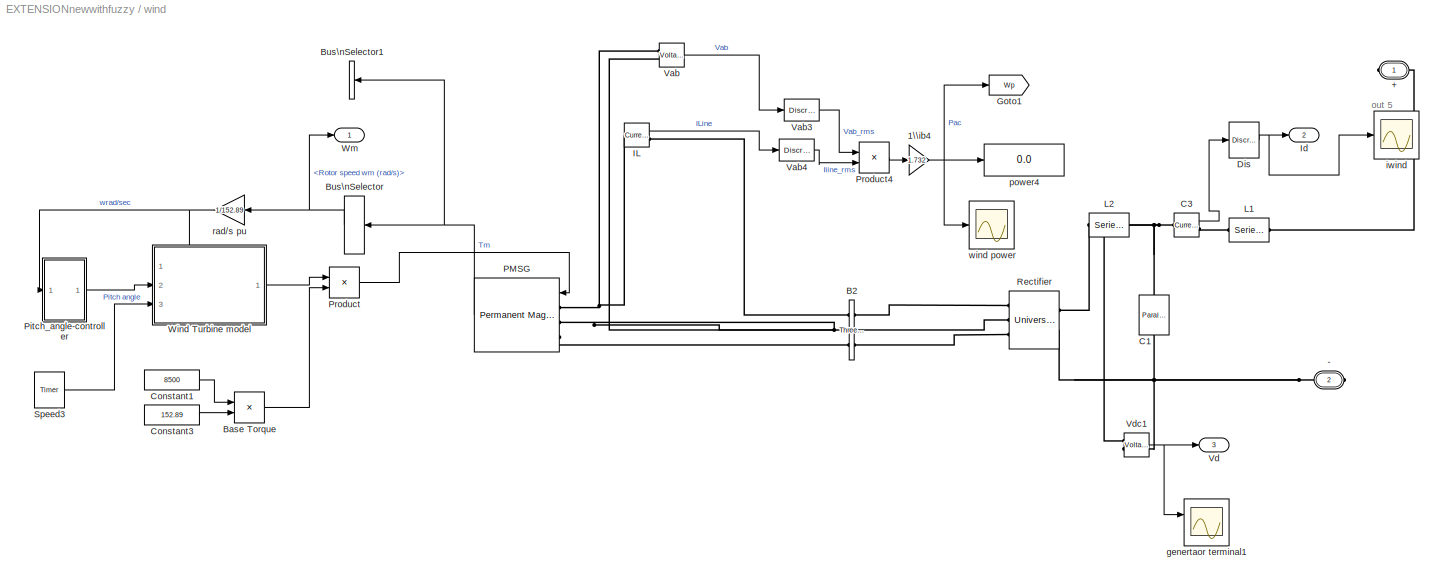
BLOCK [SubSystem] wind
  Ports = [0, 3, 0, 0, 0, 0, 2]
  RequestExecContextInheritance = off
  SID = 334
BLOCK [PMIOPort] wind/+
  SID = 372
  Side = Right
  Tag = PMCPort
BLOCK [PMIOPort] wind/-
  Port = 2
  SID = 373
  Side = Right
  Tag = PMCPort
BLOCK [Gain] wind/1\\ib4
  Gain = 1.732
  SID = 335
BLOCK [Reference] wind/B2   REF=powerlib/Measurements/Three-Phase\nV-I Measurement
  CurrentMeasurement = no
  FunctionWithSeparateData = off
  Ipu = off
  LabelI = Iabc_B2
  LabelV = Vabc_B2
  OutputType = Magnitude
  PSBequivalent = 0
  Pbase = 100e6
  PhasorSimulation = off
  Ports = [0, 0, 0, 0, 0, 3, 3]
  RTWMemSecDataConstants = Inherit from model
  RTWMemSecDataInternal = Inherit from model
  RTWMemSecDataParameters = Inherit from model
  RTWMemSecFuncExecute = Inherit from model
  RTWMemSecFuncInitTerm = Inherit from model
  SID = 336
  SetLabelI = on
  SetLabelV = on
  ShowPortLabels = FromPortIcon
  SourceBlock = powerlib/Measurements/Three-Phase\nV-I Measurement
  SourceProductBaseCode = PS
  SourceProductName = Simscape Electrical
  SourceType = Three-Phase VI Measurement
  SystemSampleTime = -1
  Vbase = 500e3
  VoltageMeasurement = no
  Vpu = off
BLOCK [Product] wind/Base Torque
  InputSameDT = off
  Inputs = */
  OutDataTypeStr = Inherit: Inherit via internal rule
  Ports = [2, 1]
  SID = 337
  SaturateOnIntegerOverflow = off
BLOCK [BusSelector] wind/Bus\nSelector
  OutputAsBus = off
  OutputSignals = Rotor speed wm (rad/s)
  Ports = [1, 1]
  SID = 338
BLOCK [BusSelector] wind/Bus\nSelector1
  OutputAsBus = off
  OutputSignals = Rotor speed wm (rad/s)
  Ports = [1, 1]
  SID = 377
BLOCK [Reference] wind/C1  REF=powerlib/Elements/Parallel RLC Branch
  AttributesFormatString = \\n
  BranchType = C
  Capacitance = 1000e-06
  Inductance = 1.0
  InitialCurrent = 0
  InitialVoltage = 650
  LConnTagsString = a
  LeftPortType = p1
  Measurements = None
  PhysicalDomain = powersysdomain
  Ports = [0, 0, 0, 0, 0, 1, 1]
  RConnTagsString = __new0
  Resistance = 1.0
  RightPortType = p1
  SID = 339
  SetiL0 = off
  Setx0 = off
  SourceBlock = powerlib/Elements/Parallel RLC Branch
  SourceProductBaseCode = PS
  SourceProductName = Simscape Electrical
  SourceType = Parallel RLC Branch
  SubClassName = unknown
BLOCK [Reference] wind/C3  REF=powerlib/Measurements/Current Measurement
  FunctionWithSeparateData = off
  OutputType = Complex
  PSBequivalent = 0
  PhasorSimulation = off
  Ports = [0, 1, 0, 0, 0, 1, 1]
  RTWMemSecDataConstants = Inherit from model
  RTWMemSecDataInternal = Inherit from model
  RTWMemSecDataParameters = Inherit from model
  RTWMemSecFuncExecute = Inherit from model
  RTWMemSecFuncInitTerm = Inherit from model
  SID = 340
  ShowPortLabels = FromPortIcon
  SourceBlock = powerlib/Measurements/Current Measurement
  SourceProductBaseCode = PS
  SourceProductName = Simscape Electrical
  SourceType = Current Measurement
  SystemSampleTime = -1
BLOCK [Constant] wind/Constant1
  SID = 341
  Value = 8500
BLOCK [Constant] wind/Constant3
  SID = 342
  Value = 152.89
BLOCK [Reference] wind/Dis  REF=powerlib_extras/Discrete \nControl Blocks/Discrete\n1st-Order\nFilter
  FilterType = Lowpass
  FunctionWithSeparateData = off
  Initialize = off
  PlotResponse = off
  Ports = [1, 1]
  RTWMemSecDataConstants = Inherit from model
  RTWMemSecDataInternal = Inherit from model
  RTWMemSecDataParameters = Inherit from model
  RTWMemSecFuncExecute = Inherit from model
  RTWMemSecFuncInitTerm = Inherit from model
  SID = 343
  ShowPortLabels = FromPortIcon
  SourceBlock = powerlib_extras/Discrete \nControl Blocks/Discrete\n1st-Order\nFilter
  SourceProductBaseCode = PS
  SourceProductName = Simscape Electrical
  SourceType = Discrete 1st-Order Filter
  SystemSampleTime = -1
  Tc = 100e-3
  Ts = 20e-6
  Vac_Init = [0.8 -25 60]
  Vdc_Init = -0.4
  param1 = [1 500 0.1]
BLOCK [Goto] wind/Goto1
  GotoTag = Wp
  SID = 344
  TagVisibility = global
BLOCK [Reference] wind/IL  REF=powerlib/Measurements/Current Measurement
  FunctionWithSeparateData = off
  OutputType = Complex
  PSBequivalent = 0
  PhasorSimulation = off
  Ports = [0, 1, 0, 0, 0, 1, 1]
  RTWMemSecDataConstants = Inherit from model
  RTWMemSecDataInternal = Inherit from model
  RTWMemSecDataParameters = Inherit from model
  RTWMemSecFuncExecute = Inherit from model
  RTWMemSecFuncInitTerm = Inherit from model
  SID = 345
  ShowPortLabels = FromPortIcon
  SourceBlock = powerlib/Measurements/Current Measurement
  SourceProductBaseCode = PS
  SourceProductName = Simscape Electrical
  SourceType = Current Measurement
  SystemSampleTime = -1
BLOCK [Outport] wind/Id
  IconDisplay = Port number
  Port = 2
  SID = 375
BLOCK [Reference] wind/L1  REF=powerlib/Elements/Series RLC Branch
  AttributesFormatString = \\n
  BranchType = L
  Capacitance = 1.0
  Inductance = 2e-3
  InitialCurrent = 0
  InitialVoltage = 0
  LConnTagsString = __new0
  LeftPortType = p1
  Measurements = None
  PhysicalDomain = powersysdomain
  Ports = [0, 0, 0, 0, 0, 1, 1]
  RConnTagsString = __new0
  Resistance = 1.0
  RightPortType = p1
  SID = 346
  SetiL0 = off
  Setx0 = off
  SourceBlock = powerlib/Elements/Series RLC Branch
  SourceProductBaseCode = PS
  SourceProductName = Simscape Electrical
  SourceType = Series RLC Branch
  SubClassName = unknown
BLOCK [Reference] wind/L2  REF=powerlib/Elements/Series RLC Branch
  AttributesFormatString = \\n
  BranchType = L
  Capacitance = 1.0
  Inductance = 2e-3
  InitialCurrent = 0
  InitialVoltage = 0
  LConnTagsString = __new0
  LeftPortType = p1
  Measurements = None
  PhysicalDomain = powersysdomain
  Ports = [0, 0, 0, 0, 0, 1, 1]
  RConnTagsString = __new0
  Resistance = 1.0
  RightPortType = p1
  SID = 347
  SetiL0 = off
  Setx0 = off
  SourceBlock = powerlib/Elements/Series RLC Branch
  SourceProductBaseCode = PS
  SourceProductName = Simscape Electrical
  SourceType = Series RLC Branch
  SubClassName = unknown
BLOCK [Reference] wind/PMSG  REF=powerlib/Machines/Permanent Magnet\nSynchronous Machine
  Flat = 120
  Flux = 0.433
  FluxDistribution = Sinusoidal
  FunctionWithSeparateData = off
  Inductance = 8.5e-3
  InitialConditions = [0,0, 0,0]
  MachineConstant = Flux linkage established by magnets (V.s)
  Mechanical = [0.01197 0.001189 5]
  MechanicalLoad = Torque Tm
  PolePairs = 5
  Ports = [1, 1, 0, 0, 0, 3]
  PresetModel = No
  RTWMemSecDataConstants = Inherit from model
  RTWMemSecDataInternal = Inherit from model
  RTWMemSecDataParameters = Inherit from model
  RTWMemSecFuncExecute = Inherit from model
  RTWMemSecFuncInitTerm = Inherit from model
  Resistance = 0.425
  SID = 348
  ShowDetailedParameters = on
  ShowPortLabels = FromPortIcon
  SourceBlock = powerlib/Machines/Permanent Magnet\nSynchronous Machine
  SourceProductBaseCode = PS
  SourceProductName = Simscape Electrical
  SourceType = Permanent Magnet Synchronous Machine
  SystemSampleTime = -1
  TorqueCst = 3.2475
  TsBlock = -1
  TsPowergui = 0
  VoltageCst = 392.6876
  dqInductances = [0.0082 0.0082]
BLOCK [SubSystem] wind/Pitch_angle-controller
  Ports = [1, 1]
  RequestExecContextInheritance = off
  SID = 349
BLOCK [Saturate] wind/Pitch_angle-controller/0-pitch_max
  InputPortMap = u0
  LowerLimit = 0
  Ports = [1, 1]
  SID = 351
  UpperLimit = 45
BLOCK [Constant] wind/Pitch_angle-controller/Constant2
  SID = 352
  Value = 2
BLOCK [Outport] wind/Pitch_angle-controller/Pitch_angle
  IconDisplay = Port number
  SID = 357
BLOCK [RateLimiter] wind/Pitch_angle-controller/Rate Limiter   
  FallingSlewLimit = -2
  RisingSlewLimit = 2
  SID = 353
BLOCK [Sum] wind/Pitch_angle-controller/Sum
  IconShape = round
  InputSameDT = off
  Inputs = |+-
  OutDataTypeStr = Inherit: Inherit via internal rule
  Ports = [2, 1]
  SID = 354
BLOCK [Scope] wind/Pitch_angle-controller/genertaor terminal6
  Floating = off
  NumInputPorts = 2
  Ports = [2]
  SID = 355
  ScopeSpecificationString = C++SS(StrPVP('Location','[483, 142, 1009, 421]'),StrPVP('Open','off'),MxPVP('AxesTitles',54,'struct(''axes1'',''%<SignalLabel>'',''axes2'',''%<SignalLabel>'')'),StrPVP('YMin','452~12.825'),StrPVP('YMax','465~13.1'),StrPVP('SaveToWorkspace','on'),StrPVP('SaveName','ScopeData9'),StrPVP('DataFormat','StructureWithTime'),StrPVP('LimitDataPoints','off'),StrPVP('BlockParamSampleInput','on'),StrPVP('Bloc...<+53ch>
BLOCK [Gain] wind/Pitch_angle-controller/pitch_gain
  Gain = 500
  SID = 356
BLOCK [Inport] wind/Pitch_angle-controller/wr
  IconDisplay = Port number
  SID = 350
BLOCK [Product] wind/Product
  InputSameDT = off
  OutDataTypeStr = Inherit: Inherit via internal rule
  Ports = [2, 1]
  SID = 358
  SaturateOnIntegerOverflow = off
BLOCK [Product] wind/Product4
  InputSameDT = off
  OutDataTypeStr = Inherit: Inherit via internal rule
  Ports = [2, 1]
  SID = 359
  SaturateOnIntegerOverflow = off
BLOCK [Reference] wind/Rectifier  REF=powerlib/Power\nElectronics/Universal Bridge
  Arms = 3
  AttributesFormatString = \\n
  Device = Diodes
  ForwardVoltage = .8
  ForwardVoltages = [  0.8  0.8  ]
  FunctionWithSeparateData = off
  GTOparameters = [ 10e-6 , 20e-6 ]
  IGBTparameters = [ 1e-6 , 2e-6 ]
  Lon = 0
  Measurements = Device currents
  Measurements_2 = None
  Ports = [0, 0, 0, 0, 0, 3, 2]
  RTWMemSecDataConstants = Inherit from model
  RTWMemSecDataInternal = Inherit from model
  RTWMemSecDataParameters = Inherit from model
  RTWMemSecFuncExecute = Inherit from model
  RTWMemSecFuncInitTerm = Inherit from model
  Ron = 1e-3
  SID = 360
  ShowPortLabels = FromPortIcon
  SnubberCapacitance = 0.1e-6
  SnubberResistance = 100
  SourceBlock = powerlib/Power\nElectronics/Universal Bridge
  SourceProductBaseCode = PS
  SourceProductName = Simscape Electrical
  SourceType = Universal Bridge
  SystemSampleTime = -1
  converterType = Rectifier
BLOCK [Reference] wind/Speed3  REF=powerlib_extras/Control \nBlocks/Timer
  FunctionWithSeparateData = off
  Ports = [0, 1]
  RTWMemSecDataConstants = Inherit from model
  RTWMemSecDataInternal = Inherit from model
  RTWMemSecDataParameters = Inherit from model
  RTWMemSecFuncExecute = Inherit from model
  RTWMemSecFuncInitTerm = Inherit from model
  SID = 361
  ShowPortLabels = FromPortIcon
  SourceBlock = powerlib_extras/Control \nBlocks/Timer
  SourceProductBaseCode = PS
  SourceProductName = Simscape Electrical
  SourceType = Timer
  SystemSampleTime = -1
  e = [5 12 9]
  t = [0 .5 3]
BLOCK [Reference] wind/Vab  REF=powerlib/Measurements/Voltage Measurement
  FunctionWithSeparateData = off
  OutputType = Complex
  PSBequivalent = 0
  PhasorSimulation = off
  Ports = [0, 1, 0, 0, 0, 2]
  RTWMemSecDataConstants = Inherit from model
  RTWMemSecDataInternal = Inherit from model
  RTWMemSecDataParameters = Inherit from model
  RTWMemSecFuncExecute = Inherit from model
  RTWMemSecFuncInitTerm = Inherit from model
  SID = 362
  ShowPortLabels = FromPortIcon
  SourceBlock = powerlib/Measurements/Voltage Measurement
  SourceProductBaseCode = PS
  SourceProductName = Simscape Electrical
  SourceType = Voltage Measurement
  SystemSampleTime = -1
BLOCK [Reference] wind/Vab3  REF=powerlib_extras/Discrete\nMeasurements/Discrete \nRMS value
  Freq = 50
  FunctionWithSeparateData = off
  Mag_Init = 0
  Ports = [1, 1]
  RTWMemSecDataConstants = Inherit from model
  RTWMemSecDataInternal = Inherit from model
  RTWMemSecDataParameters = Inherit from model
  RTWMemSecFuncExecute = Inherit from model
  RTWMemSecFuncInitTerm = Inherit from model
  SID = 363
  ShowPortLabels = FromPortIcon
  SourceBlock = powerlib_extras/Discrete\nMeasurements/Discrete \nRMS value
  SourceProductBaseCode = PS
  SourceProductName = Simscape Electrical
  SourceType = Discrete RMS value
  SystemSampleTime = -1
  Ts = 20e-6
BLOCK [Reference] wind/Vab4  REF=powerlib_extras/Discrete\nMeasurements/Discrete \nRMS value
  Freq = 50
  FunctionWithSeparateData = off
  Mag_Init = 0
  Ports = [1, 1]
  RTWMemSecDataConstants = Inherit from model
  RTWMemSecDataInternal = Inherit from model
  RTWMemSecDataParameters = Inherit from model
  RTWMemSecFuncExecute = Inherit from model
  RTWMemSecFuncInitTerm = Inherit from model
  SID = 364
  ShowPortLabels = FromPortIcon
  SourceBlock = powerlib_extras/Discrete\nMeasurements/Discrete \nRMS value
  SourceProductBaseCode = PS
  SourceProductName = Simscape Electrical
  SourceType = Discrete RMS value
  SystemSampleTime = -1
  Ts = 20e-6
BLOCK [Outport] wind/Vd
  IconDisplay = Port number
  Port = 3
  SID = 376
BLOCK [Reference] wind/Vdc1  REF=powerlib/Measurements/Voltage Measurement
  AttributesFormatString = \\n
  FunctionWithSeparateData = off
  OutputType = Magnitude
  PSBequivalent = 0
  PhasorSimulation = off
  Ports = [0, 1, 0, 0, 0, 2]
  RTWMemSecDataConstants = Inherit from model
  RTWMemSecDataInternal = Inherit from model
  RTWMemSecDataParameters = Inherit from model
  RTWMemSecFuncExecute = Inherit from model
  RTWMemSecFuncInitTerm = Inherit from model
  SID = 365
  ShowPortLabels = FromPortIcon
  SourceBlock = powerlib/Measurements/Voltage Measurement
  SourceProductBaseCode = PS
  SourceProductName = Simscape Electrical
  SourceType = Voltage Measurement
  SystemSampleTime = -1
  Tag = PoWeRsYsTeMmEaSuReMeNt
BLOCK [SubSystem] wind/Wind Turbine model
  AncestorBlock = DRlib/Wind Generation/Wind Turbine
  DialogController = POWERSYS.PowerSysDialog
  Ports = [3, 1]
  RequestExecContextInheritance = off
  SID = 366
BLOCK [Gain] wind/Wind Turbine model/1//cp_nom
  Gain = 1/cp_nom
  SID = 366:4
BLOCK [Gain] wind/Wind Turbine model/1//wind_base
  Gain = 1/wind_base
  SID = 366:5
BLOCK [Saturate] wind/Wind Turbine model/Avoid division\nby zero
  InputPortMap = u0
  LowerLimit = 1e-6
  Ports = [1, 1]
  SID = 366:6
  UpperLimit = 1e6
BLOCK [Saturate] wind/Wind Turbine model/Avoid division\nby zero 
  InputPortMap = u0
  LowerLimit = 1e-6
  Ports = [1, 1]
  SID = 366:7
  UpperLimit = 1e6
BLOCK [Gain] wind/Wind Turbine model/Gain
  Gain = -1
  SID = 366:8
BLOCK [Inport] wind/Wind Turbine model/Generator speed (pu)
  IconDisplay = Port number
  SID = 366:1
BLOCK [Inport] wind/Wind Turbine model/Pitch angle (deg)
  IconDisplay = Port number
  Port = 2
  SID = 366:2
BLOCK [Product] wind/Wind Turbine model/Product
  InputSameDT = off
  Inputs = /*
  Ports = [2, 1]
  RndMeth = Floor
  SID = 366:9
BLOCK [Product] wind/Wind Turbine model/Product 
  InputSameDT = off
  Ports = [2, 1]
  RndMeth = Floor
  SID = 366:10
BLOCK [Product] wind/Wind Turbine model/Product2
  Inputs = */
  Ports = [2, 1]
  RndMeth = Floor
  SID = 366:11
BLOCK [Saturate] wind/Wind Turbine model/Saturation1
  InputPortMap = u0
  LowerLimit = 1e-6
  Ports = [1, 1]
  SID = 366:12
  UpperLimit = inf
BLOCK [Scope] wind/Wind Turbine model/Scope
  Floating = off
  NumInputPorts = 1
  Ports = [1]
  SID = 366:13
  ScopeSpecificationString = C++SS(StrPVP('Location','[188, 390, 512, 629]'),StrPVP('Open','off'),MxPVP('AxesTitles',54,'struct(''axes1'',''%<SignalLabel>'')'),StrPVP('SaveName','ScopeData10'),StrPVP('DataFormat','StructureWithTime'),StrPVP('BlockParamSampleTime','0'),StrPVP('LimitDataPoints','on'),StrPVP('Decimation','1'),StrPVP('BlockParamSampleInput','off'))
BLOCK [Outport] wind/Wind Turbine model/Tm (pu)
  IconDisplay = Port number
  SID = 366:26
BLOCK [Inport] wind/Wind Turbine model/Wind speed\n(m//s)
  IconDisplay = Port number
  Port = 3
  SID = 366:3
BLOCK [SubSystem] wind/Wind Turbine model/cp(lambda,beta)
  Ports = [2, 1]
  RequestExecContextInheritance = off
  SID = 366:14
BLOCK [Fcn] wind/Wind Turbine model/cp(lambda,beta)/Fcn
  Expr = 1/(1/(u[1]+0.08*u[2])-0.035/(u[2]^3+1))
  SID = 366:17
BLOCK [Fcn] wind/Wind Turbine model/cp(lambda,beta)/Fcn1
  Expr = c1*(c2/u[2]-c3*u[3]-c4)*exp(-c5/u[2])+c6*u[1]
  SID = 366:18
BLOCK [Mux] wind/Wind Turbine model/cp(lambda,beta)/Mux
  DisplayOption = bar
  Inputs = 2
  Ports = [2, 1]
  SID = 366:19
BLOCK [Mux] wind/Wind Turbine model/cp(lambda,beta)/Mux1
  DisplayOption = bar
  Inputs = 3
  Ports = [3, 1]
  SID = 366:20
BLOCK [Inport] wind/Wind Turbine model/cp(lambda,beta)/beta
  IconDisplay = Port number
  Port = 2
  SID = 366:16
BLOCK [Outport] wind/Wind Turbine model/cp(lambda,beta)/cp
  IconDisplay = Port number
  SID = 366:21
BLOCK [Inport] wind/Wind Turbine model/cp(lambda,beta)/lambda
  IconDisplay = Port number
  SID = 366:15
BLOCK [Gain] wind/Wind Turbine model/lambda_nom
  Gain = lambda_nom
  SID = 366:22
BLOCK [Gain] wind/Wind Turbine model/pu->pu
  Gain = P_wind_base*Pnom/Pelec_base
  SID = 366:23
BLOCK [Gain] wind/Wind Turbine model/pu->pu 
  Gain = 1/speed_nom
  SID = 366:24
BLOCK [Fcn] wind/Wind Turbine model/wind_speed^3
  Expr = u(1)^3
  SID = 366:25
BLOCK [Outport] wind/Wm
  IconDisplay = Port number
  SID = 374
BLOCK [Scope] wind/genertaor terminal1
  Floating = off
  NumInputPorts = 2
  Ports = [2]
  SID = 367
  ScopeSpecificationString = C++SS(StrPVP('Location','[301, 338, 827, 617]'),StrPVP('Open','off'),MxPVP('AxesTitles',54,'struct(''axes1'',''%<SignalLabel>'',''axes2'',''%<SignalLabel>'')'),StrPVP('YMin','-1~-1'),StrPVP('YMax','1~1'),StrPVP('SaveToWorkspace','on'),StrPVP('SaveName','ScopeData54'),StrPVP('DataFormat','StructureWithTime'),StrPVP('LimitDataPoints','off'),StrPVP('BlockParamSampleInput','on'),StrPVP('BlockParamSamp...<+43ch>
BLOCK [Scope] wind/iwind
  Floating = off
  NumInputPorts = 1
  Ports = [1]
  SID = 368
  ScopeSpecificationString = C++SS(StrPVP('Location','[17, 78, 1019, 671]'),StrPVP('Open','off'),MxPVP('AxesTitles',54,'struct(''axes1'',''%<SignalLabel>'')'),StrPVP('YMin','-0.25'),StrPVP('YMax','4.5'),StrPVP('SaveToWorkspace','on'),StrPVP('SaveName','ScopeData15'),StrPVP('DataFormat','StructureWithTime'),StrPVP('LimitDataPoints','off'),StrPVP('BlockParamSampleInput','on'),StrPVP('BlockParamSampleTime','100e-6'),StrPVP('Deci...<+13ch>
BLOCK [Display] wind/power4
  Decimation = 1
  Ports = [1]
  SID = 369
  SampleTime = 1e-3
BLOCK [Gain] wind/rad//s pu
  Gain = 1/152.89
  SID = 370
BLOCK [Scope] wind/wind power
  Floating = off
  NumInputPorts = 1
  Ports = [1]
  SID = 371
  ScopeSpecificationString = C++SS(StrPVP('Location','[17, 78, 1019, 671]'),StrPVP('Open','off'),MxPVP('AxesTitles',54,'struct(''axes1'',''%<SignalLabel>'')'),StrPVP('YMin','-0.25'),StrPVP('YMax','4.5'),StrPVP('SaveToWorkspace','on'),StrPVP('DataFormat','StructureWithTime'),StrPVP('LimitDataPoints','off'),StrPVP('BlockParamSampleInput','on'),StrPVP('BlockParamSampleTime','100e-6'),StrPVP('Decimation','1'))
ANNOTATION Battery//electrolyzer\n controller/Ramp_generator: Carrier Freq
ANNOTATION Control of\n Inverter: Control of Inverter
ANNOTATION Control of\n Inverter/Discrete\nPWM Generator1: PWM Generator
ANNOTATION Control of\n Inverter/Discrete\nPWM Generator1: Pierre Giroux, Gilbert Sybille\nPower System Laboratory, IREQ\nHydro-Quebec
ANNOTATION pv: boost
ANNOTATION wind: out 5
LINE 3-phase \nInstantaneous \nActive & Reactive Power:1 -> Discrete \nMean value2:1
LINE Battery and DC-DC converter/200 volts, 6.5 Ah\n Ni-MH battery :1 -> Battery and DC-DC converter/Bus\nSelector1:1
NET Battery and DC-DC converter/3:1 -> Battery and DC-DC converter/Product6:1, Battery and DC-DC converter/Scope5:2
NET Battery and DC-DC converter/Bus\nSelector1:1 -> Battery and DC-DC converter/Product6:2, Battery and DC-DC converter/Scope4:1, Battery and DC-DC converter/Scope5:1
NET Battery and DC-DC converter/Bus\nSelector1:2 -> Battery and DC-DC converter/SOC:1, Battery and DC-DC converter/Scope4:2
LINE Battery and DC-DC converter/Bus\nSelector1:3 -> Battery and DC-DC converter/3:1
LINE Battery and DC-DC converter/IL6:1 -> Battery and DC-DC converter/Ibat:1
LINE Battery and DC-DC converter/Product6:1 -> Battery and DC-DC converter/Bp:1
LINE Battery and DC-DC converter/S1:1 -> Battery and DC-DC converter/Q2:1
LINE Battery and DC-DC converter/S2:1 -> Battery and DC-DC converter/Q1:1
LINE Battery and DC-DC converter:1 -> Battery//electrolyzer\n controller:3
LINE Battery and DC-DC converter:2 -> Battery//electrolyzer\n controller:2
LINE Battery and DC-DC converter:3 -> Goto:1
LINE Battery//electrolyzer\n controller/Constant1:1 -> Battery//electrolyzer\n controller/Relational\nOperator1:2
LINE Battery//electrolyzer\n controller/Constant3:1 -> Battery//electrolyzer\n controller/Sum2:2
LINE Battery//electrolyzer\n controller/Constant4:1 -> Battery//electrolyzer\n controller/Relational\nOperator3:2
LINE Battery//electrolyzer\n controller/Constant:1 -> Battery//electrolyzer\n controller/Sum:1
NET Battery//electrolyzer\n controller/Data Type \nConversion:1 -> Battery//electrolyzer\n controller/Logical\nOperator3:1, Battery//electrolyzer\n controller/S1:1, Battery//electrolyzer\n controller/Scope4:2, Battery//electrolyzer\n controller/Scope8:2, Battery//electrolyzer\n controller/Scope8:3
LINE Battery//electrolyzer\n controller/Discrete\nPI Controller/Discrete-Time\nIntegrator:1 -> Battery//electrolyzer\n controller/Discrete\nPI Controller/Sum6:2
NET Battery//electrolyzer\n controller/Discrete\nPI Controller/Error:1 -> Battery//electrolyzer\n controller/Discrete\nPI Controller/Kp4:1, Battery//electrolyzer\n controller/Discrete\nPI Controller/Kp5:1
LINE Battery//electrolyzer\n controller/Discrete\nPI Controller/Kp4:1 -> Battery//electrolyzer\n controller/Discrete\nPI Controller/Sum6:1
LINE Battery//electrolyzer\n controller/Discrete\nPI Controller/Kp5:1 -> Battery//electrolyzer\n controller/Discrete\nPI Controller/Discrete-Time\nIntegrator:1
LINE Battery//electrolyzer\n controller/Discrete\nPI Controller/Saturation2:1 -> Battery//electrolyzer\n controller/Discrete\nPI Controller/Out:1
LINE Battery//electrolyzer\n controller/Discrete\nPI Controller/Sum6:1 -> Battery//electrolyzer\n controller/Discrete\nPI Controller/Saturation2:1
LINE Battery//electrolyzer\n controller/Discrete\nPI Controller1/Discrete-Time\nIntegrator:1 -> Battery//electrolyzer\n controller/Discrete\nPI Controller1/Sum6:2
NET Battery//electrolyzer\n controller/Discrete\nPI Controller1/Error:1 -> Battery//electrolyzer\n controller/Discrete\nPI Controller1/Kp4:1, Battery//electrolyzer\n controller/Discrete\nPI Controller1/Kp5:1
LINE Battery//electrolyzer\n controller/Discrete\nPI Controller1/Kp4:1 -> Battery//electrolyzer\n controller/Discrete\nPI Controller1/Sum6:1
LINE Battery//electrolyzer\n controller/Discrete\nPI Controller1/Kp5:1 -> Battery//electrolyzer\n controller/Discrete\nPI Controller1/Discrete-Time\nIntegrator:1
LINE Battery//electrolyzer\n controller/Discrete\nPI Controller1/Saturation2:1 -> Battery//electrolyzer\n controller/Discrete\nPI Controller1/Out:1
LINE Battery//electrolyzer\n controller/Discrete\nPI Controller1/Sum6:1 -> Battery//electrolyzer\n controller/Discrete\nPI Controller1/Saturation2:1
NET Battery//electrolyzer\n controller/Discrete\nPI Controller1:1 -> Battery//electrolyzer\n controller/Mux4:1, Battery//electrolyzer\n controller/Relational\nOperator:1
NET Battery//electrolyzer\n controller/Discrete\nPI Controller:1 -> Battery//electrolyzer\n controller/Scope8:1, Battery//electrolyzer\n controller/Sum1:1
LINE Battery//electrolyzer\n controller/Gain1:1 -> Battery//electrolyzer\n controller/Relational\nOperator1:1
NET Battery//electrolyzer\n controller/Gain2:1 -> Battery//electrolyzer\n controller/Relational\nOperator3:1, Battery//electrolyzer\n controller/plot1:2
LINE Battery//electrolyzer\n controller/Gain:1 -> Battery//electrolyzer\n controller/Sum2:1
LINE Battery//electrolyzer\n controller/Ibat:1 -> Battery//electrolyzer\n controller/Sum1:2
NET Battery//electrolyzer\n controller/Logical\nOperator2:1 -> Battery//electrolyzer\n controller/Gate:1, Battery//electrolyzer\n controller/Scope5:4
LINE Battery//electrolyzer\n controller/Logical\nOperator3:1 -> Battery//electrolyzer\n controller/Product2:1
LINE Battery//electrolyzer\n controller/Mux4:1 -> Battery//electrolyzer\n controller/Scope5:1
NET Battery//electrolyzer\n controller/Product2:1 -> Battery//electrolyzer\n controller/S2:1, Battery//electrolyzer\n controller/Scope4:1, Battery//electrolyzer\n controller/Scope7:1
LINE Battery//electrolyzer\n controller/Ramp_generator/Constant3:1 -> Battery//electrolyzer\n controller/Ramp_generator/Relational\nOperator1:2
NET Battery//electrolyzer\n controller/Ramp_generator/Discrete-Time\nIntegrator1:1 -> Battery//electrolyzer\n controller/Ramp_generator/Relational\nOperator1:1, Battery//electrolyzer\n controller/Ramp_generator/ramp_out:1
LINE Battery//electrolyzer\n controller/Ramp_generator/Relational\nOperator1:1 -> Battery//electrolyzer\n controller/Ramp_generator/Unit Delay1:1
LINE Battery//electrolyzer\n controller/Ramp_generator/Unit Delay1:1 -> Battery//electrolyzer\n controller/Ramp_generator/Discrete-Time\nIntegrator1:2
LINE Battery//electrolyzer\n controller/Ramp_generator/fc:1 -> Battery//electrolyzer\n controller/Ramp_generator/Discrete-Time\nIntegrator1:1
NET Battery//electrolyzer\n controller/Ramp_generator:1 -> Battery//electrolyzer\n controller/Mux4:2, Battery//electrolyzer\n controller/Relational\nOperator:2
LINE Battery//electrolyzer\n controller/Relational\nOperator1:1 -> Battery//electrolyzer\n controller/Product2:2
NET Battery//electrolyzer\n controller/Relational\nOperator3:1 -> Battery//electrolyzer\n controller/Logical\nOperator2:2, Battery//electrolyzer\n controller/plot1:1
NET Battery//electrolyzer\n controller/Relational\nOperator:1 -> Battery//electrolyzer\n controller/Logical\nOperator2:1, Battery//electrolyzer\n controller/Scope5:2
LINE Battery//electrolyzer\n controller/Relay:1 -> Battery//electrolyzer\n controller/Data Type \nConversion:1
NET Battery//electrolyzer\n controller/SOC:1 -> Battery//electrolyzer\n controller/Gain1:1, Battery//electrolyzer\n controller/Gain2:1
NET Battery//electrolyzer\n controller/Sum1:1 -> Battery//electrolyzer\n controller/Relay:1, Battery//electrolyzer\n controller/Scope2:1
NET Battery//electrolyzer\n controller/Sum2:1 -> Battery//electrolyzer\n controller/Discrete\nPI Controller1:1, Battery//electrolyzer\n controller/Scope5:3
LINE Battery//electrolyzer\n controller/Sum:1 -> Battery//electrolyzer\n controller/Discrete\nPI Controller:1
NET Battery//electrolyzer\n controller/Vdc:1 -> Battery//electrolyzer\n controller/Gain:1, Battery//electrolyzer\n controller/Sum:2
LINE Battery//electrolyzer\n controller:1 -> Battery and DC-DC converter:2
LINE Battery//electrolyzer\n controller:2 -> Battery and DC-DC converter:1
LINE Battery//electrolyzer\n controller:3 -> IGBT2:1
LINE Bus\nCreator1:1 -> out 2:1
LINE Bus\nCreator2:1 -> out 1:1
LINE Control of\n Inverter/Discrete\nPWM Generator1/BL4:1 -> Control of\n Inverter/Discrete\nPWM Generator1/Mux:2
LINE Control of\n Inverter/Discrete\nPWM Generator1/BL5:1 -> Control of\n Inverter/Discrete\nPWM Generator1/Mux1:2
LINE Control of\n Inverter/Discrete\nPWM Generator1/Constant:1 -> Control of\n Inverter/Discrete\nPWM Generator1/Sum:3
NET Control of\n Inverter/Discrete\nPWM Generator1/Data Type \nConversion1:1 -> Control of\n Inverter/Discrete\nPWM Generator1/BL4:1, Control of\n Inverter/Discrete\nPWM Generator1/Mux:1
NET Control of\n Inverter/Discrete\nPWM Generator1/Data Type \nConversion2:1 -> Control of\n Inverter/Discrete\nPWM Generator1/BL5:1, Control of\n Inverter/Discrete\nPWM Generator1/Mux1:1
LINE Control of\n Inverter/Discrete\nPWM Generator1/Data Type \nConversion:1 -> Control of\n Inverter/Discrete\nPWM Generator1/Pulses:1
LINE Control of\n Inverter/Discrete\nPWM Generator1/Gain2:1 -> Control of\n Inverter/Discrete\nPWM Generator1/Sum:2
LINE Control of\n Inverter/Discrete\nPWM Generator1/Gain3:1 -> Control of\n Inverter/Discrete\nPWM Generator1/Relational\nOperator1:1
LINE Control of\n Inverter/Discrete\nPWM Generator1/Gain:1 -> Control of\n Inverter/Discrete\nPWM Generator1/Sum:1
LINE Control of\n Inverter/Discrete\nPWM Generator1/Mux1:1 -> Control of\n Inverter/Discrete\nPWM Generator1/Select1B:1
LINE Control of\n Inverter/Discrete\nPWM Generator1/Mux2:1 -> Control of\n Inverter/Discrete\nPWM Generator1/Select3:1
LINE Control of\n Inverter/Discrete\nPWM Generator1/Mux:1 -> Control of\n Inverter/Discrete\nPWM Generator1/Select1A:1
LINE Control of\n Inverter/Discrete\nPWM Generator1/Relational\nOperator1:1 -> Control of\n Inverter/Discrete\nPWM Generator1/Data Type \nConversion2:1
LINE Control of\n Inverter/Discrete\nPWM Generator1/Relational\nOperator:1 -> Control of\n Inverter/Discrete\nPWM Generator1/Data Type \nConversion1:1
LINE Control of\n Inverter/Discrete\nPWM Generator1/Select1A:1 -> Control of\n Inverter/Discrete\nPWM Generator1/Mux2:1
LINE Control of\n Inverter/Discrete\nPWM Generator1/Select1B:1 -> Control of\n Inverter/Discrete\nPWM Generator1/Mux2:2
LINE Control of\n Inverter/Discrete\nPWM Generator1/Select3:1 -> Control of\n Inverter/Discrete\nPWM Generator1/Data Type \nConversion:1
LINE Control of\n Inverter/Discrete\nPWM Generator1/Sum:1 -> Control of\n Inverter/Discrete\nPWM Generator1/Trigonometric\nFunction:1
NET Control of\n Inverter/Discrete\nPWM Generator1/Triangle:1 -> Control of\n Inverter/Discrete\nPWM Generator1/Relational\nOperator1:2, Control of\n Inverter/Discrete\nPWM Generator1/Relational\nOperator:2
LINE Control of\n Inverter/Discrete\nPWM Generator1/Trigonometric\nFunction:1 -> Control of\n Inverter/Discrete\nPWM Generator1/Product:2
NET Control of\n Inverter/Discrete\nPWM Generator1/Uref:1 -> Control of\n Inverter/Discrete\nPWM Generator1/Gain3:1, Control of\n Inverter/Discrete\nPWM Generator1/Relational\nOperator:1
LINE Control of\n Inverter/Discrete\nPWM Generator1/m3:1 -> Control of\n Inverter/Discrete\nPWM Generator1/Gain2:1
LINE Control of\n Inverter/Discrete\nPWM Generator1/m4:1 -> Control of\n Inverter/Discrete\nPWM Generator1/Product:1
LINE Control of\n Inverter/Discrete\nPWM Generator1/t:1 -> Control of\n Inverter/Discrete\nPWM Generator1/Gain:1
LINE Control of\n Inverter/Discrete\nPWM Generator1:1 -> Control of\n Inverter/Unit Delay4:1
NET Control of\n Inverter/MI Controller/Constant1:1 -> Control of\n Inverter/MI Controller/Product4:2, Control of\n Inverter/MI Controller/Product5:2, Control of\n Inverter/MI Controller/Product6:2
NET Control of\n Inverter/MI Controller/Constant4:1 -> Control of\n Inverter/MI Controller/Sum1:2, Control of\n Inverter/MI Controller/Sum2:2, Control of\n Inverter/MI Controller/Sum3:2
LINE Control of\n Inverter/MI Controller/Demux:1 -> Control of\n Inverter/MI Controller/Vab6:1
LINE Control of\n Inverter/MI Controller/Demux:2 -> Control of\n Inverter/MI Controller/Vab5:1
LINE Control of\n Inverter/MI Controller/Demux:3 -> Control of\n Inverter/MI Controller/Vab1:1
LINE Control of\n Inverter/MI Controller/Discrete\nVirtual PLL\n50 Hz:2 -> Control of\n Inverter/MI Controller/Subsystem:1
LINE Control of\n Inverter/MI Controller/Mux2:1 -> Control of\n Inverter/MI Controller/Vabc_inv:1
LINE Control of\n Inverter/MI Controller/Mux3:1 -> Control of\n Inverter/MI Controller/Subsystem1:1
LINE Control of\n Inverter/MI Controller/Mux7:1 -> Control of\n Inverter/MI Controller/Powers11:1
LINE Control of\n Inverter/MI Controller/Product1:1 -> Control of\n Inverter/MI Controller/Mux2:2
LINE Control of\n Inverter/MI Controller/Product2:1 -> Control of\n Inverter/MI Controller/Mux2:3
LINE Control of\n Inverter/MI Controller/Product4:1 -> Control of\n Inverter/MI Controller/Sum1:1
LINE Control of\n Inverter/MI Controller/Product5:1 -> Control of\n Inverter/MI Controller/Sum2:1
LINE Control of\n Inverter/MI Controller/Product6:1 -> Control of\n Inverter/MI Controller/Sum3:1
LINE Control of\n Inverter/MI Controller/Product:1 -> Control of\n Inverter/MI Controller/Mux2:1
NET Control of\n Inverter/MI Controller/Subsystem/Demux:1 -> Control of\n Inverter/MI Controller/Subsystem/Mux2:1, Control of\n Inverter/MI Controller/Subsystem/Product2:1, Control of\n Inverter/MI Controller/Subsystem/Product:1, Control of\n Inverter/MI Controller/Subsystem/Sum2:2
NET Control of\n Inverter/MI Controller/Subsystem/Demux:2 -> Control of\n Inverter/MI Controller/Subsystem/Mux2:2, Control of\n Inverter/MI Controller/Subsystem/Product1:1, Control of\n Inverter/MI Controller/Subsystem/Product3:1, Control of\n Inverter/MI Controller/Subsystem/Sum3:2
LINE Control of\n Inverter/MI Controller/Subsystem/Fcn2:1 -> Control of\n Inverter/MI Controller/Subsystem/Va:1
LINE Control of\n Inverter/MI Controller/Subsystem/Fcn4:1 -> Control of\n Inverter/MI Controller/Subsystem/Vb:1
LINE Control of\n Inverter/MI Controller/Subsystem/Fcn5:1 -> Control of\n Inverter/MI Controller/Subsystem/Vc:1
NET Control of\n Inverter/MI Controller/Subsystem/K1:1 -> Control of\n Inverter/MI Controller/Subsystem/Product3:2, Control of\n Inverter/MI Controller/Subsystem/Product:2
NET Control of\n Inverter/MI Controller/Subsystem/K2:1 -> Control of\n Inverter/MI Controller/Subsystem/Product1:2, Control of\n Inverter/MI Controller/Subsystem/Product2:2
NET Control of\n Inverter/MI Controller/Subsystem/Mux2:1 -> Control of\n Inverter/MI Controller/Subsystem/Fcn2:1, Control of\n Inverter/MI Controller/Subsystem/Fcn4:1, Control of\n Inverter/MI Controller/Subsystem/Fcn5:1
LINE Control of\n Inverter/MI Controller/Subsystem/Product1:1 -> Control of\n Inverter/MI Controller/Subsystem/Sum:2
LINE Control of\n Inverter/MI Controller/Subsystem/Product2:1 -> Control of\n Inverter/MI Controller/Subsystem/Sum1:2
LINE Control of\n Inverter/MI Controller/Subsystem/Product3:1 -> Control of\n Inverter/MI Controller/Subsystem/Sum1:1
LINE Control of\n Inverter/MI Controller/Subsystem/Product:1 -> Control of\n Inverter/MI Controller/Subsystem/Sum:1
NET Control of\n Inverter/MI Controller/Subsystem/Sum1:1 -> Control of\n Inverter/MI Controller/Subsystem/Mux2:4, Control of\n Inverter/MI Controller/Subsystem/Sum3:1
LINE Control of\n Inverter/MI Controller/Subsystem/Sum2:1 -> Control of\n Inverter/MI Controller/Subsystem/Mux2:5
LINE Control of\n Inverter/MI Controller/Subsystem/Sum3:1 -> Control of\n Inverter/MI Controller/Subsystem/Mux2:6
NET Control of\n Inverter/MI Controller/Subsystem/Sum:1 -> Control of\n Inverter/MI Controller/Subsystem/Mux2:3, Control of\n Inverter/MI Controller/Subsystem/Sum2:1
LINE Control of\n Inverter/MI Controller/Subsystem/sin_cos:1 -> Control of\n Inverter/MI Controller/Subsystem/Demux:1
LINE Control of\n Inverter/MI Controller/Subsystem1/Demux1:1 -> Control of\n Inverter/MI Controller/Subsystem1/Out1:1
LINE Control of\n Inverter/MI Controller/Subsystem1/Demux1:2 -> Control of\n Inverter/MI Controller/Subsystem1/Out2:1
LINE Control of\n Inverter/MI Controller/Subsystem1/Demux1:3 -> Control of\n Inverter/MI Controller/Subsystem1/Out4:1
LINE Control of\n Inverter/MI Controller/Subsystem1/Demux2:1 -> Control of\n Inverter/MI Controller/Subsystem1/Mux1:1
LINE Control of\n Inverter/MI Controller/Subsystem1/Demux2:2 -> Control of\n Inverter/MI Controller/Subsystem1/Mux1:2
LINE Control of\n Inverter/MI Controller/Subsystem1/Demux2:3 -> Control of\n Inverter/MI Controller/Subsystem1/Out3:1
NET Control of\n Inverter/MI Controller/Subsystem1/Fuzzy Logic \nController:1 -> Control of\n Inverter/MI Controller/Subsystem1/Mux4:1, Control of\n Inverter/MI Controller/Subsystem1/Mux4:2, Control of\n Inverter/MI Controller/Subsystem1/Mux4:3
LINE Control of\n Inverter/MI Controller/Subsystem1/In1:1 -> Control of\n Inverter/MI Controller/Subsystem1/Demux2:1
LINE Control of\n Inverter/MI Controller/Subsystem1/Mux1:1 -> Control of\n Inverter/MI Controller/Subsystem1/Fuzzy Logic \nController:1
LINE Control of\n Inverter/MI Controller/Subsystem1/Mux4:1 -> Control of\n Inverter/MI Controller/Subsystem1/Demux1:1
LINE Control of\n Inverter/MI Controller/Subsystem1:1 -> Control of\n Inverter/MI Controller/Product:1
LINE Control of\n Inverter/MI Controller/Subsystem1:2 -> Control of\n Inverter/MI Controller/Product1:1
LINE Control of\n Inverter/MI Controller/Subsystem1:4 -> Control of\n Inverter/MI Controller/Product2:1
LINE Control of\n Inverter/MI Controller/Subsystem:1 -> Control of\n Inverter/MI Controller/Product:2
LINE Control of\n Inverter/MI Controller/Subsystem:2 -> Control of\n Inverter/MI Controller/Product1:2
LINE Control of\n Inverter/MI Controller/Subsystem:3 -> Control of\n Inverter/MI Controller/Product2:2
LINE Control of\n Inverter/MI Controller/Sum1:1 -> Control of\n Inverter/MI Controller/Mux3:1
LINE Control of\n Inverter/MI Controller/Sum2:1 -> Control of\n Inverter/MI Controller/Mux3:2
LINE Control of\n Inverter/MI Controller/Sum3:1 -> Control of\n Inverter/MI Controller/Mux3:3
NET Control of\n Inverter/MI Controller/Vab1:1 -> Control of\n Inverter/MI Controller/Mux7:3, Control of\n Inverter/MI Controller/Product6:1
NET Control of\n Inverter/MI Controller/Vab5:1 -> Control of\n Inverter/MI Controller/Mux7:2, Control of\n Inverter/MI Controller/Product5:1
NET Control of\n Inverter/MI Controller/Vab6:1 -> Control of\n Inverter/MI Controller/Mux7:1, Control of\n Inverter/MI Controller/Product4:1
LINE Control of\n Inverter/MI Controller/Vabc:1 -> Control of\n Inverter/MI Controller/Demux:1
LINE Control of\n Inverter/MI Controller:1 -> Control of\n Inverter/Discrete\nPWM Generator1:1
LINE Control of\n Inverter/Subsystem1/Mux1:1 -> Control of\n Inverter/Subsystem1/VL-L:1
LINE Control of\n Inverter/Subsystem1/Mux2:1 -> Control of\n Inverter/Subsystem1/Vph_rms:1
LINE Control of\n Inverter/Subsystem1/Mux7:1 -> Control of\n Inverter/Subsystem1/Vph:1
LINE Control of\n Inverter/Subsystem1/Vab1:1 -> Control of\n Inverter/Subsystem1/Mux2:2
LINE Control of\n Inverter/Subsystem1/Vab2:1 -> Control of\n Inverter/Subsystem1/Mux2:3
LINE Control of\n Inverter/Subsystem1/Vab5:1 -> Control of\n Inverter/Subsystem1/Mux2:1
LINE Control of\n Inverter/Subsystem1/Vab:1 -> Control of\n Inverter/Subsystem1/Mux1:1
LINE Control of\n Inverter/Subsystem1/Vbc:1 -> Control of\n Inverter/Subsystem1/Mux1:2
LINE Control of\n Inverter/Subsystem1/Vca:1 -> Control of\n Inverter/Subsystem1/Mux1:3
NET Control of\n Inverter/Subsystem1/a:1 -> Control of\n Inverter/Subsystem1/Mux7:1, Control of\n Inverter/Subsystem1/Vab5:1
NET Control of\n Inverter/Subsystem1/b:1 -> Control of\n Inverter/Subsystem1/Mux7:2, Control of\n Inverter/Subsystem1/Vab1:1
NET Control of\n Inverter/Subsystem1/c:1 -> Control of\n Inverter/Subsystem1/Mux7:3, Control of\n Inverter/Subsystem1/Vab2:1
LINE Control of\n Inverter/Subsystem1:1 -> Control of\n Inverter/MI Controller:1
NET Control of\n Inverter/Subsystem1:2 -> Control of\n Inverter/VL-L:1, Control of\n Inverter/VL:1
NET Control of\n Inverter/Subsystem1:3 -> Control of\n Inverter/Vp:1, Control of\n Inverter/Vph_rms:1
LINE Control of\n Inverter/Unit Delay4:1 -> Control of\n Inverter/Pulses:1
LINE Control of\n Inverter:1 -> out 6:1
LINE Control of\n Inverter:2 -> out 6:2
LINE Control of\n Inverter:3 -> PWM \nIGBT Inverter1:1
LINE Demux2:1 -> Goto4:1
LINE Discrete \nMean value2:1 -> Demux2:1
LINE From1:1 -> Bus\nCreator1:3
LINE From2:1 -> Bus\nCreator1:4
LINE From3:1 -> Bus\nCreator1:1
LINE From7:1 -> 3-phase \nInstantaneous \nActive & Reactive Power:1
LINE From8:1 -> 3-phase \nInstantaneous \nActive & Reactive Power:2
LINE From:1 -> Bus\nCreator1:2
LINE Gain:1 -> Bus\nCreator2:2
LINE IL1:1 -> Mean Value3:1
LINE IL3:1 -> Mean Value1:1
LINE IL7:1 -> Vab1:1
LINE Mean Value1:1 -> out 4:1
LINE Mean Value3:1 -> Gain:1
LINE Measure:1 -> out 3:1
LINE Measure:2 -> out 5:1
LINE Vab1:1 -> Bus\nCreator2:1
NET Vab_load1:1 -> Battery//electrolyzer\n controller:1, Vdc:1
LINE Wind-MPPT/Current Controller1/Ia:1 -> Wind-MPPT/Current Controller1/Sum1:1
LINE Wind-MPPT/Current Controller1/Iref:1 -> Wind-MPPT/Current Controller1/Sum1:2
LINE Wind-MPPT/Current Controller1/Relay:1 -> Wind-MPPT/Current Controller1/g:1
NET Wind-MPPT/Current Controller1/Sum1:1 -> Wind-MPPT/Current Controller1/Relay:1, Wind-MPPT/Current Controller1/error1:1
NET Wind-MPPT/Current Controller1:1 -> Wind-MPPT/genertaor terminal1:1, Wind-MPPT/p:1
LINE Wind-MPPT/Current Controller1:2 -> Wind-MPPT/genertaor terminal1:2
LINE Wind-MPPT/Discrete\n1st-Order\nFilter2:1 -> Wind-MPPT/Current Controller1:1
LINE Wind-MPPT/Ia:1 -> Wind-MPPT/Unit Delay3:1
LINE Wind-MPPT/Subsystem/Avoid division\nby zero:1 -> Wind-MPPT/Subsystem/Base Torque1:2
LINE Wind-MPPT/Subsystem/Base Torque1:1 -> Wind-MPPT/Subsystem/Id_ref:1
LINE Wind-MPPT/Subsystem/Product1:1 -> Wind-MPPT/Subsystem/Base Torque1:1
LINE Wind-MPPT/Subsystem/Tref:1 -> Wind-MPPT/Subsystem/Product1:1
LINE Wind-MPPT/Subsystem/Vd:1 -> Wind-MPPT/Subsystem/Avoid division\nby zero:1
LINE Wind-MPPT/Subsystem/wm:1 -> Wind-MPPT/Subsystem/Product1:2
LINE Wind-MPPT/Subsystem:1 -> Wind-MPPT/Discrete\n1st-Order\nFilter2:1
LINE Wind-MPPT/Torque reference 1/1\\ib1:1 -> Wind-MPPT/Torque reference 1/Add:2
LINE Wind-MPPT/Torque reference 1/1\\ib2:1 -> Wind-MPPT/Torque reference 1/Add:1
LINE Wind-MPPT/Torque reference 1/Constant2:1 -> Wind-MPPT/Torque reference 1/Product1:2
NET Wind-MPPT/Torque reference 1/Differentiator Filter/Generated Filter Block/BodyDelay10:1 -> Wind-MPPT/Torque reference 1/Differentiator Filter/Generated Filter Block/BodyDelay11:1, Wind-MPPT/Torque reference 1/Differentiator Filter/Generated Filter Block/b(10):1
NET Wind-MPPT/Torque reference 1/Differentiator Filter/Generated Filter Block/BodyDelay11:1 -> Wind-MPPT/Torque reference 1/Differentiator Filter/Generated Filter Block/BodyDelay12:1, Wind-MPPT/Torque reference 1/Differentiator Filter/Generated Filter Block/b(11):1
NET Wind-MPPT/Torque reference 1/Differentiator Filter/Generated Filter Block/BodyDelay12:1 -> Wind-MPPT/Torque reference 1/Differentiator Filter/Generated Filter Block/BodyDelay13:1, Wind-MPPT/Torque reference 1/Differentiator Filter/Generated Filter Block/b(12):1
NET Wind-MPPT/Torque reference 1/Differentiator Filter/Generated Filter Block/BodyDelay13:1 -> Wind-MPPT/Torque reference 1/Differentiator Filter/Generated Filter Block/BodyDelay14:1, Wind-MPPT/Torque reference 1/Differentiator Filter/Generated Filter Block/b(13):1
NET Wind-MPPT/Torque reference 1/Differentiator Filter/Generated Filter Block/BodyDelay14:1 -> Wind-MPPT/Torque reference 1/Differentiator Filter/Generated Filter Block/BodyDelay15:1, Wind-MPPT/Torque reference 1/Differentiator Filter/Generated Filter Block/b(14):1
NET Wind-MPPT/Torque reference 1/Differentiator Filter/Generated Filter Block/BodyDelay15:1 -> Wind-MPPT/Torque reference 1/Differentiator Filter/Generated Filter Block/BodyDelay16:1, Wind-MPPT/Torque reference 1/Differentiator Filter/Generated Filter Block/b(15):1
NET Wind-MPPT/Torque reference 1/Differentiator Filter/Generated Filter Block/BodyDelay16:1 -> Wind-MPPT/Torque reference 1/Differentiator Filter/Generated Filter Block/BodyDelay17:1, Wind-MPPT/Torque reference 1/Differentiator Filter/Generated Filter Block/b(16):1
NET Wind-MPPT/Torque reference 1/Differentiator Filter/Generated Filter Block/BodyDelay17:1 -> Wind-MPPT/Torque reference 1/Differentiator Filter/Generated Filter Block/BodyDelay18:1, Wind-MPPT/Torque reference 1/Differentiator Filter/Generated Filter Block/b(17):1
NET Wind-MPPT/Torque reference 1/Differentiator Filter/Generated Filter Block/BodyDelay18:1 -> Wind-MPPT/Torque reference 1/Differentiator Filter/Generated Filter Block/BodyDelay19:1, Wind-MPPT/Torque reference 1/Differentiator Filter/Generated Filter Block/b(18):1
NET Wind-MPPT/Torque reference 1/Differentiator Filter/Generated Filter Block/BodyDelay19:1 -> Wind-MPPT/Torque reference 1/Differentiator Filter/Generated Filter Block/BodyDelay20:1, Wind-MPPT/Torque reference 1/Differentiator Filter/Generated Filter Block/b(19):1
NET Wind-MPPT/Torque reference 1/Differentiator Filter/Generated Filter Block/BodyDelay20:1 -> Wind-MPPT/Torque reference 1/Differentiator Filter/Generated Filter Block/BodyDelay21:1, Wind-MPPT/Torque reference 1/Differentiator Filter/Generated Filter Block/b(20):1
NET Wind-MPPT/Torque reference 1/Differentiator Filter/Generated Filter Block/BodyDelay21:1 -> Wind-MPPT/Torque reference 1/Differentiator Filter/Generated Filter Block/BodyDelay22:1, Wind-MPPT/Torque reference 1/Differentiator Filter/Generated Filter Block/b(21):1
NET Wind-MPPT/Torque reference 1/Differentiator Filter/Generated Filter Block/BodyDelay22:1 -> Wind-MPPT/Torque reference 1/Differentiator Filter/Generated Filter Block/BodyDelay23:1, Wind-MPPT/Torque reference 1/Differentiator Filter/Generated Filter Block/b(22):1
NET Wind-MPPT/Torque reference 1/Differentiator Filter/Generated Filter Block/BodyDelay23:1 -> Wind-MPPT/Torque reference 1/Differentiator Filter/Generated Filter Block/BodyDelay24:1, Wind-MPPT/Torque reference 1/Differentiator Filter/Generated Filter Block/b(23):1
NET Wind-MPPT/Torque reference 1/Differentiator Filter/Generated Filter Block/BodyDelay24:1 -> Wind-MPPT/Torque reference 1/Differentiator Filter/Generated Filter Block/BodyDelay25:1, Wind-MPPT/Torque reference 1/Differentiator Filter/Generated Filter Block/b(24):1
NET Wind-MPPT/Torque reference 1/Differentiator Filter/Generated Filter Block/BodyDelay25:1 -> Wind-MPPT/Torque reference 1/Differentiator Filter/Generated Filter Block/BodyDelay26:1, Wind-MPPT/Torque reference 1/Differentiator Filter/Generated Filter Block/b(25):1
NET Wind-MPPT/Torque reference 1/Differentiator Filter/Generated Filter Block/BodyDelay26:1 -> Wind-MPPT/Torque reference 1/Differentiator Filter/Generated Filter Block/BodyDelay27:1, Wind-MPPT/Torque reference 1/Differentiator Filter/Generated Filter Block/b(26):1
NET Wind-MPPT/Torque reference 1/Differentiator Filter/Generated Filter Block/BodyDelay27:1 -> Wind-MPPT/Torque reference 1/Differentiator Filter/Generated Filter Block/BodyDelay29:1, Wind-MPPT/Torque reference 1/Differentiator Filter/Generated Filter Block/b(27):1
NET Wind-MPPT/Torque reference 1/Differentiator Filter/Generated Filter Block/BodyDelay29:1 -> Wind-MPPT/Torque reference 1/Differentiator Filter/Generated Filter Block/BodyDelay30:1, Wind-MPPT/Torque reference 1/Differentiator Filter/Generated Filter Block/b(29):1
NET Wind-MPPT/Torque reference 1/Differentiator Filter/Generated Filter Block/BodyDelay2:1 -> Wind-MPPT/Torque reference 1/Differentiator Filter/Generated Filter Block/BodyDelay3:1, Wind-MPPT/Torque reference 1/Differentiator Filter/Generated Filter Block/b(2):1
NET Wind-MPPT/Torque reference 1/Differentiator Filter/Generated Filter Block/BodyDelay30:1 -> Wind-MPPT/Torque reference 1/Differentiator Filter/Generated Filter Block/BodyDelay31:1, Wind-MPPT/Torque reference 1/Differentiator Filter/Generated Filter Block/b(30):1
NET Wind-MPPT/Torque reference 1/Differentiator Filter/Generated Filter Block/BodyDelay31:1 -> Wind-MPPT/Torque reference 1/Differentiator Filter/Generated Filter Block/BodyDelay32:1, Wind-MPPT/Torque reference 1/Differentiator Filter/Generated Filter Block/b(31):1
NET Wind-MPPT/Torque reference 1/Differentiator Filter/Generated Filter Block/BodyDelay32:1 -> Wind-MPPT/Torque reference 1/Differentiator Filter/Generated Filter Block/BodyDelay33:1, Wind-MPPT/Torque reference 1/Differentiator Filter/Generated Filter Block/b(32):1
NET Wind-MPPT/Torque reference 1/Differentiator Filter/Generated Filter Block/BodyDelay33:1 -> Wind-MPPT/Torque reference 1/Differentiator Filter/Generated Filter Block/BodyDelay34:1, Wind-MPPT/Torque reference 1/Differentiator Filter/Generated Filter Block/b(33):1
NET Wind-MPPT/Torque reference 1/Differentiator Filter/Generated Filter Block/BodyDelay34:1 -> Wind-MPPT/Torque reference 1/Differentiator Filter/Generated Filter Block/BodyDelay35:1, Wind-MPPT/Torque reference 1/Differentiator Filter/Generated Filter Block/b(34):1
NET Wind-MPPT/Torque reference 1/Differentiator Filter/Generated Filter Block/BodyDelay35:1 -> Wind-MPPT/Torque reference 1/Differentiator Filter/Generated Filter Block/BodyDelay36:1, Wind-MPPT/Torque reference 1/Differentiator Filter/Generated Filter Block/b(35):1
NET Wind-MPPT/Torque reference 1/Differentiator Filter/Generated Filter Block/BodyDelay36:1 -> Wind-MPPT/Torque reference 1/Differentiator Filter/Generated Filter Block/BodyDelay37:1, Wind-MPPT/Torque reference 1/Differentiator Filter/Generated Filter Block/b(36):1
NET Wind-MPPT/Torque reference 1/Differentiator Filter/Generated Filter Block/BodyDelay37:1 -> Wind-MPPT/Torque reference 1/Differentiator Filter/Generated Filter Block/BodyDelay38:1, Wind-MPPT/Torque reference 1/Differentiator Filter/Generated Filter Block/b(37):1
NET Wind-MPPT/Torque reference 1/Differentiator Filter/Generated Filter Block/BodyDelay38:1 -> Wind-MPPT/Torque reference 1/Differentiator Filter/Generated Filter Block/BodyDelay39:1, Wind-MPPT/Torque reference 1/Differentiator Filter/Generated Filter Block/b(38):1
NET Wind-MPPT/Torque reference 1/Differentiator Filter/Generated Filter Block/BodyDelay39:1 -> Wind-MPPT/Torque reference 1/Differentiator Filter/Generated Filter Block/BodyDelay40:1, Wind-MPPT/Torque reference 1/Differentiator Filter/Generated Filter Block/b(39):1
NET Wind-MPPT/Torque reference 1/Differentiator Filter/Generated Filter Block/BodyDelay3:1 -> Wind-MPPT/Torque reference 1/Differentiator Filter/Generated Filter Block/BodyDelay4:1, Wind-MPPT/Torque reference 1/Differentiator Filter/Generated Filter Block/b(3):1
NET Wind-MPPT/Torque reference 1/Differentiator Filter/Generated Filter Block/BodyDelay40:1 -> Wind-MPPT/Torque reference 1/Differentiator Filter/Generated Filter Block/BodyDelay41:1, Wind-MPPT/Torque reference 1/Differentiator Filter/Generated Filter Block/b(40):1
NET Wind-MPPT/Torque reference 1/Differentiator Filter/Generated Filter Block/BodyDelay41:1 -> Wind-MPPT/Torque reference 1/Differentiator Filter/Generated Filter Block/BodyDelay42:1, Wind-MPPT/Torque reference 1/Differentiator Filter/Generated Filter Block/b(41):1
NET Wind-MPPT/Torque reference 1/Differentiator Filter/Generated Filter Block/BodyDelay42:1 -> Wind-MPPT/Torque reference 1/Differentiator Filter/Generated Filter Block/BodyDelay43:1, Wind-MPPT/Torque reference 1/Differentiator Filter/Generated Filter Block/b(42):1
NET Wind-MPPT/Torque reference 1/Differentiator Filter/Generated Filter Block/BodyDelay43:1 -> Wind-MPPT/Torque reference 1/Differentiator Filter/Generated Filter Block/BodyDelay44:1, Wind-MPPT/Torque reference 1/Differentiator Filter/Generated Filter Block/b(43):1
NET Wind-MPPT/Torque reference 1/Differentiator Filter/Generated Filter Block/BodyDelay44:1 -> Wind-MPPT/Torque reference 1/Differentiator Filter/Generated Filter Block/BodyDelay45:1, Wind-MPPT/Torque reference 1/Differentiator Filter/Generated Filter Block/b(44):1
NET Wind-MPPT/Torque reference 1/Differentiator Filter/Generated Filter Block/BodyDelay45:1 -> Wind-MPPT/Torque reference 1/Differentiator Filter/Generated Filter Block/BodyDelay46:1, Wind-MPPT/Torque reference 1/Differentiator Filter/Generated Filter Block/b(45):1
NET Wind-MPPT/Torque reference 1/Differentiator Filter/Generated Filter Block/BodyDelay46:1 -> Wind-MPPT/Torque reference 1/Differentiator Filter/Generated Filter Block/BodyDelay47:1, Wind-MPPT/Torque reference 1/Differentiator Filter/Generated Filter Block/b(46):1
NET Wind-MPPT/Torque reference 1/Differentiator Filter/Generated Filter Block/BodyDelay47:1 -> Wind-MPPT/Torque reference 1/Differentiator Filter/Generated Filter Block/BodyDelay48:1, Wind-MPPT/Torque reference 1/Differentiator Filter/Generated Filter Block/b(47):1
NET Wind-MPPT/Torque reference 1/Differentiator Filter/Generated Filter Block/BodyDelay48:1 -> Wind-MPPT/Torque reference 1/Differentiator Filter/Generated Filter Block/BodyDelay49:1, Wind-MPPT/Torque reference 1/Differentiator Filter/Generated Filter Block/b(48):1
NET Wind-MPPT/Torque reference 1/Differentiator Filter/Generated Filter Block/BodyDelay49:1 -> Wind-MPPT/Torque reference 1/Differentiator Filter/Generated Filter Block/BodyDelay50:1, Wind-MPPT/Torque reference 1/Differentiator Filter/Generated Filter Block/b(49):1
NET Wind-MPPT/Torque reference 1/Differentiator Filter/Generated Filter Block/BodyDelay4:1 -> Wind-MPPT/Torque reference 1/Differentiator Filter/Generated Filter Block/BodyDelay5:1, Wind-MPPT/Torque reference 1/Differentiator Filter/Generated Filter Block/b(4):1
NET Wind-MPPT/Torque reference 1/Differentiator Filter/Generated Filter Block/BodyDelay50:1 -> Wind-MPPT/Torque reference 1/Differentiator Filter/Generated Filter Block/BodyDelay51:1, Wind-MPPT/Torque reference 1/Differentiator Filter/Generated Filter Block/b(50):1
NET Wind-MPPT/Torque reference 1/Differentiator Filter/Generated Filter Block/BodyDelay51:1 -> Wind-MPPT/Torque reference 1/Differentiator Filter/Generated Filter Block/BodyDelay52:1, Wind-MPPT/Torque reference 1/Differentiator Filter/Generated Filter Block/b(51):1
NET Wind-MPPT/Torque reference 1/Differentiator Filter/Generated Filter Block/BodyDelay52:1 -> Wind-MPPT/Torque reference 1/Differentiator Filter/Generated Filter Block/BodyDelay53:1, Wind-MPPT/Torque reference 1/Differentiator Filter/Generated Filter Block/b(52):1
NET Wind-MPPT/Torque reference 1/Differentiator Filter/Generated Filter Block/BodyDelay53:1 -> Wind-MPPT/Torque reference 1/Differentiator Filter/Generated Filter Block/BodyDelay54:1, Wind-MPPT/Torque reference 1/Differentiator Filter/Generated Filter Block/b(53):1
NET Wind-MPPT/Torque reference 1/Differentiator Filter/Generated Filter Block/BodyDelay54:1 -> Wind-MPPT/Torque reference 1/Differentiator Filter/Generated Filter Block/BodyDelay55:1, Wind-MPPT/Torque reference 1/Differentiator Filter/Generated Filter Block/b(54):1
LINE Wind-MPPT/Torque reference 1/Differentiator Filter/Generated Filter Block/BodyDelay55:1 -> Wind-MPPT/Torque reference 1/Differentiator Filter/Generated Filter Block/b(55):1
NET Wind-MPPT/Torque reference 1/Differentiator Filter/Generated Filter Block/BodyDelay5:1 -> Wind-MPPT/Torque reference 1/Differentiator Filter/Generated Filter Block/BodyDelay6:1, Wind-MPPT/Torque reference 1/Differentiator Filter/Generated Filter Block/b(5):1
NET Wind-MPPT/Torque reference 1/Differentiator Filter/Generated Filter Block/BodyDelay6:1 -> Wind-MPPT/Torque reference 1/Differentiator Filter/Generated Filter Block/BodyDelay7:1, Wind-MPPT/Torque reference 1/Differentiator Filter/Generated Filter Block/b(6):1
NET Wind-MPPT/Torque reference 1/Differentiator Filter/Generated Filter Block/BodyDelay7:1 -> Wind-MPPT/Torque reference 1/Differentiator Filter/Generated Filter Block/BodyDelay8:1, Wind-MPPT/Torque reference 1/Differentiator Filter/Generated Filter Block/b(7):1
NET Wind-MPPT/Torque reference 1/Differentiator Filter/Generated Filter Block/BodyDelay8:1 -> Wind-MPPT/Torque reference 1/Differentiator Filter/Generated Filter Block/BodyDelay9:1, Wind-MPPT/Torque reference 1/Differentiator Filter/Generated Filter Block/b(8):1
NET Wind-MPPT/Torque reference 1/Differentiator Filter/Generated Filter Block/BodyDelay9:1 -> Wind-MPPT/Torque reference 1/Differentiator Filter/Generated Filter Block/BodyDelay10:1, Wind-MPPT/Torque reference 1/Differentiator Filter/Generated Filter Block/b(9):1
LINE Wind-MPPT/Torque reference 1/Differentiator Filter/Generated Filter Block/BodyLSum10:1 -> Wind-MPPT/Torque reference 1/Differentiator Filter/Generated Filter Block/BodyLSum11:2
LINE Wind-MPPT/Torque reference 1/Differentiator Filter/Generated Filter Block/BodyLSum11:1 -> Wind-MPPT/Torque reference 1/Differentiator Filter/Generated Filter Block/BodyLSum12:2
LINE Wind-MPPT/Torque reference 1/Differentiator Filter/Generated Filter Block/BodyLSum12:1 -> Wind-MPPT/Torque reference 1/Differentiator Filter/Generated Filter Block/BodyLSum13:2
LINE Wind-MPPT/Torque reference 1/Differentiator Filter/Generated Filter Block/BodyLSum13:1 -> Wind-MPPT/Torque reference 1/Differentiator Filter/Generated Filter Block/BodyLSum14:2
LINE Wind-MPPT/Torque reference 1/Differentiator Filter/Generated Filter Block/BodyLSum14:1 -> Wind-MPPT/Torque reference 1/Differentiator Filter/Generated Filter Block/BodyLSum15:2
LINE Wind-MPPT/Torque reference 1/Differentiator Filter/Generated Filter Block/BodyLSum15:1 -> Wind-MPPT/Torque reference 1/Differentiator Filter/Generated Filter Block/BodyLSum16:2
LINE Wind-MPPT/Torque reference 1/Differentiator Filter/Generated Filter Block/BodyLSum16:1 -> Wind-MPPT/Torque reference 1/Differentiator Filter/Generated Filter Block/BodyLSum17:2
LINE Wind-MPPT/Torque reference 1/Differentiator Filter/Generated Filter Block/BodyLSum17:1 -> Wind-MPPT/Torque reference 1/Differentiator Filter/Generated Filter Block/BodyLSum18:2
LINE Wind-MPPT/Torque reference 1/Differentiator Filter/Generated Filter Block/BodyLSum18:1 -> Wind-MPPT/Torque reference 1/Differentiator Filter/Generated Filter Block/BodyLSum19:2
LINE Wind-MPPT/Torque reference 1/Differentiator Filter/Generated Filter Block/BodyLSum19:1 -> Wind-MPPT/Torque reference 1/Differentiator Filter/Generated Filter Block/BodyLSum20:2
LINE Wind-MPPT/Torque reference 1/Differentiator Filter/Generated Filter Block/BodyLSum20:1 -> Wind-MPPT/Torque reference 1/Differentiator Filter/Generated Filter Block/BodyLSum21:2
LINE Wind-MPPT/Torque reference 1/Differentiator Filter/Generated Filter Block/BodyLSum21:1 -> Wind-MPPT/Torque reference 1/Differentiator Filter/Generated Filter Block/BodyLSum22:2
LINE Wind-MPPT/Torque reference 1/Differentiator Filter/Generated Filter Block/BodyLSum22:1 -> Wind-MPPT/Torque reference 1/Differentiator Filter/Generated Filter Block/BodyLSum23:2
LINE Wind-MPPT/Torque reference 1/Differentiator Filter/Generated Filter Block/BodyLSum23:1 -> Wind-MPPT/Torque reference 1/Differentiator Filter/Generated Filter Block/BodyLSum24:2
LINE Wind-MPPT/Torque reference 1/Differentiator Filter/Generated Filter Block/BodyLSum24:1 -> Wind-MPPT/Torque reference 1/Differentiator Filter/Generated Filter Block/BodyLSum25:2
LINE Wind-MPPT/Torque reference 1/Differentiator Filter/Generated Filter Block/BodyLSum25:1 -> Wind-MPPT/Torque reference 1/Differentiator Filter/Generated Filter Block/BodyLSum26:2
LINE Wind-MPPT/Torque reference 1/Differentiator Filter/Generated Filter Block/BodyLSum26:1 -> Wind-MPPT/Torque reference 1/Differentiator Filter/Generated Filter Block/BodyLSum27:2
LINE Wind-MPPT/Torque reference 1/Differentiator Filter/Generated Filter Block/BodyLSum27:1 -> Wind-MPPT/Torque reference 1/Differentiator Filter/Generated Filter Block/BodyLSum29:2
LINE Wind-MPPT/Torque reference 1/Differentiator Filter/Generated Filter Block/BodyLSum29:1 -> Wind-MPPT/Torque reference 1/Differentiator Filter/Generated Filter Block/BodyLSum30:2
LINE Wind-MPPT/Torque reference 1/Differentiator Filter/Generated Filter Block/BodyLSum2:1 -> Wind-MPPT/Torque reference 1/Differentiator Filter/Generated Filter Block/BodyLSum3:2
LINE Wind-MPPT/Torque reference 1/Differentiator Filter/Generated Filter Block/BodyLSum30:1 -> Wind-MPPT/Torque reference 1/Differentiator Filter/Generated Filter Block/BodyLSum31:2
LINE Wind-MPPT/Torque reference 1/Differentiator Filter/Generated Filter Block/BodyLSum31:1 -> Wind-MPPT/Torque reference 1/Differentiator Filter/Generated Filter Block/BodyLSum32:2
LINE Wind-MPPT/Torque reference 1/Differentiator Filter/Generated Filter Block/BodyLSum32:1 -> Wind-MPPT/Torque reference 1/Differentiator Filter/Generated Filter Block/BodyLSum33:2
LINE Wind-MPPT/Torque reference 1/Differentiator Filter/Generated Filter Block/BodyLSum33:1 -> Wind-MPPT/Torque reference 1/Differentiator Filter/Generated Filter Block/BodyLSum34:2
LINE Wind-MPPT/Torque reference 1/Differentiator Filter/Generated Filter Block/BodyLSum34:1 -> Wind-MPPT/Torque reference 1/Differentiator Filter/Generated Filter Block/BodyLSum35:2
LINE Wind-MPPT/Torque reference 1/Differentiator Filter/Generated Filter Block/BodyLSum35:1 -> Wind-MPPT/Torque reference 1/Differentiator Filter/Generated Filter Block/BodyLSum36:2
LINE Wind-MPPT/Torque reference 1/Differentiator Filter/Generated Filter Block/BodyLSum36:1 -> Wind-MPPT/Torque reference 1/Differentiator Filter/Generated Filter Block/BodyLSum37:2
LINE Wind-MPPT/Torque reference 1/Differentiator Filter/Generated Filter Block/BodyLSum37:1 -> Wind-MPPT/Torque reference 1/Differentiator Filter/Generated Filter Block/BodyLSum38:2
LINE Wind-MPPT/Torque reference 1/Differentiator Filter/Generated Filter Block/BodyLSum38:1 -> Wind-MPPT/Torque reference 1/Differentiator Filter/Generated Filter Block/BodyLSum39:2
LINE Wind-MPPT/Torque reference 1/Differentiator Filter/Generated Filter Block/BodyLSum39:1 -> Wind-MPPT/Torque reference 1/Differentiator Filter/Generated Filter Block/BodyLSum40:2
LINE Wind-MPPT/Torque reference 1/Differentiator Filter/Generated Filter Block/BodyLSum3:1 -> Wind-MPPT/Torque reference 1/Differentiator Filter/Generated Filter Block/BodyLSum4:2
LINE Wind-MPPT/Torque reference 1/Differentiator Filter/Generated Filter Block/BodyLSum40:1 -> Wind-MPPT/Torque reference 1/Differentiator Filter/Generated Filter Block/BodyLSum41:2
LINE Wind-MPPT/Torque reference 1/Differentiator Filter/Generated Filter Block/BodyLSum41:1 -> Wind-MPPT/Torque reference 1/Differentiator Filter/Generated Filter Block/BodyLSum42:2
LINE Wind-MPPT/Torque reference 1/Differentiator Filter/Generated Filter Block/BodyLSum42:1 -> Wind-MPPT/Torque reference 1/Differentiator Filter/Generated Filter Block/BodyLSum43:2
LINE Wind-MPPT/Torque reference 1/Differentiator Filter/Generated Filter Block/BodyLSum43:1 -> Wind-MPPT/Torque reference 1/Differentiator Filter/Generated Filter Block/BodyLSum44:2
LINE Wind-MPPT/Torque reference 1/Differentiator Filter/Generated Filter Block/BodyLSum44:1 -> Wind-MPPT/Torque reference 1/Differentiator Filter/Generated Filter Block/BodyLSum45:2
LINE Wind-MPPT/Torque reference 1/Differentiator Filter/Generated Filter Block/BodyLSum45:1 -> Wind-MPPT/Torque reference 1/Differentiator Filter/Generated Filter Block/BodyLSum46:2
LINE Wind-MPPT/Torque reference 1/Differentiator Filter/Generated Filter Block/BodyLSum46:1 -> Wind-MPPT/Torque reference 1/Differentiator Filter/Generated Filter Block/BodyLSum47:2
LINE Wind-MPPT/Torque reference 1/Differentiator Filter/Generated Filter Block/BodyLSum47:1 -> Wind-MPPT/Torque reference 1/Differentiator Filter/Generated Filter Block/BodyLSum48:2
LINE Wind-MPPT/Torque reference 1/Differentiator Filter/Generated Filter Block/BodyLSum48:1 -> Wind-MPPT/Torque reference 1/Differentiator Filter/Generated Filter Block/BodyLSum49:2
LINE Wind-MPPT/Torque reference 1/Differentiator Filter/Generated Filter Block/BodyLSum49:1 -> Wind-MPPT/Torque reference 1/Differentiator Filter/Generated Filter Block/BodyLSum50:2
LINE Wind-MPPT/Torque reference 1/Differentiator Filter/Generated Filter Block/BodyLSum4:1 -> Wind-MPPT/Torque reference 1/Differentiator Filter/Generated Filter Block/BodyLSum5:2
LINE Wind-MPPT/Torque reference 1/Differentiator Filter/Generated Filter Block/BodyLSum50:1 -> Wind-MPPT/Torque reference 1/Differentiator Filter/Generated Filter Block/BodyLSum51:2
LINE Wind-MPPT/Torque reference 1/Differentiator Filter/Generated Filter Block/BodyLSum51:1 -> Wind-MPPT/Torque reference 1/Differentiator Filter/Generated Filter Block/BodyLSum52:2
LINE Wind-MPPT/Torque reference 1/Differentiator Filter/Generated Filter Block/BodyLSum52:1 -> Wind-MPPT/Torque reference 1/Differentiator Filter/Generated Filter Block/BodyLSum53:2
LINE Wind-MPPT/Torque reference 1/Differentiator Filter/Generated Filter Block/BodyLSum53:1 -> Wind-MPPT/Torque reference 1/Differentiator Filter/Generated Filter Block/BodyLSum54:2
LINE Wind-MPPT/Torque reference 1/Differentiator Filter/Generated Filter Block/BodyLSum54:1 -> Wind-MPPT/Torque reference 1/Differentiator Filter/Generated Filter Block/BodyLSum55:1
LINE Wind-MPPT/Torque reference 1/Differentiator Filter/Generated Filter Block/BodyLSum55:1 -> Wind-MPPT/Torque reference 1/Differentiator Filter/Generated Filter Block/Output:1
LINE Wind-MPPT/Torque reference 1/Differentiator Filter/Generated Filter Block/BodyLSum5:1 -> Wind-MPPT/Torque reference 1/Differentiator Filter/Generated Filter Block/BodyLSum6:2
LINE Wind-MPPT/Torque reference 1/Differentiator Filter/Generated Filter Block/BodyLSum6:1 -> Wind-MPPT/Torque reference 1/Differentiator Filter/Generated Filter Block/BodyLSum7:2
LINE Wind-MPPT/Torque reference 1/Differentiator Filter/Generated Filter Block/BodyLSum7:1 -> Wind-MPPT/Torque reference 1/Differentiator Filter/Generated Filter Block/BodyLSum8:2
LINE Wind-MPPT/Torque reference 1/Differentiator Filter/Generated Filter Block/BodyLSum8:1 -> Wind-MPPT/Torque reference 1/Differentiator Filter/Generated Filter Block/BodyLSum9:2
LINE Wind-MPPT/Torque reference 1/Differentiator Filter/Generated Filter Block/BodyLSum9:1 -> Wind-MPPT/Torque reference 1/Differentiator Filter/Generated Filter Block/BodyLSum10:2
NET Wind-MPPT/Torque reference 1/Differentiator Filter/Generated Filter Block/Input:1 -> Wind-MPPT/Torque reference 1/Differentiator Filter/Generated Filter Block/BodyDelay2:1, Wind-MPPT/Torque reference 1/Differentiator Filter/Generated Filter Block/b(1):1
LINE Wind-MPPT/Torque reference 1/Differentiator Filter/Generated Filter Block/b(1):1 -> Wind-MPPT/Torque reference 1/Differentiator Filter/Generated Filter Block/BodyLSum2:2
LINE Wind-MPPT/Torque reference 1/Differentiator Filter/Generated Filter Block/b(10):1 -> Wind-MPPT/Torque reference 1/Differentiator Filter/Generated Filter Block/BodyLSum10:1
LINE Wind-MPPT/Torque reference 1/Differentiator Filter/Generated Filter Block/b(11):1 -> Wind-MPPT/Torque reference 1/Differentiator Filter/Generated Filter Block/BodyLSum11:1
LINE Wind-MPPT/Torque reference 1/Differentiator Filter/Generated Filter Block/b(12):1 -> Wind-MPPT/Torque reference 1/Differentiator Filter/Generated Filter Block/BodyLSum12:1
LINE Wind-MPPT/Torque reference 1/Differentiator Filter/Generated Filter Block/b(13):1 -> Wind-MPPT/Torque reference 1/Differentiator Filter/Generated Filter Block/BodyLSum13:1
LINE Wind-MPPT/Torque reference 1/Differentiator Filter/Generated Filter Block/b(14):1 -> Wind-MPPT/Torque reference 1/Differentiator Filter/Generated Filter Block/BodyLSum14:1
LINE Wind-MPPT/Torque reference 1/Differentiator Filter/Generated Filter Block/b(15):1 -> Wind-MPPT/Torque reference 1/Differentiator Filter/Generated Filter Block/BodyLSum15:1
LINE Wind-MPPT/Torque reference 1/Differentiator Filter/Generated Filter Block/b(16):1 -> Wind-MPPT/Torque reference 1/Differentiator Filter/Generated Filter Block/BodyLSum16:1
LINE Wind-MPPT/Torque reference 1/Differentiator Filter/Generated Filter Block/b(17):1 -> Wind-MPPT/Torque reference 1/Differentiator Filter/Generated Filter Block/BodyLSum17:1
LINE Wind-MPPT/Torque reference 1/Differentiator Filter/Generated Filter Block/b(18):1 -> Wind-MPPT/Torque reference 1/Differentiator Filter/Generated Filter Block/BodyLSum18:1
LINE Wind-MPPT/Torque reference 1/Differentiator Filter/Generated Filter Block/b(19):1 -> Wind-MPPT/Torque reference 1/Differentiator Filter/Generated Filter Block/BodyLSum19:1
LINE Wind-MPPT/Torque reference 1/Differentiator Filter/Generated Filter Block/b(2):1 -> Wind-MPPT/Torque reference 1/Differentiator Filter/Generated Filter Block/BodyLSum2:1
LINE Wind-MPPT/Torque reference 1/Differentiator Filter/Generated Filter Block/b(20):1 -> Wind-MPPT/Torque reference 1/Differentiator Filter/Generated Filter Block/BodyLSum20:1
LINE Wind-MPPT/Torque reference 1/Differentiator Filter/Generated Filter Block/b(21):1 -> Wind-MPPT/Torque reference 1/Differentiator Filter/Generated Filter Block/BodyLSum21:1
LINE Wind-MPPT/Torque reference 1/Differentiator Filter/Generated Filter Block/b(22):1 -> Wind-MPPT/Torque reference 1/Differentiator Filter/Generated Filter Block/BodyLSum22:1
LINE Wind-MPPT/Torque reference 1/Differentiator Filter/Generated Filter Block/b(23):1 -> Wind-MPPT/Torque reference 1/Differentiator Filter/Generated Filter Block/BodyLSum23:1
LINE Wind-MPPT/Torque reference 1/Differentiator Filter/Generated Filter Block/b(24):1 -> Wind-MPPT/Torque reference 1/Differentiator Filter/Generated Filter Block/BodyLSum24:1
LINE Wind-MPPT/Torque reference 1/Differentiator Filter/Generated Filter Block/b(25):1 -> Wind-MPPT/Torque reference 1/Differentiator Filter/Generated Filter Block/BodyLSum25:1
LINE Wind-MPPT/Torque reference 1/Differentiator Filter/Generated Filter Block/b(26):1 -> Wind-MPPT/Torque reference 1/Differentiator Filter/Generated Filter Block/BodyLSum26:1
LINE Wind-MPPT/Torque reference 1/Differentiator Filter/Generated Filter Block/b(27):1 -> Wind-MPPT/Torque reference 1/Differentiator Filter/Generated Filter Block/BodyLSum27:1
LINE Wind-MPPT/Torque reference 1/Differentiator Filter/Generated Filter Block/b(29):1 -> Wind-MPPT/Torque reference 1/Differentiator Filter/Generated Filter Block/BodyLSum29:1
LINE Wind-MPPT/Torque reference 1/Differentiator Filter/Generated Filter Block/b(3):1 -> Wind-MPPT/Torque reference 1/Differentiator Filter/Generated Filter Block/BodyLSum3:1
LINE Wind-MPPT/Torque reference 1/Differentiator Filter/Generated Filter Block/b(30):1 -> Wind-MPPT/Torque reference 1/Differentiator Filter/Generated Filter Block/BodyLSum30:1
LINE Wind-MPPT/Torque reference 1/Differentiator Filter/Generated Filter Block/b(31):1 -> Wind-MPPT/Torque reference 1/Differentiator Filter/Generated Filter Block/BodyLSum31:1
LINE Wind-MPPT/Torque reference 1/Differentiator Filter/Generated Filter Block/b(32):1 -> Wind-MPPT/Torque reference 1/Differentiator Filter/Generated Filter Block/BodyLSum32:1
LINE Wind-MPPT/Torque reference 1/Differentiator Filter/Generated Filter Block/b(33):1 -> Wind-MPPT/Torque reference 1/Differentiator Filter/Generated Filter Block/BodyLSum33:1
LINE Wind-MPPT/Torque reference 1/Differentiator Filter/Generated Filter Block/b(34):1 -> Wind-MPPT/Torque reference 1/Differentiator Filter/Generated Filter Block/BodyLSum34:1
LINE Wind-MPPT/Torque reference 1/Differentiator Filter/Generated Filter Block/b(35):1 -> Wind-MPPT/Torque reference 1/Differentiator Filter/Generated Filter Block/BodyLSum35:1
LINE Wind-MPPT/Torque reference 1/Differentiator Filter/Generated Filter Block/b(36):1 -> Wind-MPPT/Torque reference 1/Differentiator Filter/Generated Filter Block/BodyLSum36:1
LINE Wind-MPPT/Torque reference 1/Differentiator Filter/Generated Filter Block/b(37):1 -> Wind-MPPT/Torque reference 1/Differentiator Filter/Generated Filter Block/BodyLSum37:1
LINE Wind-MPPT/Torque reference 1/Differentiator Filter/Generated Filter Block/b(38):1 -> Wind-MPPT/Torque reference 1/Differentiator Filter/Generated Filter Block/BodyLSum38:1
LINE Wind-MPPT/Torque reference 1/Differentiator Filter/Generated Filter Block/b(39):1 -> Wind-MPPT/Torque reference 1/Differentiator Filter/Generated Filter Block/BodyLSum39:1
LINE Wind-MPPT/Torque reference 1/Differentiator Filter/Generated Filter Block/b(4):1 -> Wind-MPPT/Torque reference 1/Differentiator Filter/Generated Filter Block/BodyLSum4:1
LINE Wind-MPPT/Torque reference 1/Differentiator Filter/Generated Filter Block/b(40):1 -> Wind-MPPT/Torque reference 1/Differentiator Filter/Generated Filter Block/BodyLSum40:1
LINE Wind-MPPT/Torque reference 1/Differentiator Filter/Generated Filter Block/b(41):1 -> Wind-MPPT/Torque reference 1/Differentiator Filter/Generated Filter Block/BodyLSum41:1
LINE Wind-MPPT/Torque reference 1/Differentiator Filter/Generated Filter Block/b(42):1 -> Wind-MPPT/Torque reference 1/Differentiator Filter/Generated Filter Block/BodyLSum42:1
LINE Wind-MPPT/Torque reference 1/Differentiator Filter/Generated Filter Block/b(43):1 -> Wind-MPPT/Torque reference 1/Differentiator Filter/Generated Filter Block/BodyLSum43:1
LINE Wind-MPPT/Torque reference 1/Differentiator Filter/Generated Filter Block/b(44):1 -> Wind-MPPT/Torque reference 1/Differentiator Filter/Generated Filter Block/BodyLSum44:1
LINE Wind-MPPT/Torque reference 1/Differentiator Filter/Generated Filter Block/b(45):1 -> Wind-MPPT/Torque reference 1/Differentiator Filter/Generated Filter Block/BodyLSum45:1
LINE Wind-MPPT/Torque reference 1/Differentiator Filter/Generated Filter Block/b(46):1 -> Wind-MPPT/Torque reference 1/Differentiator Filter/Generated Filter Block/BodyLSum46:1
LINE Wind-MPPT/Torque reference 1/Differentiator Filter/Generated Filter Block/b(47):1 -> Wind-MPPT/Torque reference 1/Differentiator Filter/Generated Filter Block/BodyLSum47:1
LINE Wind-MPPT/Torque reference 1/Differentiator Filter/Generated Filter Block/b(48):1 -> Wind-MPPT/Torque reference 1/Differentiator Filter/Generated Filter Block/BodyLSum48:1
LINE Wind-MPPT/Torque reference 1/Differentiator Filter/Generated Filter Block/b(49):1 -> Wind-MPPT/Torque reference 1/Differentiator Filter/Generated Filter Block/BodyLSum49:1
LINE Wind-MPPT/Torque reference 1/Differentiator Filter/Generated Filter Block/b(5):1 -> Wind-MPPT/Torque reference 1/Differentiator Filter/Generated Filter Block/BodyLSum5:1
LINE Wind-MPPT/Torque reference 1/Differentiator Filter/Generated Filter Block/b(50):1 -> Wind-MPPT/Torque reference 1/Differentiator Filter/Generated Filter Block/BodyLSum50:1
LINE Wind-MPPT/Torque reference 1/Differentiator Filter/Generated Filter Block/b(51):1 -> Wind-MPPT/Torque reference 1/Differentiator Filter/Generated Filter Block/BodyLSum51:1
LINE Wind-MPPT/Torque reference 1/Differentiator Filter/Generated Filter Block/b(52):1 -> Wind-MPPT/Torque reference 1/Differentiator Filter/Generated Filter Block/BodyLSum52:1
LINE Wind-MPPT/Torque reference 1/Differentiator Filter/Generated Filter Block/b(53):1 -> Wind-MPPT/Torque reference 1/Differentiator Filter/Generated Filter Block/BodyLSum53:1
LINE Wind-MPPT/Torque reference 1/Differentiator Filter/Generated Filter Block/b(54):1 -> Wind-MPPT/Torque reference 1/Differentiator Filter/Generated Filter Block/BodyLSum54:1
LINE Wind-MPPT/Torque reference 1/Differentiator Filter/Generated Filter Block/b(55):1 -> Wind-MPPT/Torque reference 1/Differentiator Filter/Generated Filter Block/BodyLSum55:2
LINE Wind-MPPT/Torque reference 1/Differentiator Filter/Generated Filter Block/b(6):1 -> Wind-MPPT/Torque reference 1/Differentiator Filter/Generated Filter Block/BodyLSum6:1
LINE Wind-MPPT/Torque reference 1/Differentiator Filter/Generated Filter Block/b(7):1 -> Wind-MPPT/Torque reference 1/Differentiator Filter/Generated Filter Block/BodyLSum7:1
LINE Wind-MPPT/Torque reference 1/Differentiator Filter/Generated Filter Block/b(8):1 -> Wind-MPPT/Torque reference 1/Differentiator Filter/Generated Filter Block/BodyLSum8:1
LINE Wind-MPPT/Torque reference 1/Differentiator Filter/Generated Filter Block/b(9):1 -> Wind-MPPT/Torque reference 1/Differentiator Filter/Generated Filter Block/BodyLSum9:1
LINE Wind-MPPT/Torque reference 1/Differentiator Filter/Generated Filter Block:1 -> Wind-MPPT/Torque reference 1/Differentiator Filter/Out:1
LINE Wind-MPPT/Torque reference 1/Differentiator Filter/In:1 -> Wind-MPPT/Torque reference 1/Differentiator Filter/Generated Filter Block:1
LINE Wind-MPPT/Torque reference 1/Differentiator Filter:1 -> Wind-MPPT/Torque reference 1/1\\ib2:1
LINE Wind-MPPT/Torque reference 1/Math\nFunction:1 -> Wind-MPPT/Torque reference 1/Product1:1
LINE Wind-MPPT/Torque reference 1/Product1:1 -> Wind-MPPT/Torque reference 1/Subtract:1
LINE Wind-MPPT/Torque reference 1/Ref. sat.1:1 -> Wind-MPPT/Torque reference 1/Tref:1
LINE Wind-MPPT/Torque reference 1/Subtract:1 -> Wind-MPPT/Torque reference 1/Ref. sat.1:1
NET Wind-MPPT/Torque reference 1/wm:1 -> Wind-MPPT/Torque reference 1/1\\ib1:1, Wind-MPPT/Torque reference 1/Differentiator Filter:1, Wind-MPPT/Torque reference 1/Math\nFunction:1
LINE Wind-MPPT/Torque reference 1:1 -> Wind-MPPT/Subsystem:1
LINE Wind-MPPT/Unit Delay3:1 -> Wind-MPPT/Current Controller1:2
LINE Wind-MPPT/Vd:1 -> Wind-MPPT/Subsystem:3
NET Wind-MPPT/wm:1 -> Wind-MPPT/Subsystem:2, Wind-MPPT/Torque reference 1:1
LINE Wind-MPPT:1 -> IGBT1:1
LINE pv/11*2=666 V/In1:1 -> pv/11*2=666 V/Solar:1
NET pv/11*2=666 V/Solar/In1:1 -> pv/11*2=666 V/Solar/Subsystem1:1, pv/11*2=666 V/Solar/Subsystem5:1
LINE pv/11*2=666 V/Solar/Subsystem1/Current Measurement:1 -> pv/11*2=666 V/Solar/Subsystem1/Scope1:1
LINE pv/11*2=666 V/Solar/Subsystem1/In1:1 -> pv/11*2=666 V/Solar/Subsystem1/Insolation to \ncurrent gain:1
LINE pv/11*2=666 V/Solar/Subsystem1/Insolation to \ncurrent gain:1 -> pv/11*2=666 V/Solar/Subsystem1/Subsystem:1
LINE pv/11*2=666 V/Solar/Subsystem1/Subsystem/irrad:1 -> pv/11*2=666 V/Solar/Subsystem1/Subsystem/Controlled Current Source:1
LINE pv/11*2=666 V/Solar/Subsystem1/Voltage Measurement:1 -> pv/11*2=666 V/Solar/Subsystem1/Scope:1
LINE pv/11*2=666 V/Solar/Subsystem5/Current Measurement:1 -> pv/11*2=666 V/Solar/Subsystem5/Scope1:1
LINE pv/11*2=666 V/Solar/Subsystem5/In1:1 -> pv/11*2=666 V/Solar/Subsystem5/Insolation to \ncurrent gain:1
LINE pv/11*2=666 V/Solar/Subsystem5/Insolation to \ncurrent gain:1 -> pv/11*2=666 V/Solar/Subsystem5/Subsystem:1
LINE pv/11*2=666 V/Solar/Subsystem5/Subsystem/irrad:1 -> pv/11*2=666 V/Solar/Subsystem5/Subsystem/Controlled Current Source:1
LINE pv/11*2=666 V/Solar/Subsystem5/Voltage Measurement:1 -> pv/11*2=666 V/Solar/Subsystem5/Scope:1
LINE pv/11*2=666V/In1:1 -> pv/11*2=666V/Solar:1
LINE pv/11*2=666V/Solar/11= Vmpp=336V, \nVoc=406V/Current Measurement:1 -> pv/11*2=666V/Solar/11= Vmpp=336V, \nVoc=406V/Scope1:1
LINE pv/11*2=666V/Solar/11= Vmpp=336V, \nVoc=406V/In1:1 -> pv/11*2=666V/Solar/11= Vmpp=336V, \nVoc=406V/Insolation to \ncurrent gain:1
LINE pv/11*2=666V/Solar/11= Vmpp=336V, \nVoc=406V/Insolation to \ncurrent gain:1 -> pv/11*2=666V/Solar/11= Vmpp=336V, \nVoc=406V/Subsystem:1
LINE pv/11*2=666V/Solar/11= Vmpp=336V, \nVoc=406V/Subsystem/irrad:1 -> pv/11*2=666V/Solar/11= Vmpp=336V, \nVoc=406V/Subsystem/Controlled Current Source:1
LINE pv/11*2=666V/Solar/11= Vmpp=336V, \nVoc=406V/Voltage Measurement:1 -> pv/11*2=666V/Solar/11= Vmpp=336V, \nVoc=406V/Scope:1
LINE pv/11*2=666V/Solar/11=336V, 406 V/Current Measurement:1 -> pv/11*2=666V/Solar/11=336V, 406 V/Scope1:1
LINE pv/11*2=666V/Solar/11=336V, 406 V/In1:1 -> pv/11*2=666V/Solar/11=336V, 406 V/Insolation to \ncurrent gain:1
LINE pv/11*2=666V/Solar/11=336V, 406 V/Insolation to \ncurrent gain:1 -> pv/11*2=666V/Solar/11=336V, 406 V/Subsystem:1
LINE pv/11*2=666V/Solar/11=336V, 406 V/Subsystem/irrad:1 -> pv/11*2=666V/Solar/11=336V, 406 V/Subsystem/Controlled Current Source:1
LINE pv/11*2=666V/Solar/11=336V, 406 V/Voltage Measurement:1 -> pv/11*2=666V/Solar/11=336V, 406 V/Scope:1
NET pv/11*2=666V/Solar/In1:1 -> pv/11*2=666V/Solar/11= Vmpp=336V, \nVoc=406V:1, pv/11*2=666V/Solar/11=336V, 406 V:1
NET pv/Bus\nCreator:1 -> pv/PV power:1, pv/power1:1
LINE pv/Gain:1 -> pv/Bus\nCreator:1
LINE pv/IL1:1 -> pv/Mean Value1:1
NET pv/Manual Switch:1 -> pv/11*2=666 V:1, pv/11*2=666V:1, pv/Gain:1, pv/MPPT Voltage1:1
LINE pv/Mean Value1:1 -> pv/Product6:2
NET pv/Product6:1 -> pv/Bus\nCreator:2, pv/Goto1:1
NET pv/Vdc2:1 -> pv/Product6:1, pv/pv mppt v:1
LINE pv/irradiance constant:1 -> pv/Manual Switch:2
LINE pv/irradiance:1 -> pv/Manual Switch:1
NET wind/1\\ib4:1 -> wind/Goto1:1, wind/power4:1, wind/wind power:1
LINE wind/Base Torque:1 -> wind/Product:2
NET wind/Bus\nSelector:1 -> wind/Wm:1, wind/rad//s pu:1
LINE wind/C3:1 -> wind/Dis:1
LINE wind/Constant1:1 -> wind/Base Torque:1
LINE wind/Constant3:1 -> wind/Base Torque:2
NET wind/Dis:1 -> wind/Id:1, wind/iwind:1
LINE wind/IL:1 -> wind/Vab4:1
NET wind/PMSG:1 -> wind/Bus\nSelector1:1, wind/Bus\nSelector:1
NET wind/Pitch_angle-controller/0-pitch_max:1 -> wind/Pitch_angle-controller/Rate Limiter   :1, wind/Pitch_angle-controller/genertaor terminal6:2
LINE wind/Pitch_angle-controller/Constant2:1 -> wind/Pitch_angle-controller/Sum:2
NET wind/Pitch_angle-controller/Rate Limiter   :1 -> wind/Pitch_angle-controller/Pitch_angle:1, wind/Pitch_angle-controller/genertaor terminal6:1
LINE wind/Pitch_angle-controller/Sum:1 -> wind/Pitch_angle-controller/pitch_gain:1
LINE wind/Pitch_angle-controller/pitch_gain:1 -> wind/Pitch_angle-controller/0-pitch_max:1
LINE wind/Pitch_angle-controller/wr:1 -> wind/Pitch_angle-controller/Sum:1
LINE wind/Pitch_angle-controller:1 -> wind/Wind Turbine model:2
LINE wind/Product4:1 -> wind/1\\ib4:1
LINE wind/Product:1 -> wind/PMSG:1
LINE wind/Speed3:1 -> wind/Wind Turbine model:3
LINE wind/Vab3:1 -> wind/Product4:1
LINE wind/Vab4:1 -> wind/Product4:2
LINE wind/Vab:1 -> wind/Vab3:1
NET wind/Vdc1:1 -> wind/Vd:1, wind/genertaor terminal1:1
LINE wind/Wind Turbine model/1//cp_nom:1 -> wind/Wind Turbine model/Product :2
NET wind/Wind Turbine model/1//wind_base:1 -> wind/Wind Turbine model/Avoid division\nby zero :1, wind/Wind Turbine model/wind_speed^3:1
LINE wind/Wind Turbine model/Avoid division\nby zero :1 -> wind/Wind Turbine model/Product:1
LINE wind/Wind Turbine model/Avoid division\nby zero:1 -> wind/Wind Turbine model/Product2:2
LINE wind/Wind Turbine model/Gain:1 -> wind/Wind Turbine model/Tm (pu):1
NET wind/Wind Turbine model/Generator speed (pu):1 -> wind/Wind Turbine model/Avoid division\nby zero:1, wind/Wind Turbine model/pu->pu :1
LINE wind/Wind Turbine model/Pitch angle (deg):1 -> wind/Wind Turbine model/cp(lambda,beta):2
LINE wind/Wind Turbine model/Product :1 -> wind/Wind Turbine model/pu->pu:1
LINE wind/Wind Turbine model/Product2:1 -> wind/Wind Turbine model/Gain:1
LINE wind/Wind Turbine model/Product:1 -> wind/Wind Turbine model/lambda_nom:1
NET wind/Wind Turbine model/Saturation1:1 -> wind/Wind Turbine model/Scope:1, wind/Wind Turbine model/cp(lambda,beta):1
LINE wind/Wind Turbine model/Wind speed\n(m//s):1 -> wind/Wind Turbine model/1//wind_base:1
LINE wind/Wind Turbine model/cp(lambda,beta)/Fcn1:1 -> wind/Wind Turbine model/cp(lambda,beta)/cp:1
LINE wind/Wind Turbine model/cp(lambda,beta)/Fcn:1 -> wind/Wind Turbine model/cp(lambda,beta)/Mux1:2
LINE wind/Wind Turbine model/cp(lambda,beta)/Mux1:1 -> wind/Wind Turbine model/cp(lambda,beta)/Fcn1:1
LINE wind/Wind Turbine model/cp(lambda,beta)/Mux:1 -> wind/Wind Turbine model/cp(lambda,beta)/Fcn:1
NET wind/Wind Turbine model/cp(lambda,beta)/beta:1 -> wind/Wind Turbine model/cp(lambda,beta)/Mux1:3, wind/Wind Turbine model/cp(lambda,beta)/Mux:2
NET wind/Wind Turbine model/cp(lambda,beta)/lambda:1 -> wind/Wind Turbine model/cp(lambda,beta)/Mux1:1, wind/Wind Turbine model/cp(lambda,beta)/Mux:1
LINE wind/Wind Turbine model/cp(lambda,beta):1 -> wind/Wind Turbine model/1//cp_nom:1
LINE wind/Wind Turbine model/lambda_nom:1 -> wind/Wind Turbine model/Saturation1:1
LINE wind/Wind Turbine model/pu->pu :1 -> wind/Wind Turbine model/Product:2
LINE wind/Wind Turbine model/pu->pu:1 -> wind/Wind Turbine model/Product2:1
LINE wind/Wind Turbine model/wind_speed^3:1 -> wind/Wind Turbine model/Product :1
LINE wind/Wind Turbine model:1 -> wind/Product:1
NET wind/rad//s pu:1 -> wind/Pitch_angle-controller:1, wind/Wind Turbine model:1
LINE wind:1 -> Wind-MPPT:1
LINE wind:2 -> Wind-MPPT:2
LINE wind:3 -> Wind-MPPT:3
PLINE 18e3:LConn1 -- Three-Phase Breaker4:LConn1
PLINE 18e3:LConn2 -- Three-Phase Breaker4:LConn2
PLINE 18e3:LConn3 -- Three-Phase Breaker4:LConn3
PNET net1: 3000:LConn1 -- Measure:RConn1 -- Three-Phase Breaker4:RConn1
PNET net2: 3000:LConn2 -- Measure:RConn2 -- Three-Phase Breaker4:RConn2
PNET net3: 3000:LConn3 -- Measure:RConn3 -- Three-Phase Breaker4:RConn3
PLINE BL:LConn1 -- IL7:RConn1
PNET net4: BL:LConn2 -- Control of\n Inverter:LConn2 -- LC Filter:RConn2
PNET net5: BL:LConn3 -- Control of\n Inverter:LConn1 -- LC Filter:RConn3
PLINE BL:RConn1 -- Measure:LConn1
PLINE BL:RConn2 -- Measure:LConn2
PLINE BL:RConn3 -- Measure:LConn3
PLINE Battery and DC-DC converter/+:RConn1 -- Battery and DC-DC converter/Breaker:LConn1
PNET net6: Battery and DC-DC converter/-:RConn1 -- Battery and DC-DC converter/200 volts, 6.5 Ah\n Ni-MH battery :LConn2 -- Battery and DC-DC converter/Diode1:LConn1 -- Battery and DC-DC converter/Q2:RConn1
PLINE Battery and DC-DC converter/200 volts, 6.5 Ah\n Ni-MH battery :LConn1 -- Battery and DC-DC converter/IL6:LConn1
PNET net7: Battery and DC-DC converter/Breaker:RConn1 -- Battery and DC-DC converter/Diode:RConn1 -- Battery and DC-DC converter/Q1:LConn1
PNET net8: Battery and DC-DC converter/Diode1:RConn1 -- Battery and DC-DC converter/Diode:LConn1 -- Battery and DC-DC converter/L3:RConn1 -- Battery and DC-DC converter/Q1:RConn1 -- Battery and DC-DC converter/Q2:LConn1
PLINE Battery and DC-DC converter/IL6:RConn1 -- Battery and DC-DC converter/L3:LConn1
PLINE Battery and DC-DC converter:RConn1 -- IL3:LConn1
PNET net9: Battery and DC-DC converter:RConn2 -- C1:RConn1 -- IGBT1:RConn1 -- L3:RConn1 -- PWM \nIGBT Inverter1:RConn2 -- Vab_load1:LConn2 -- pv:RConn2 -- wind:RConn2
PNET net10: C1:LConn1 -- C2:RConn1 -- Ground1:LConn1
PNET net11: C2:LConn1 -- IL1:RConn1 -- PWM \nIGBT Inverter1:RConn1 -- Vab_load1:LConn1
PLINE Control of\n Inverter/A:RConn1 -- Control of\n Inverter/Subsystem1:LConn1
PLINE Control of\n Inverter/B:RConn1 -- Control of\n Inverter/Subsystem1:LConn2
PLINE Control of\n Inverter/C:RConn1 -- Control of\n Inverter/Subsystem1:LConn3
PNET net12: Control of\n Inverter/Subsystem1/A:RConn1 -- Control of\n Inverter/Subsystem1/Vab:LConn1 -- Control of\n Inverter/Subsystem1/Vca:LConn2 -- Control of\n Inverter/Subsystem1/a:LConn1
PNET net13: Control of\n Inverter/Subsystem1/B:RConn1 -- Control of\n Inverter/Subsystem1/Vab:LConn2 -- Control of\n Inverter/Subsystem1/Vbc:LConn1 -- Control of\n Inverter/Subsystem1/b:LConn1
PNET net14: Control of\n Inverter/Subsystem1/C:RConn1 -- Control of\n Inverter/Subsystem1/Vbc:LConn2 -- Control of\n Inverter/Subsystem1/Vca:LConn1 -- Control of\n Inverter/Subsystem1/c:LConn1
PNET net15: Control of\n Inverter/Subsystem1/Ground4:LConn1 -- Control of\n Inverter/Subsystem1/a:LConn2 -- Control of\n Inverter/Subsystem1/b:LConn2 -- Control of\n Inverter/Subsystem1/c:LConn2
PNET net16: Control of\n Inverter:LConn3 -- IL7:LConn1 -- LC Filter:RConn1
PNET net17: FW Diode1:LConn1 -- IGBT1:LConn1 -- wind:RConn1
PNET net18: FW Diode1:RConn1 -- IGBT2:LConn1 -- IL1:LConn1 -- IL3:RConn1 -- pv:RConn1
PLINE IGBT2:RConn1 -- L3:LConn1
PLINE LC Filter/2 mH :LConn1 -- LC Filter/A:RConn1
PLINE LC Filter/2 mH :LConn2 -- LC Filter/B:RConn1
PLINE LC Filter/2 mH :LConn3 -- LC Filter/C:RConn1
PNET net19: LC Filter/2 mH :RConn1 -- LC Filter/A :RConn1 -- LC Filter/Three-Phase\nSeries RLC Branch:LConn1
PNET net20: LC Filter/2 mH :RConn2 -- LC Filter/B :RConn1 -- LC Filter/Three-Phase\nSeries RLC Branch:LConn2
PNET net21: LC Filter/2 mH :RConn3 -- LC Filter/C :RConn1 -- LC Filter/Three-Phase\nSeries RLC Branch:LConn3
PLINE LC Filter/Ground1:LConn1 -- LC Filter/Three-Phase\nSeries RLC Branch:RConn2
PLINE LC Filter/Ground2:LConn1 -- LC Filter/Three-Phase\nSeries RLC Branch:RConn3
PLINE LC Filter/Ground:LConn1 -- LC Filter/Three-Phase\nSeries RLC Branch:RConn1
PLINE LC Filter:LConn1 -- PWM \nIGBT Inverter1:LConn1
PLINE LC Filter:LConn2 -- PWM \nIGBT Inverter1:LConn2
PLINE LC Filter:LConn3 -- PWM \nIGBT Inverter1:LConn3
PLINE pv/+:RConn1 -- pv/IL1:RConn1
PNET net22: pv/-:RConn1 -- pv/11*2=666 V:RConn2 -- pv/11*2=666V:RConn2 -- pv/Vdc2:LConn2
PLINE pv/11*2=666 V/Conn1:RConn1 -- pv/11*2=666 V/Solar:RConn1
PLINE pv/11*2=666 V/Conn2:RConn1 -- pv/11*2=666 V/Solar:RConn4
PLINE pv/11*2=666 V/Solar/1:RConn1 -- pv/11*2=666 V/Solar/Subsystem5:RConn1
PLINE pv/11*2=666 V/Solar/2:RConn1 -- pv/11*2=666 V/Solar/Subsystem5:RConn2
PLINE pv/11*2=666 V/Solar/3:RConn1 -- pv/11*2=666 V/Solar/Subsystem1:RConn1
PLINE pv/11*2=666 V/Solar/4:RConn1 -- pv/11*2=666 V/Solar/Subsystem1:RConn2
PLINE pv/11*2=666 V/Solar/Subsystem1/+:RConn1 -- pv/11*2=666 V/Solar/Subsystem1/Current Measurement:RConn1
PNET net23: pv/11*2=666 V/Solar/Subsystem1/-:RConn1 -- pv/11*2=666 V/Solar/Subsystem1/Subsystem:RConn2 -- pv/11*2=666 V/Solar/Subsystem1/Voltage Measurement:LConn2
PNET net24: pv/11*2=666 V/Solar/Subsystem1/Current Measurement:LConn1 -- pv/11*2=666 V/Solar/Subsystem1/Subsystem:RConn1 -- pv/11*2=666 V/Solar/Subsystem1/Voltage Measurement:LConn1
PLINE pv/11*2=666 V/Solar/Subsystem1/Subsystem/+:RConn1 -- pv/11*2=666 V/Solar/Subsystem1/Subsystem/Series RLC Branch:RConn1
PNET net25: pv/11*2=666 V/Solar/Subsystem1/Subsystem/-:RConn1 -- pv/11*2=666 V/Solar/Subsystem1/Subsystem/Controlled Current Source:LConn1 -- pv/11*2=666 V/Solar/Subsystem1/Subsystem/Diode:RConn1 -- pv/11*2=666 V/Solar/Subsystem1/Subsystem/Series RLC Branch1:RConn1
PNET net26: pv/11*2=666 V/Solar/Subsystem1/Subsystem/Controlled Current Source:RConn1 -- pv/11*2=666 V/Solar/Subsystem1/Subsystem/Diode:LConn1 -- pv/11*2=666 V/Solar/Subsystem1/Subsystem/Series RLC Branch1:LConn1 -- pv/11*2=666 V/Solar/Subsystem1/Subsystem/Series RLC Branch:LConn1
PLINE pv/11*2=666 V/Solar/Subsystem5/+:RConn1 -- pv/11*2=666 V/Solar/Subsystem5/Current Measurement:RConn1
PNET net27: pv/11*2=666 V/Solar/Subsystem5/-:RConn1 -- pv/11*2=666 V/Solar/Subsystem5/Subsystem:RConn2 -- pv/11*2=666 V/Solar/Subsystem5/Voltage Measurement:LConn2
PNET net28: pv/11*2=666 V/Solar/Subsystem5/Current Measurement:LConn1 -- pv/11*2=666 V/Solar/Subsystem5/Subsystem:RConn1 -- pv/11*2=666 V/Solar/Subsystem5/Voltage Measurement:LConn1
PLINE pv/11*2=666 V/Solar/Subsystem5/Subsystem/+:RConn1 -- pv/11*2=666 V/Solar/Subsystem5/Subsystem/Series RLC Branch:RConn1
PNET net29: pv/11*2=666 V/Solar/Subsystem5/Subsystem/-:RConn1 -- pv/11*2=666 V/Solar/Subsystem5/Subsystem/Controlled Current Source:LConn1 -- pv/11*2=666 V/Solar/Subsystem5/Subsystem/Diode:RConn1 -- pv/11*2=666 V/Solar/Subsystem5/Subsystem/Series RLC Branch1:RConn1
PNET net30: pv/11*2=666 V/Solar/Subsystem5/Subsystem/Controlled Current Source:RConn1 -- pv/11*2=666 V/Solar/Subsystem5/Subsystem/Diode:LConn1 -- pv/11*2=666 V/Solar/Subsystem5/Subsystem/Series RLC Branch1:LConn1 -- pv/11*2=666 V/Solar/Subsystem5/Subsystem/Series RLC Branch:LConn1
PLINE pv/11*2=666 V/Solar:RConn2 -- pv/11*2=666 V/Solar:RConn3
PNET net31: pv/11*2=666 V:RConn1 -- pv/11*2=666V:RConn1 -- pv/FW Diode1:LConn1 -- pv/Vdc2:LConn1
PLINE pv/11*2=666V/Conn1:RConn1 -- pv/11*2=666V/Solar:RConn1
PLINE pv/11*2=666V/Conn2:RConn1 -- pv/11*2=666V/Solar:RConn4
PLINE pv/11*2=666V/Solar/11= Vmpp=336V, \nVoc=406V/+:RConn1 -- pv/11*2=666V/Solar/11= Vmpp=336V, \nVoc=406V/Current Measurement:RConn1
PNET net32: pv/11*2=666V/Solar/11= Vmpp=336V, \nVoc=406V/-:RConn1 -- pv/11*2=666V/Solar/11= Vmpp=336V, \nVoc=406V/Subsystem:RConn2 -- pv/11*2=666V/Solar/11= Vmpp=336V, \nVoc=406V/Voltage Measurement:LConn2
PNET net33: pv/11*2=666V/Solar/11= Vmpp=336V, \nVoc=406V/Current Measurement:LConn1 -- pv/11*2=666V/Solar/11= Vmpp=336V, \nVoc=406V/Subsystem:RConn1 -- pv/11*2=666V/Solar/11= Vmpp=336V, \nVoc=406V/Voltage Measurement:LConn1
PLINE pv/11*2=666V/Solar/11= Vmpp=336V, \nVoc=406V/Subsystem/+:RConn1 -- pv/11*2=666V/Solar/11= Vmpp=336V, \nVoc=406V/Subsystem/Series RLC Branch:RConn1
PNET net34: pv/11*2=666V/Solar/11= Vmpp=336V, \nVoc=406V/Subsystem/-:RConn1 -- pv/11*2=666V/Solar/11= Vmpp=336V, \nVoc=406V/Subsystem/Controlled Current Source:LConn1 -- pv/11*2=666V/Solar/11= Vmpp=336V, \nVoc=406V/Subsystem/Diode:RConn1 -- pv/11*2=666V/Solar/11= Vmpp=336V, \nVoc=406V/Subsystem/Series RLC Branch1:RConn1
PNET net35: pv/11*2=666V/Solar/11= Vmpp=336V, \nVoc=406V/Subsystem/Controlled Current Source:RConn1 -- pv/11*2=666V/Solar/11= Vmpp=336V, \nVoc=406V/Subsystem/Diode:LConn1 -- pv/11*2=666V/Solar/11= Vmpp=336V, \nVoc=406V/Subsystem/Series RLC Branch1:LConn1 -- pv/11*2=666V/Solar/11= Vmpp=336V, \nVoc=406V/Subsystem/Series RLC Branch:LConn1
PLINE pv/11*2=666V/Solar/11= Vmpp=336V, \nVoc=406V:RConn1 -- pv/11*2=666V/Solar/1:RConn1
PLINE pv/11*2=666V/Solar/11= Vmpp=336V, \nVoc=406V:RConn2 -- pv/11*2=666V/Solar/2:RConn1
PLINE pv/11*2=666V/Solar/11=336V, 406 V/+:RConn1 -- pv/11*2=666V/Solar/11=336V, 406 V/Current Measurement:RConn1
PNET net36: pv/11*2=666V/Solar/11=336V, 406 V/-:RConn1 -- pv/11*2=666V/Solar/11=336V, 406 V/Subsystem:RConn2 -- pv/11*2=666V/Solar/11=336V, 406 V/Voltage Measurement:LConn2
PNET net37: pv/11*2=666V/Solar/11=336V, 406 V/Current Measurement:LConn1 -- pv/11*2=666V/Solar/11=336V, 406 V/Subsystem:RConn1 -- pv/11*2=666V/Solar/11=336V, 406 V/Voltage Measurement:LConn1
PLINE pv/11*2=666V/Solar/11=336V, 406 V/Subsystem/+:RConn1 -- pv/11*2=666V/Solar/11=336V, 406 V/Subsystem/Series RLC Branch:RConn1
PNET net38: pv/11*2=666V/Solar/11=336V, 406 V/Subsystem/-:RConn1 -- pv/11*2=666V/Solar/11=336V, 406 V/Subsystem/Controlled Current Source:LConn1 -- pv/11*2=666V/Solar/11=336V, 406 V/Subsystem/Diode:RConn1 -- pv/11*2=666V/Solar/11=336V, 406 V/Subsystem/Series RLC Branch1:RConn1
PNET net39: pv/11*2=666V/Solar/11=336V, 406 V/Subsystem/Controlled Current Source:RConn1 -- pv/11*2=666V/Solar/11=336V, 406 V/Subsystem/Diode:LConn1 -- pv/11*2=666V/Solar/11=336V, 406 V/Subsystem/Series RLC Branch1:LConn1 -- pv/11*2=666V/Solar/11=336V, 406 V/Subsystem/Series RLC Branch:LConn1
PLINE pv/11*2=666V/Solar/11=336V, 406 V:RConn1 -- pv/11*2=666V/Solar/3:RConn1
PLINE pv/11*2=666V/Solar/11=336V, 406 V:RConn2 -- pv/11*2=666V/Solar/4:RConn1
PLINE pv/11*2=666V/Solar:RConn2 -- pv/11*2=666V/Solar:RConn3
PLINE pv/FW Diode1:RConn1 -- pv/IL1:LConn1
PLINE wind/+:RConn1 -- wind/L1:RConn1
PNET net40: wind/-:RConn1 -- wind/C1:RConn1 -- wind/Rectifier:RConn2 -- wind/Vdc1:LConn2
PLINE wind/B2 :LConn1 -- wind/IL:RConn1
PNET net41: wind/B2 :LConn2 -- wind/PMSG:LConn2 -- wind/Vab:LConn2
PLINE wind/B2 :LConn3 -- wind/PMSG:LConn3
PLINE wind/B2 :RConn1 -- wind/Rectifier:LConn1
PLINE wind/B2 :RConn2 -- wind/Rectifier:LConn2
PLINE wind/B2 :RConn3 -- wind/Rectifier:LConn3
PNET net42: wind/C1:LConn1 -- wind/C3:LConn1 -- wind/L2:RConn1 -- wind/Vdc1:LConn1
PLINE wind/C3:RConn1 -- wind/L1:LConn1
PNET net43: wind/IL:LConn1 -- wind/PMSG:LConn1 -- wind/Vab:LConn1
PLINE wind/L2:LConn1 -- wind/Rectifier:RConn1
note: NET lines group one-source signal fan-out (src -> all destinations, sorted); 1:1 wires keep LINE; PNET lines group multi-terminal physical nets as a canonical sorted terminal list (undirected conserving connections); 2-terminal nets keep the pairwise PLINE form
